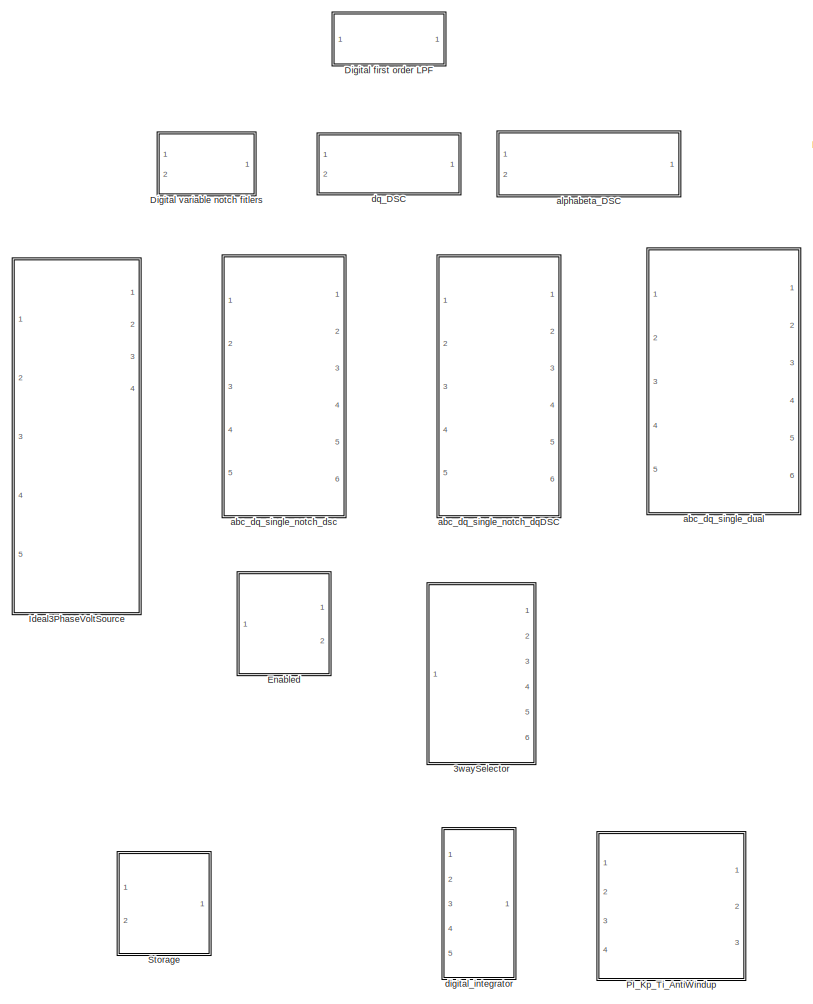
[diagram: root canvas - part 1/2, left side, full height]
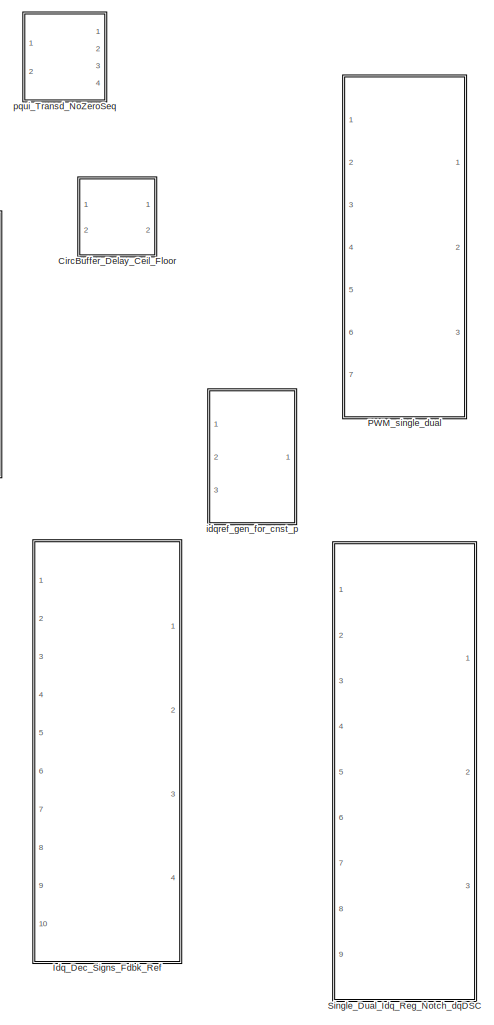
[diagram: root canvas - part 2/2, right side, full height]
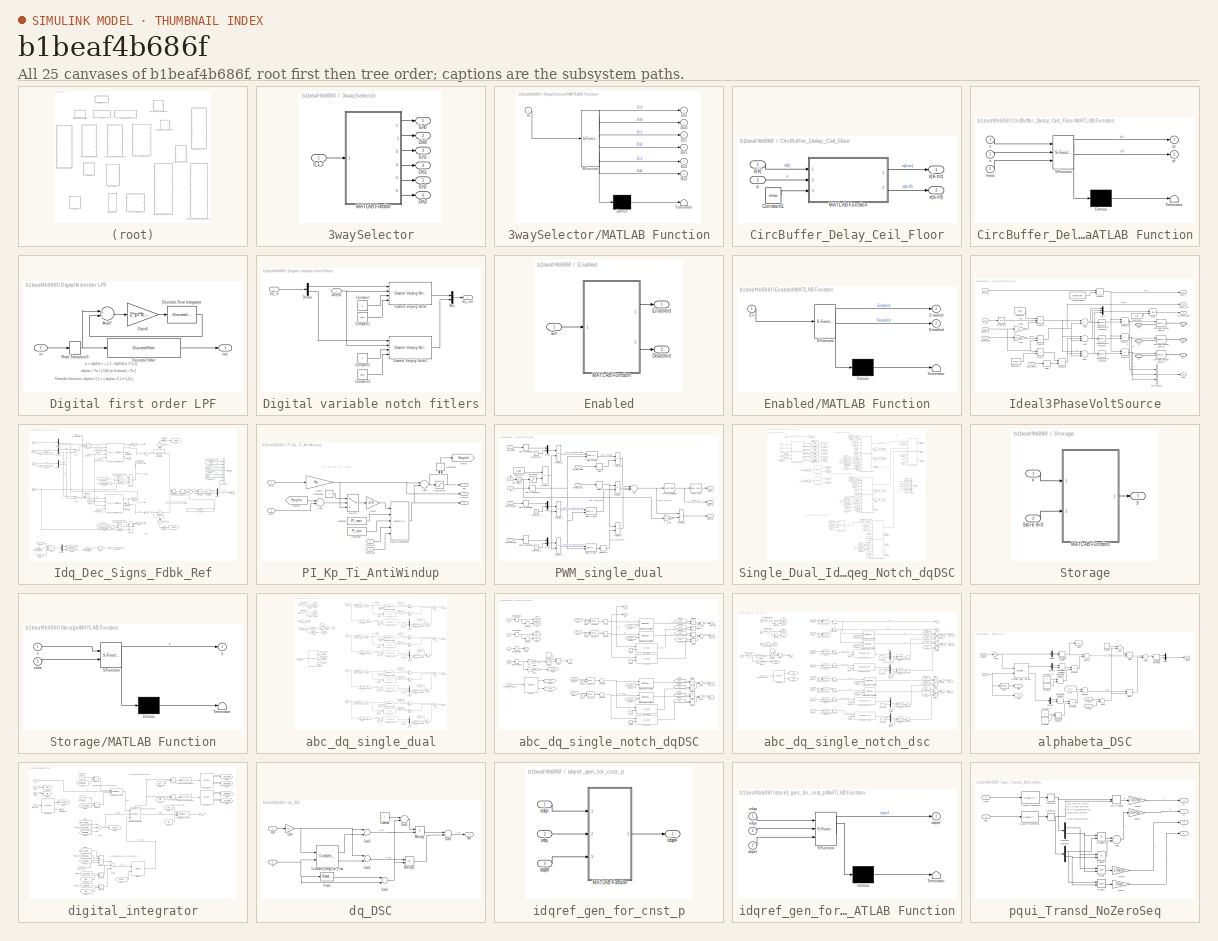
[diagram: thumbnail index - all 25 canvases of the model, root first then tree order]
MODEL slx_b1beaf4b686f
KIND library
CONFIG AbsTol = auto
CONFIG EnableMultiTasking = off
CONFIG FixedStep = auto
CONFIG MaxStep = auto
CONFIG MinStep = auto
CONFIG RelTol = 1e-3
CONFIG SampleTimeConstraint = Unconstrained
CONFIG Solver = VariableStepAuto
CONFIG SolverName = VariableStepAuto
CONFIG StartTime = 0.0
CONFIG StopTime = 10.0
BLOCK [SubSystem] 3waySelector
  Ports = [1, 6]
  RequestExecContextInheritance = off
  SystemSampleTime = Ts
BLOCK [Inport] 3waySelector/0_1_2
  IconDisplay = Port number
BLOCK [Outport] 3waySelector/Dis0
  IconDisplay = Port number
  Port = 2
BLOCK [Outport] 3waySelector/Dis1
  IconDisplay = Port number
  Port = 4
BLOCK [Outport] 3waySelector/Dis2
  IconDisplay = Port number
  Port = 6
BLOCK [Outport] 3waySelector/En0
  IconDisplay = Port number
BLOCK [Outport] 3waySelector/En1
  IconDisplay = Port number
  Port = 3
BLOCK [Outport] 3waySelector/En2
  IconDisplay = Port number
  Port = 5
BLOCK [SubSystem] 3waySelector/MATLAB Function
  ErrorFcn = Stateflow.Translate.translate
  PermitHierarchicalResolution = ExplicitOnly
  Ports = [1, 6]
  RTWSystemCode = Inline
  RequestExecContextInheritance = off
  SFBlockType = MATLAB Function
  SystemSampleTime = Ts
BLOCK [Demux] 3waySelector/MATLAB Function/ Demux 
  Outputs = 1
  Ports = [1, 1]
BLOCK [S-Function] 3waySelector/MATLAB Function/ SFunction 
  EnableBusSupport = off
  FunctionName = sf_sfun
  PortCounts = [1 7]
  Ports = [1, 7]
  SFcnIsStateOwnerBlock = off
  SFunctionDeploymentMode = off
  Tag = Stateflow S-Function DSCdq_Library 1
BLOCK [Terminator] 3waySelector/MATLAB Function/ Terminator 
BLOCK [Outport] 3waySelector/MATLAB Function/Dis0
  IconDisplay = Port number
  Port = 2
BLOCK [Outport] 3waySelector/MATLAB Function/Dis1
  IconDisplay = Port number
  Port = 4
BLOCK [Outport] 3waySelector/MATLAB Function/Dis2
  IconDisplay = Port number
  Port = 6
BLOCK [Outport] 3waySelector/MATLAB Function/En0
  IconDisplay = Port number
BLOCK [Outport] 3waySelector/MATLAB Function/En1
  IconDisplay = Port number
  Port = 3
BLOCK [Outport] 3waySelector/MATLAB Function/En2
  IconDisplay = Port number
  Port = 5
BLOCK [Inport] 3waySelector/MATLAB Function/In
  IconDisplay = Port number
BLOCK [SubSystem] CircBuffer_Delay_Ceil_Floor
  Ports = [2, 2]
  RequestExecContextInheritance = off
  SystemSampleTime = Ts
  TreatAsAtomicUnit = on
BLOCK [Constant] CircBuffer_Delay_Ceil_Floor/Constant1
  Value = nmax
BLOCK [SubSystem] CircBuffer_Delay_Ceil_Floor/MATLAB Function
  ErrorFcn = Stateflow.Translate.translate
  PermitHierarchicalResolution = ExplicitOnly
  Ports = [3, 2]
  RequestExecContextInheritance = off
  SFBlockType = MATLAB Function
  SystemSampleTime = Ts
  TreatAsAtomicUnit = on
BLOCK [Demux] CircBuffer_Delay_Ceil_Floor/MATLAB Function/ Demux 
  Outputs = 1
  Ports = [1, 1]
BLOCK [S-Function] CircBuffer_Delay_Ceil_Floor/MATLAB Function/ SFunction 
  EnableBusSupport = on
  FunctionName = sf_sfun
  PortCounts = [3 3]
  Ports = [3, 3]
  SFcnIsStateOwnerBlock = off
  SFunctionDeploymentMode = off
  Tag = Stateflow S-Function DSCdq_Library 2
BLOCK [Terminator] CircBuffer_Delay_Ceil_Floor/MATLAB Function/ Terminator 
BLOCK [Inport] CircBuffer_Delay_Ceil_Floor/MATLAB Function/n
  IconDisplay = Port number
  Port = 2
BLOCK [Inport] CircBuffer_Delay_Ceil_Floor/MATLAB Function/nmax
  IconDisplay = Port number
  Port = 3
BLOCK [Inport] CircBuffer_Delay_Ceil_Floor/MATLAB Function/x
  IconDisplay = Port number
BLOCK [Outport] CircBuffer_Delay_Ceil_Floor/MATLAB Function/yc
  IconDisplay = Port number
BLOCK [Outport] CircBuffer_Delay_Ceil_Floor/MATLAB Function/yf
  IconDisplay = Port number
  Port = 2
BLOCK [Inport] CircBuffer_Delay_Ceil_Floor/n
  IconDisplay = Port number
  Port = 2
BLOCK [Inport] CircBuffer_Delay_Ceil_Floor/x(k)
  IconDisplay = Port number
BLOCK [Outport] CircBuffer_Delay_Ceil_Floor/x(k-nc)
  IconDisplay = Port number
BLOCK [Outport] CircBuffer_Delay_Ceil_Floor/x(k-nf)
  IconDisplay = Port number
  Port = 2
BLOCK [SubSystem] Digital first order LPF
  Ports = [1, 1]
  RequestExecContextInheritance = off
BLOCK [Sum] Digital first order LPF/Add7
  Commented = on
  InputSameDT = off
  Inputs = +-
  OutDataTypeStr = Inherit: Inherit via internal rule
  Ports = [2, 1]
  SaturateOnIntegerOverflow = off
BLOCK [DiscreteFilter] Digital first order LPF/Discrete Filter
  Denominator = [1 Ts/(1/(2*pi*fcutout)+Ts)-1]
  InputPortMap = u0
  Numerator = [Ts/(1/(2*pi*fcutout)+Ts)]
  Ports = [1, 1]
  SampleTime = Ts
BLOCK [DiscreteIntegrator] Digital first order LPF/Discrete-Time Integrator
  Commented = on
  ICPrevOutput = DiscIntNeverNeededParam
  ICPrevScaledInput = DiscIntNeverNeededParam
  InitialConditionSetting = Auto
  IntegratorMethod = Integration: Trapezoidal
  Ports = [1, 1]
  SampleTime = Ts
BLOCK [Gain] Digital first order LPF/Gain6
  Commented = on
  Gain = 2*pi*fcutout
  OutDataTypeStr = Inherit: Inherit via internal rule
  ParamDataTypeStr = Inherit: Inherit via internal rule
  SaturateOnIntegerOverflow = off
BLOCK [RateTransition] Digital first order LPF/Rate Transition3
  OutPortSampleTime = Ts
BLOCK [Inport] Digital first order LPF/in
  IconDisplay = Port number
BLOCK [Outport] Digital first order LPF/out
  IconDisplay = Port number
BLOCK [SubSystem] Digital variable notch fitlers
  Ports = [2, 1]
  RequestExecContextInheritance = off
BLOCK [Constant] Digital variable notch fitlers/Constant
  Value = 0
BLOCK [Constant] Digital variable notch fitlers/Constant1
  Value = zeta
BLOCK [Constant] Digital variable notch fitlers/Constant2
  Value = 0
BLOCK [Constant] Digital variable notch fitlers/Constant3
  Value = zeta
BLOCK [Demux] Digital variable notch fitlers/Demux
  DisplayOption = bar
  Outputs = 2
  Ports = [1, 2]
BLOCK [Reference] Digital variable notch fitlers/Discrete Varying Notch  REF=cstblocks/Linear Parameter Varying/Discrete Varying Notch
  Ports = [4, 1]
  SourceBlock = cstblocks/Linear Parameter Varying/Discrete Varying Notch
  SourceProductBaseCode = CT
  SourceProductName = Control System Toolbox
  SourceType = Discrete Varying Notch
BLOCK [Reference] Digital variable notch fitlers/Discrete Varying Notch1  REF=cstblocks/Linear Parameter Varying/Discrete Varying Notch
  Ports = [4, 1]
  SourceBlock = cstblocks/Linear Parameter Varying/Discrete Varying Notch
  SourceProductBaseCode = CT
  SourceProductName = Control System Toolbox
  SourceType = Discrete Varying Notch
BLOCK [Mux] Digital variable notch fitlers/Mux
  DisplayOption = bar
  Inputs = 2
  Ports = [2, 1]
BLOCK [Inport] Digital variable notch fitlers/dq_in
  IconDisplay = Port number
BLOCK [Outport] Digital variable notch fitlers/dq_out
  IconDisplay = Port number
BLOCK [Inport] Digital variable notch fitlers/wnotch
  IconDisplay = Port number
  Port = 2
BLOCK [SubSystem] Enabled
  Ports = [1, 2]
  RequestExecContextInheritance = off
  SystemSampleTime = Ts
BLOCK [Outport] Enabled/Disabled
  IconDisplay = Port number
  Port = 2
BLOCK [Inport] Enabled/En
  IconDisplay = Port number
BLOCK [Outport] Enabled/Enabled
  IconDisplay = Port number
BLOCK [SubSystem] Enabled/MATLAB Function
  ErrorFcn = Stateflow.Translate.translate
  PermitHierarchicalResolution = ExplicitOnly
  Ports = [1, 2]
  RTWSystemCode = Inline
  RequestExecContextInheritance = off
  SFBlockType = MATLAB Function
  SystemSampleTime = Ts
BLOCK [Demux] Enabled/MATLAB Function/ Demux 
  Outputs = 1
  Ports = [1, 1]
BLOCK [S-Function] Enabled/MATLAB Function/ SFunction 
  EnableBusSupport = off
  FunctionName = sf_sfun
  PortCounts = [1 3]
  Ports = [1, 3]
  SFcnIsStateOwnerBlock = off
  SFunctionDeploymentMode = off
  Tag = Stateflow S-Function DSCdq_Library 9
BLOCK [Terminator] Enabled/MATLAB Function/ Terminator 
BLOCK [Outport] Enabled/MATLAB Function/Disabled
  IconDisplay = Port number
  Port = 2
BLOCK [Inport] Enabled/MATLAB Function/En
  IconDisplay = Port number
BLOCK [Outport] Enabled/MATLAB Function/Enabled
  IconDisplay = Port number
BLOCK [SubSystem] Ideal3PhaseVoltSource
  Ports = [5, 4, 0, 0, 0, 0, 6]
  RequestExecContextInheritance = off
BLOCK [Sum] Ideal3PhaseVoltSource/Add3
  InputSameDT = off
  Inputs = +-+
  OutDataTypeStr = Inherit: Inherit via internal rule
  Ports = [3, 1]
  SaturateOnIntegerOverflow = off
BLOCK [Sum] Ideal3PhaseVoltSource/Add4
  InputSameDT = off
  Inputs = +++
  OutDataTypeStr = Inherit: Inherit via internal rule
  Ports = [3, 1]
  SaturateOnIntegerOverflow = off
BLOCK [Sum] Ideal3PhaseVoltSource/Add5
  InputSameDT = off
  OutDataTypeStr = Inherit: Inherit via internal rule
  Ports = [2, 1]
  SaturateOnIntegerOverflow = off
BLOCK [Outport] Ideal3PhaseVoltSource/Amp_V
  IconDisplay = Port number
BLOCK [Constant] Ideal3PhaseVoltSource/Amplitude_Base
  Value = BaseAmp
BLOCK [BusCreator] Ideal3PhaseVoltSource/Bus Creator
  DisplayOption = bar
  InheritFromInputs = on
  Inputs = 3
  Ports = [3, 1]
BLOCK [Constant] Ideal3PhaseVoltSource/Constant
  Value = 2*pi
BLOCK [Constant] Ideal3PhaseVoltSource/Constant4
  Value = 2*pi/3
BLOCK [Constant] Ideal3PhaseVoltSource/Constant6
  Value = 2*pi
BLOCK [Reference] Ideal3PhaseVoltSource/Controlled Voltage Source  REF=powerlib/Electrical
Sources/Controlled Voltage Source
  Ports = [1, 0, 0, 0, 0, 1, 1]
  SourceBlock = powerlib/Electrical\nSources/Controlled Voltage Source
  SourceProductBaseCode = PS
  SourceProductName = Simscape Power Systems
  SourceType = Controlled Voltage Source
BLOCK [Reference] Ideal3PhaseVoltSource/Controlled Voltage Source1  REF=powerlib/Electrical
Sources/Controlled Voltage Source
  Ports = [1, 0, 0, 0, 0, 1, 1]
  SourceBlock = powerlib/Electrical\nSources/Controlled Voltage Source
  SourceProductBaseCode = PS
  SourceProductName = Simscape Power Systems
  SourceType = Controlled Voltage Source
BLOCK [Reference] Ideal3PhaseVoltSource/Controlled Voltage Source2  REF=powerlib/Electrical
Sources/Controlled Voltage Source
  Ports = [1, 0, 0, 0, 0, 1, 1]
  SourceBlock = powerlib/Electrical\nSources/Controlled Voltage Source
  SourceProductBaseCode = PS
  SourceProductName = Simscape Power Systems
  SourceType = Controlled Voltage Source
BLOCK [Gain] Ideal3PhaseVoltSource/Gain
  Gain = pi/180
  OutDataTypeStr = Inherit: Inherit via internal rule
  ParamDataTypeStr = Inherit: Inherit via internal rule
  SaturateOnIntegerOverflow = off
BLOCK [Gain] Ideal3PhaseVoltSource/Gain1
  Gain = fn
  OutDataTypeStr = Inherit: Inherit via internal rule
  ParamDataTypeStr = Inherit: Inherit via internal rule
  SaturateOnIntegerOverflow = off
BLOCK [Inport] Ideal3PhaseVoltSource/Harm_nr
  IconDisplay = Port number
  Port = 5
BLOCK [Integrator] Ideal3PhaseVoltSource/Integrator
  Ports = [1, 1]
BLOCK [Mux] Ideal3PhaseVoltSource/Mux
  DisplayOption = bar
  Inputs = 3
  Ports = [3, 1]
BLOCK [Product] Ideal3PhaseVoltSource/Product1
  InputSameDT = off
  OutDataTypeStr = Inherit: Inherit via internal rule
  Ports = [2, 1]
  RndMeth = Floor
  SaturateOnIntegerOverflow = off
BLOCK [Product] Ideal3PhaseVoltSource/Product2
  InputSameDT = off
  Inputs = 3
  OutDataTypeStr = Inherit: Inherit via internal rule
  Ports = [3, 1]
  RndMeth = Floor
  SaturateOnIntegerOverflow = off
BLOCK [Product] Ideal3PhaseVoltSource/Product3
  InputSameDT = off
  OutDataTypeStr = Inherit: Inherit via internal rule
  Ports = [2, 1]
  RndMeth = Floor
  SaturateOnIntegerOverflow = off
BLOCK [Product] Ideal3PhaseVoltSource/Product4
  InputSameDT = off
  OutDataTypeStr = Inherit: Inherit via internal rule
  Ports = [2, 1]
  RndMeth = Floor
  SaturateOnIntegerOverflow = off
BLOCK [Product] Ideal3PhaseVoltSource/Product5
  InputSameDT = off
  OutDataTypeStr = Inherit: Inherit via internal rule
  Ports = [2, 1]
  RndMeth = Floor
  SaturateOnIntegerOverflow = off
BLOCK [Product] Ideal3PhaseVoltSource/Product6
  InputSameDT = off
  OutDataTypeStr = Inherit: Inherit via internal rule
  Ports = [2, 1]
  RndMeth = Floor
  SaturateOnIntegerOverflow = off
BLOCK [Product] Ideal3PhaseVoltSource/Product7
  InputSameDT = off
  OutDataTypeStr = Inherit: Inherit via internal rule
  Ports = [2, 1]
  RndMeth = Floor
  SaturateOnIntegerOverflow = off
BLOCK [Product] Ideal3PhaseVoltSource/Product8
  InputSameDT = off
  OutDataTypeStr = Inherit: Inherit via internal rule
  Ports = [2, 1]
  RndMeth = Floor
  SaturateOnIntegerOverflow = off
BLOCK [Relay] Ideal3PhaseVoltSource/Relay
  InputProcessing = Elements as channels (sample based)
  OffOutputValue = -1
  OffSwitchValue = -0.1
  OnSwitchValue = 0
BLOCK [Trigonometry] Ideal3PhaseVoltSource/Trigonometric Function3
  Ports = [1, 1]
BLOCK [Trigonometry] Ideal3PhaseVoltSource/Trigonometric Function4
  Ports = [1, 1]
BLOCK [Trigonometry] Ideal3PhaseVoltSource/Trigonometric Function5
  Ports = [1, 1]
BLOCK [PMIOPort] Ideal3PhaseVoltSource/Va+
  Side = Right
BLOCK [PMIOPort] Ideal3PhaseVoltSource/Va-
  Port = 4
  Side = Right
BLOCK [Outport] Ideal3PhaseVoltSource/Vabc
  IconDisplay = Port number
  Port = 4
BLOCK [PMIOPort] Ideal3PhaseVoltSource/Vb+
  Port = 2
  Side = Right
BLOCK [PMIOPort] Ideal3PhaseVoltSource/Vb-
  Port = 5
  Side = Right
BLOCK [PMIOPort] Ideal3PhaseVoltSource/Vc+
  Port = 3
  Side = Right
BLOCK [PMIOPort] Ideal3PhaseVoltSource/Vc-
  Port = 6
  Side = Right
BLOCK [Inport] Ideal3PhaseVoltSource/amp_pu
  IconDisplay = Port number
BLOCK [Inport] Ideal3PhaseVoltSource/f_pu
  IconDisplay = Port number
  Port = 2
BLOCK [Math] Ideal3PhaseVoltSource/mod
  Operator = mod
  Ports = [2, 1]
BLOCK [Inport] Ideal3PhaseVoltSource/phase_deg
  IconDisplay = Port number
  Port = 3
BLOCK [Outport] Ideal3PhaseVoltSource/phase_rad
  IconDisplay = Port number
  Port = 2
BLOCK [Inport] Ideal3PhaseVoltSource/pos1_neg-1
  IconDisplay = Port number
  Port = 4
BLOCK [Outport] Ideal3PhaseVoltSource/wt_phase_abc
  IconDisplay = Port number
  Port = 3
BLOCK [SubSystem] Idq_Dec_Signs_Fdbk_Ref
  Ports = [10, 4]
  RequestExecContextInheritance = off
BLOCK [Inport] Idq_Dec_Signs_Fdbk_Ref/1=-wLiq,+wLid_-1=+wLiq,-wLid
  IconDisplay = Port number
  Port = 5
BLOCK [Inport] Idq_Dec_Signs_Fdbk_Ref/1=decFrFbk_-0=decFrRef
  IconDisplay = Port number
  Port = 6
BLOCK [Sum] Idq_Dec_Signs_Fdbk_Ref/Add6
  InputSameDT = off
  Inputs = +++
  OutDataTypeStr = Inherit: Inherit via internal rule
  Ports = [3, 1]
  SaturateOnIntegerOverflow = off
BLOCK [Sum] Idq_Dec_Signs_Fdbk_Ref/Add7
  InputSameDT = off
  Inputs = +-
  OutDataTypeStr = Inherit: Inherit via internal rule
  Ports = [2, 1]
  SaturateOnIntegerOverflow = off
BLOCK [Sum] Idq_Dec_Signs_Fdbk_Ref/Add8
  InputSameDT = off
  Inputs = +++
  OutDataTypeStr = Inherit: Inherit via internal rule
  Ports = [3, 1]
  SaturateOnIntegerOverflow = off
BLOCK [Sum] Idq_Dec_Signs_Fdbk_Ref/Add9
  InputSameDT = off
  Inputs = +-
  OutDataTypeStr = Inherit: Inherit via internal rule
  Ports = [2, 1]
  SaturateOnIntegerOverflow = off
BLOCK [BusCreator] Idq_Dec_Signs_Fdbk_Ref/Bus Creator
  DisplayOption = bar
  InheritFromInputs = on
  Inputs = 7
  Ports = [7, 1]
BLOCK [ComplexToMagnitudeAngle] Idq_Dec_Signs_Fdbk_Ref/Complex to Magnitude-Angle
  Ports = [1, 2]
BLOCK [ComplexToRealImag] Idq_Dec_Signs_Fdbk_Ref/Complex to Real-Imag
  Ports = [1, 2]
BLOCK [Constant] Idq_Dec_Signs_Fdbk_Ref/Constant3
  SampleTime = Ts
  Value = (1.0*Ts*fn*2*pi+TrafoPhaseComp)
BLOCK [Constant] Idq_Dec_Signs_Fdbk_Ref/Constant6
  SampleTime = Ts
  Value = -L
BLOCK [Constant] Idq_Dec_Signs_Fdbk_Ref/Constant7
  SampleTime = Ts
  Value = L
BLOCK [Demux] Idq_Dec_Signs_Fdbk_Ref/Demux1
  DisplayOption = bar
  Outputs = 2
  Ports = [1, 2]
BLOCK [Demux] Idq_Dec_Signs_Fdbk_Ref/Demux2
  DisplayOption = bar
  Outputs = 2
  Ports = [1, 2]
BLOCK [Demux] Idq_Dec_Signs_Fdbk_Ref/Demux3
  DisplayOption = bar
  Outputs = 2
  Ports = [1, 2]
BLOCK [Demux] Idq_Dec_Signs_Fdbk_Ref/Demux4
  DisplayOption = bar
  Outputs = 2
  Ports = [1, 2]
BLOCK [From] Idq_Dec_Signs_Fdbk_Ref/From
  GotoTag = dHold
BLOCK [From] Idq_Dec_Signs_Fdbk_Ref/From1
  GotoTag = qHold
BLOCK [From] Idq_Dec_Signs_Fdbk_Ref/From10
  GotoTag = iq_decoup
BLOCK [From] Idq_Dec_Signs_Fdbk_Ref/From11
  GotoTag = id_decoup
BLOCK [From] Idq_Dec_Signs_Fdbk_Ref/From12
  GotoTag = idq_ref
BLOCK [From] Idq_Dec_Signs_Fdbk_Ref/From13
  GotoTag = idq
BLOCK [From] Idq_Dec_Signs_Fdbk_Ref/From2
  GotoTag = idq_ref
BLOCK [From] Idq_Dec_Signs_Fdbk_Ref/From3
  GotoTag = idq
BLOCK [From] Idq_Dec_Signs_Fdbk_Ref/From4
  GotoTag = PId
BLOCK [From] Idq_Dec_Signs_Fdbk_Ref/From5
  GotoTag = D_decoup
BLOCK [From] Idq_Dec_Signs_Fdbk_Ref/From6
  GotoTag = PIq
BLOCK [From] Idq_Dec_Signs_Fdbk_Ref/From7
  GotoTag = Q_decoup
BLOCK [From] Idq_Dec_Signs_Fdbk_Ref/From8
  GotoTag = DecoupSign
BLOCK [From] Idq_Dec_Signs_Fdbk_Ref/From9
  GotoTag = DecoupSign
BLOCK [Goto] Idq_Dec_Signs_Fdbk_Ref/Goto1
  GotoTag = id_decoup
BLOCK [Goto] Idq_Dec_Signs_Fdbk_Ref/Goto10
  GotoTag = idq
BLOCK [Goto] Idq_Dec_Signs_Fdbk_Ref/Goto11
  GotoTag = idq_ref
BLOCK [Goto] Idq_Dec_Signs_Fdbk_Ref/Goto2
  GotoTag = iq_decoup
BLOCK [Goto] Idq_Dec_Signs_Fdbk_Ref/Goto3
  GotoTag = PIq
BLOCK [Goto] Idq_Dec_Signs_Fdbk_Ref/Goto4
  GotoTag = dHold
BLOCK [Goto] Idq_Dec_Signs_Fdbk_Ref/Goto5
  GotoTag = qHold
BLOCK [Goto] Idq_Dec_Signs_Fdbk_Ref/Goto6
  GotoTag = D_decoup
BLOCK [Goto] Idq_Dec_Signs_Fdbk_Ref/Goto7
  GotoTag = PId
BLOCK [Goto] Idq_Dec_Signs_Fdbk_Ref/Goto8
  GotoTag = Q_decoup
BLOCK [Goto] Idq_Dec_Signs_Fdbk_Ref/Goto9
  GotoTag = DecoupSign
BLOCK [Outport] Idq_Dec_Signs_Fdbk_Ref/I_D
  IconDisplay = Port number
  Port = 2
BLOCK [Outport] Idq_Dec_Signs_Fdbk_Ref/I_Q
  IconDisplay = Port number
  Port = 3
BLOCK [MagnitudeAngleToComplex] Idq_Dec_Signs_Fdbk_Ref/Magnitude-Angle to Complex
  Ports = [2, 1]
BLOCK [Mux] Idq_Dec_Signs_Fdbk_Ref/Mux2
  DisplayOption = bar
  Inputs = 2
  Ports = [2, 1]
BLOCK [RelationalOperator] Idq_Dec_Signs_Fdbk_Ref/NotEqual
  InputSameDT = off
  Operator = ~=
  OutDataTypeStr = boolean
  Ports = [2, 1]
  RndMeth = Simplest
BLOCK [RelationalOperator] Idq_Dec_Signs_Fdbk_Ref/NotEqual1
  InputSameDT = off
  Operator = ~=
  OutDataTypeStr = boolean
  Ports = [2, 1]
  RndMeth = Simplest
BLOCK [Reference] Idq_Dec_Signs_Fdbk_Ref/PI_Kp_Ti_AntiWindup  REF=$bdroot/PI_Kp_Ti_AntiWindup
  Ports = [4, 3]
  SourceBlock = $bdroot/PI_Kp_Ti_AntiWindup
  SourceType = PI regulator with anti-windup
BLOCK [Reference] Idq_Dec_Signs_Fdbk_Ref/PI_Kp_Ti_AntiWindup1  REF=$bdroot/PI_Kp_Ti_AntiWindup
  Ports = [4, 3]
  SourceBlock = $bdroot/PI_Kp_Ti_AntiWindup
  SourceType = PI regulator with anti-windup
BLOCK [Product] Idq_Dec_Signs_Fdbk_Ref/Product
  InputSameDT = off
  OutDataTypeStr = Inherit: Inherit via internal rule
  Ports = [2, 1]
  RndMeth = Floor
  SaturateOnIntegerOverflow = off
BLOCK [Product] Idq_Dec_Signs_Fdbk_Ref/Product1
  InputSameDT = off
  OutDataTypeStr = Inherit: Inherit via internal rule
  Ports = [2, 1]
  SaturateOnIntegerOverflow = off
BLOCK [Product] Idq_Dec_Signs_Fdbk_Ref/Product2
  InputSameDT = off
  OutDataTypeStr = Inherit: Inherit via internal rule
  Ports = [2, 1]
  SaturateOnIntegerOverflow = off
BLOCK [Product] Idq_Dec_Signs_Fdbk_Ref/Product3
  InputSameDT = off
  OutDataTypeStr = Inherit: Inherit via internal rule
  Ports = [2, 1]
  RndMeth = Floor
  SaturateOnIntegerOverflow = off
BLOCK [Product] Idq_Dec_Signs_Fdbk_Ref/Product6
  InputSameDT = off
  Inputs = 3
  OutDataTypeStr = Inherit: Inherit via internal rule
  Ports = [3, 1]
  SaturateOnIntegerOverflow = off
BLOCK [Product] Idq_Dec_Signs_Fdbk_Ref/Product7
  InputSameDT = off
  Inputs = 3
  OutDataTypeStr = Inherit: Inherit via internal rule
  Ports = [3, 1]
  SaturateOnIntegerOverflow = off
BLOCK [RealImagToComplex] Idq_Dec_Signs_Fdbk_Ref/Real-Imag to Complex
  Ports = [2, 1]
BLOCK [Relay] Idq_Dec_Signs_Fdbk_Ref/Relay
  InputProcessing = Elements as channels (sample based)
  OffOutputValue = -1
  OffSwitchValue = -0.1
  OnSwitchValue = 0
BLOCK [Saturate] Idq_Dec_Signs_Fdbk_Ref/Saturation1
  InputPortMap = u0
  LowerLimit = PI_min
  Ports = [1, 1]
  UpperLimit = PI_max
BLOCK [Saturate] Idq_Dec_Signs_Fdbk_Ref/Saturation2
  InputPortMap = u0
  LowerLimit = PI_min
  Ports = [1, 1]
  UpperLimit = PI_max
BLOCK [Sum] Idq_Dec_Signs_Fdbk_Ref/Sum2
  IconShape = round
  InputSameDT = off
  Inputs = |++
  OutDataTypeStr = Inherit: Inherit via internal rule
  Ports = [2, 1]
  SaturateOnIntegerOverflow = off
BLOCK [Switch] Idq_Dec_Signs_Fdbk_Ref/Switch
  Criteria = u2 > Threshold
  InputSameDT = off
  SaturateOnIntegerOverflow = off
  Threshold = 0.5
BLOCK [Terminator] Idq_Dec_Signs_Fdbk_Ref/Terminator1
BLOCK [Terminator] Idq_Dec_Signs_Fdbk_Ref/Terminator2
BLOCK [UnitDelay] Idq_Dec_Signs_Fdbk_Ref/Unit Delay1
  InputProcessing = Elements as channels (sample based)
  SampleTime = Ts
BLOCK [UnitDelay] Idq_Dec_Signs_Fdbk_Ref/Unit Delay2
  InputProcessing = Elements as channels (sample based)
  SampleTime = Ts
BLOCK [Inport] Idq_Dec_Signs_Fdbk_Ref/force_int
  IconDisplay = Port number
  Port = 8
BLOCK [Inport] Idq_Dec_Signs_Fdbk_Ref/force_val_D
  IconDisplay = Port number
  Port = 9
BLOCK [Inport] Idq_Dec_Signs_Fdbk_Ref/force_val_Q
  IconDisplay = Port number
  Port = 10
BLOCK [Inport] Idq_Dec_Signs_Fdbk_Ref/idq
  IconDisplay = Port number
  Port = 3
BLOCK [Inport] Idq_Dec_Signs_Fdbk_Ref/idq_ref
  IconDisplay = Port number
BLOCK [Outport] Idq_Dec_Signs_Fdbk_Ref/m
  IconDisplay = Port number
  Port = 4
BLOCK [Inport] Idq_Dec_Signs_Fdbk_Ref/pre_mult_errors
  IconDisplay = Port number
  Port = 7
BLOCK [Inport] Idq_Dec_Signs_Fdbk_Ref/vdq
  IconDisplay = Port number
  Port = 2
BLOCK [Outport] Idq_Dec_Signs_Fdbk_Ref/vdq_ref
  IconDisplay = Port number
BLOCK [Inport] Idq_Dec_Signs_Fdbk_Ref/w_pu
  IconDisplay = Port number
  Port = 4
BLOCK [SubSystem] PI_Kp_Ti_AntiWindup
  Ports = [4, 3]
  RequestExecContextInheritance = off
  SystemSampleTime = Ts
  TreatAsAtomicUnit = on
BLOCK [Sum] PI_Kp_Ti_AntiWindup/Add1
  InputSameDT = off
  OutDataTypeStr = Inherit: Inherit via internal rule
  Ports = [2, 1]
  SaturateOnIntegerOverflow = off
BLOCK [Sum] PI_Kp_Ti_AntiWindup/Add9
  InputSameDT = off
  OutDataTypeStr = Inherit: Inherit via internal rule
  Ports = [2, 1]
  SaturateOnIntegerOverflow = off
BLOCK [Constant] PI_Kp_Ti_AntiWindup/Constant
  Value = PI_max
BLOCK [Constant] PI_Kp_Ti_AntiWindup/Constant1
  Value = PI_min
BLOCK [Constant] PI_Kp_Ti_AntiWindup/Constant8
  Value = 0
BLOCK [From] PI_Kp_Ti_AntiWindup/From18
  GotoTag = StopInt
BLOCK [Gain] PI_Kp_Ti_AntiWindup/Gain7
  Gain = Kp
  OutDataTypeStr = Inherit: Inherit via internal rule
  ParamDataTypeStr = Inherit: Inherit via internal rule
  SaturateOnIntegerOverflow = off
BLOCK [Gain] PI_Kp_Ti_AntiWindup/Gain9
  Gain = 1/Ti
  OutDataTypeStr = Inherit: Inherit via internal rule
  ParamDataTypeStr = Inherit: Inherit via internal rule
  SaturateOnIntegerOverflow = off
BLOCK [Goto] PI_Kp_Ti_AntiWindup/Goto3
  GotoTag = StopInt
BLOCK [Outport] PI_Kp_Ti_AntiWindup/I
  IconDisplay = Port number
  Port = 3
BLOCK [Inport] PI_Kp_Ti_AntiWindup/Ihold
  IconDisplay = Port number
  Port = 2
BLOCK [RelationalOperator] PI_Kp_Ti_AntiWindup/NotEqual
  InputSameDT = off
  Operator = ~=
  OutDataTypeStr = boolean
  Ports = [2, 1]
  RndMeth = Simplest
BLOCK [Outport] PI_Kp_Ti_AntiWindup/Punlim
  IconDisplay = Port number
  Port = 2
BLOCK [Saturate] PI_Kp_Ti_AntiWindup/Saturation1
  InputPortMap = u0
  LowerLimit = PI_min
  Ports = [1, 1]
  UpperLimit = PI_max
BLOCK [Switch] PI_Kp_Ti_AntiWindup/Switch
  Criteria = u2 > Threshold
  InputSameDT = off
  SaturateOnIntegerOverflow = off
BLOCK [Reference] PI_Kp_Ti_AntiWindup/digital_integrator1  REF=$bdroot/digital_integrator
  Ports = [5, 1]
  SourceBlock = $bdroot/digital_integrator
  SourceType = Digital integrator
BLOCK [Inport] PI_Kp_Ti_AntiWindup/error
  IconDisplay = Port number
BLOCK [Inport] PI_Kp_Ti_AntiWindup/force_int
  IconDisplay = Port number
  Port = 3
BLOCK [Inport] PI_Kp_Ti_AntiWindup/force_val
  IconDisplay = Port number
  Port = 4
BLOCK [Outport] PI_Kp_Ti_AntiWindup/out
  IconDisplay = Port number
BLOCK [SubSystem] PWM_single_dual
  Ports = [7, 3]
  RequestExecContextInheritance = off
BLOCK [Sum] PWM_single_dual/Add
  InputSameDT = off
  Inputs = +++
  OutDataTypeStr = Inherit: Inherit via internal rule
  Ports = [3, 1]
  SaturateOnIntegerOverflow = off
BLOCK [Constant] PWM_single_dual/Constant1
  Value = 0
BLOCK [Constant] PWM_single_dual/Constant10
  Value = Uabp
BLOCK [Constant] PWM_single_dual/Constant11
  Value = 0
BLOCK [Constant] PWM_single_dual/Constant2
  Value = 0
BLOCK [Inport] PWM_single_dual/Enable_dual
  IconDisplay = Port number
  Port = 5
BLOCK [Inport] PWM_single_dual/Enable_single
  IconDisplay = Port number
  Port = 2
BLOCK [Gain] PWM_single_dual/Gain
  Gain = 3^-0.5
  OutDataTypeStr = Inherit: Inherit via internal rule
  ParamDataTypeStr = Inherit: Inherit via internal rule
  SaturateOnIntegerOverflow = off
BLOCK [Mux] PWM_single_dual/Mux1
  DisplayOption = bar
  Inputs = [2 1]
  Ports = [2, 1]
BLOCK [Mux] PWM_single_dual/Mux2
  DisplayOption = bar
  Inputs = [2 1]
  Ports = [2, 1]
BLOCK [Mux] PWM_single_dual/Mux3
  DisplayOption = bar
  Inputs = [2 1]
  Ports = [2, 1]
BLOCK [Reference] PWM_single_dual/Overmodulation  REF=powerlib_meascontrol/Pulse & Signal
Generators/Overmodulation
  Ports = [1, 1]
  SourceBlock = powerlib_meascontrol/Pulse & Signal\nGenerators/Overmodulation
  SourceProductBaseCode = PS
  SourceProductName = Simscape Power Systems
  SourceType = Overmodulation
BLOCK [Reference] PWM_single_dual/PWM Gen  REF=powerlib_meascontrol/Pulse & Signal
Generators/PWM Generator
(2-Level)
  Ports = [1, 1]
  SourceBlock = powerlib_meascontrol/Pulse & Signal\nGenerators/PWM Generator\n(2-Level)
  SourceProductBaseCode = PS
  SourceProductName = Simscape Power Systems
  SourceType = PWM Generator (2-Level)
BLOCK [Product] PWM_single_dual/Product1
  InputSameDT = off
  Inputs = **
  OutDataTypeStr = Inherit: Inherit via internal rule
  Ports = [2, 1]
  RndMeth = Floor
  SaturateOnIntegerOverflow = off
BLOCK [Product] PWM_single_dual/Product2
  InputSameDT = off
  Inputs = **
  OutDataTypeStr = Inherit: Inherit via internal rule
  Ports = [2, 1]
  RndMeth = Floor
  SaturateOnIntegerOverflow = off
BLOCK [Product] PWM_single_dual/Product3
  InputSameDT = off
  Inputs = **
  OutDataTypeStr = Inherit: Inherit via internal rule
  Ports = [2, 1]
  RndMeth = Floor
  SaturateOnIntegerOverflow = off
BLOCK [Product] PWM_single_dual/Product4
  InputSameDT = off
  Inputs = **
  OutDataTypeStr = Inherit: Inherit via internal rule
  Ports = [2, 1]
  RndMeth = Floor
  SaturateOnIntegerOverflow = off
BLOCK [Product] PWM_single_dual/Product5
  InputSameDT = off
  Inputs = **
  OutDataTypeStr = Inherit: Inherit via internal rule
  Ports = [2, 1]
  RndMeth = Floor
  SaturateOnIntegerOverflow = off
BLOCK [Product] PWM_single_dual/Product6
  InputSameDT = off
  Inputs = **
  OutDataTypeStr = Inherit: Inherit via internal rule
  Ports = [2, 1]
  RndMeth = Floor
  SaturateOnIntegerOverflow = off
BLOCK [Product] PWM_single_dual/Product8
  InputSameDT = off
  Inputs = */
  OutDataTypeStr = Inherit: Inherit via internal rule
  Ports = [2, 1]
  RndMeth = Floor
  SaturateOnIntegerOverflow = off
BLOCK [Product] PWM_single_dual/Product9
  InputSameDT = off
  Inputs = **
  OutDataTypeStr = Inherit: Inherit via internal rule
  Ports = [2, 1]
  RndMeth = Floor
  SaturateOnIntegerOverflow = off
BLOCK [RateTransition] PWM_single_dual/Rate Transition1
  OutPortSampleTime = Ts
BLOCK [RateTransition] PWM_single_dual/Rate Transition2
  OutPortSampleTime = Ts
BLOCK [RateTransition] PWM_single_dual/Rate Transition3
  OutPortSampleTime = Ts
BLOCK [RateTransition] PWM_single_dual/Rate Transition5
  OutPortSampleTime = Ts
BLOCK [Relay] PWM_single_dual/Relay
  InputProcessing = Elements as channels (sample based)
  OffSwitchValue = 0.4
  OnSwitchValue = 0.6
BLOCK [Relay] PWM_single_dual/Relay1
  InputProcessing = Elements as channels (sample based)
  OffSwitchValue = 0.4
  OnSwitchValue = 0.6
BLOCK [Saturate] PWM_single_dual/Saturation
  InputPortMap = u0
  LowerLimit = 0.001*Uabp
  Ports = [1, 1]
  UpperLimit = 10*Uabp
BLOCK [Selector] PWM_single_dual/Selector1
  IndexOptions = Index vector (dialog)
  Indices = [1 3 2]
  InputPortWidth = 3
  OutputSizes = 1
  Ports = [1, 1]
BLOCK [Outport] PWM_single_dual/Uabcref
  IconDisplay = Port number
  Port = 2
BLOCK [Inport] PWM_single_dual/Udc
  IconDisplay = Port number
  Port = 6
BLOCK [UnitDelay] PWM_single_dual/Unit Delay2
  InitialCondition = Uabp
  InputProcessing = Elements as channels (sample based)
  SampleTime = Ts
BLOCK [Reference] PWM_single_dual/dq0 to abc  REF=powerlib_meascontrol/Transformations/dq0 to abc
  Ports = [2, 1]
  SourceBlock = powerlib_meascontrol/Transformations/dq0 to abc
  SourceProductBaseCode = PS
  SourceProductName = Simscape Power Systems
  SourceType = dq0 to abc Transformation
BLOCK [Reference] PWM_single_dual/dq0 to abc1  REF=powerlib_meascontrol/Transformations/dq0 to abc
  Ports = [2, 1]
  SourceBlock = powerlib_meascontrol/Transformations/dq0 to abc
  SourceProductBaseCode = PS
  SourceProductName = Simscape Power Systems
  SourceType = dq0 to abc Transformation
BLOCK [Reference] PWM_single_dual/dq0 to abc2  REF=powerlib_meascontrol/Transformations/dq0 to abc
  Ports = [2, 1]
  SourceBlock = powerlib_meascontrol/Transformations/dq0 to abc
  SourceProductBaseCode = PS
  SourceProductName = Simscape Power Systems
  SourceType = dq0 to abc Transformation
BLOCK [Outport] PWM_single_dual/pulses
  IconDisplay = Port number
BLOCK [Outport] PWM_single_dual/uabcref
  IconDisplay = Port number
  Port = 3
BLOCK [Inport] PWM_single_dual/vdq_dual_neg
  IconDisplay = Port number
  Port = 4
BLOCK [Inport] PWM_single_dual/vdq_dual_pos
  IconDisplay = Port number
  Port = 3
BLOCK [Inport] PWM_single_dual/vdq_single
  IconDisplay = Port number
BLOCK [Inport] PWM_single_dual/wt
  IconDisplay = Port number
  Port = 7
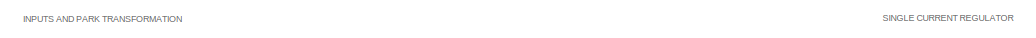
[diagram: Single_Dual_Idq_Reg_Notch_dqDSC - part 1/5, top left region]
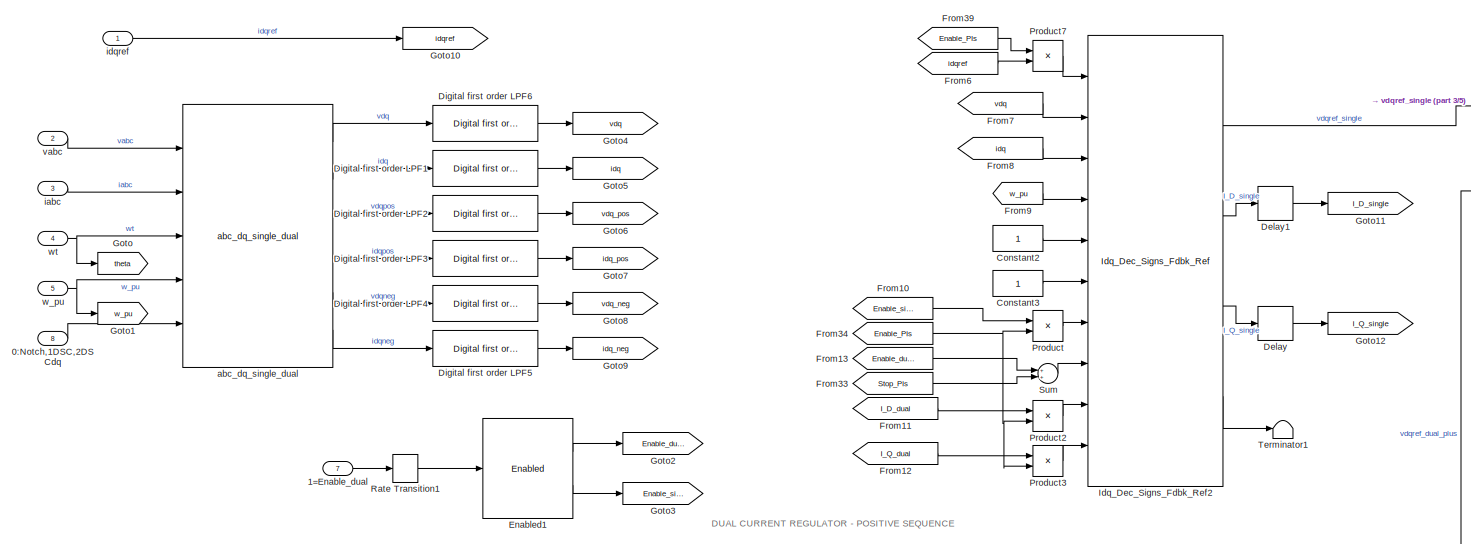
[diagram: Single_Dual_Idq_Reg_Notch_dqDSC - part 2/5, top center region]
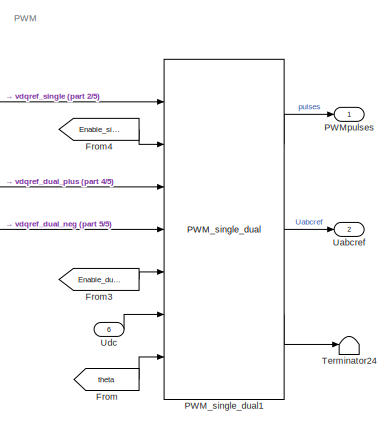
[diagram: Single_Dual_Idq_Reg_Notch_dqDSC - part 3/5, top right region]
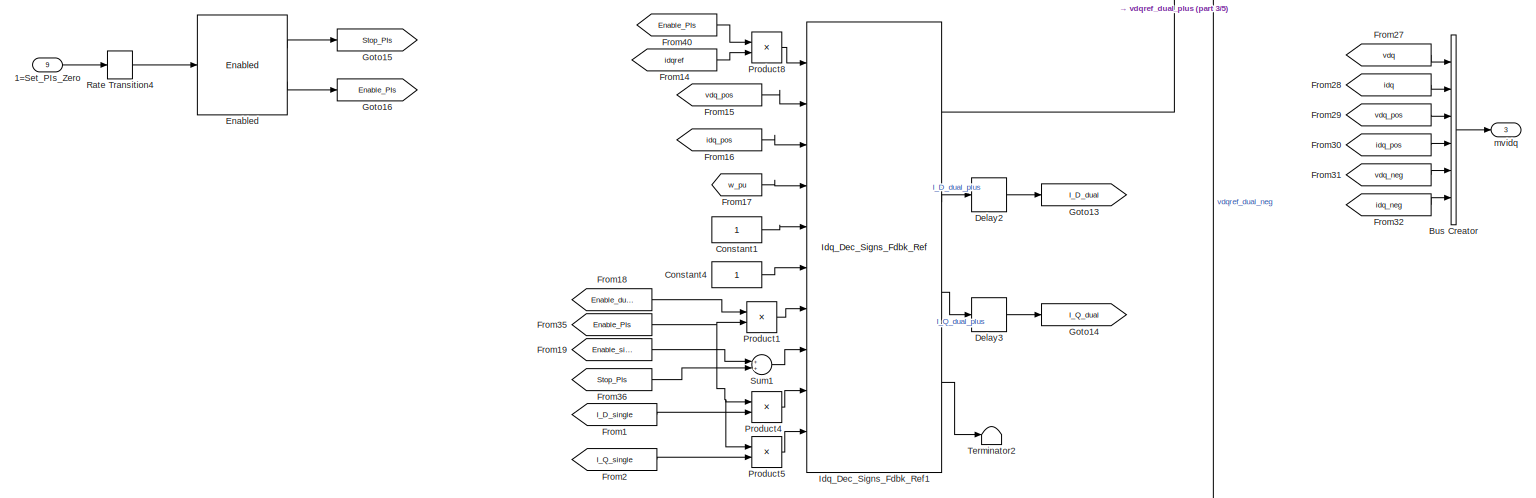
[diagram: Single_Dual_Idq_Reg_Notch_dqDSC - part 4/5, full width, middle band]
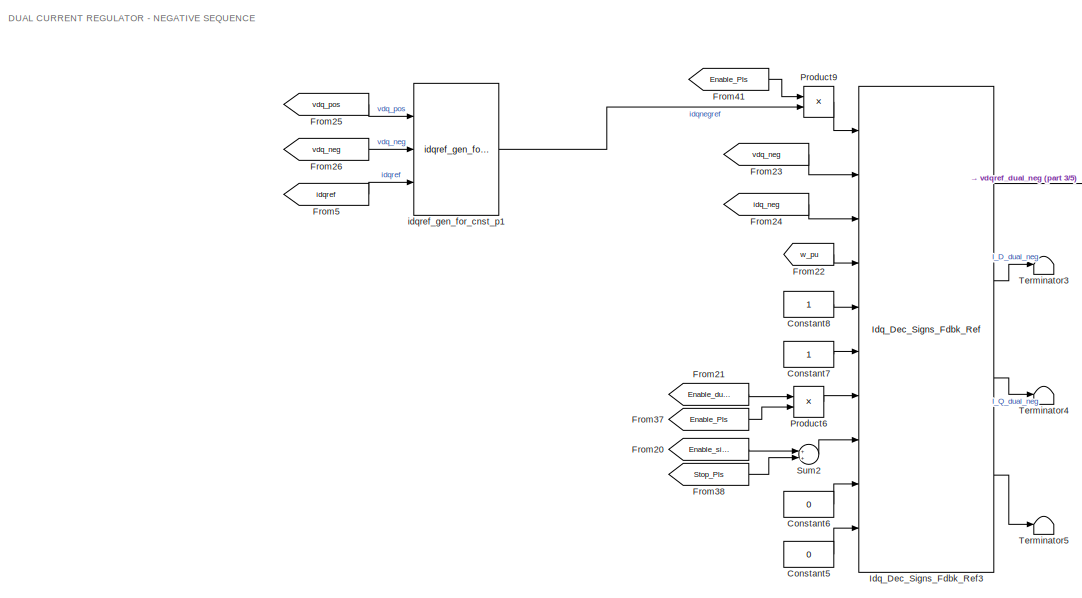
[diagram: Single_Dual_Idq_Reg_Notch_dqDSC - part 5/5, bottom center region]
BLOCK [SubSystem] Single_Dual_Idq_Reg_Notch_dqDSC
  Ports = [9, 3]
  RequestExecContextInheritance = off
BLOCK [Inport] Single_Dual_Idq_Reg_Notch_dqDSC/0:Notch,1DSC,2DSCdq
  IconDisplay = Port number
  Port = 8
BLOCK [Inport] Single_Dual_Idq_Reg_Notch_dqDSC/1=Enable_dual
  IconDisplay = Port number
  Port = 7
BLOCK [Inport] Single_Dual_Idq_Reg_Notch_dqDSC/1=Set_PIs_Zero
  IconDisplay = Port number
  Port = 9
BLOCK [BusCreator] Single_Dual_Idq_Reg_Notch_dqDSC/Bus Creator
  DisplayOption = bar
  InheritFromInputs = on
  Inputs = 6
  Ports = [6, 1]
BLOCK [Constant] Single_Dual_Idq_Reg_Notch_dqDSC/Constant1
BLOCK [Constant] Single_Dual_Idq_Reg_Notch_dqDSC/Constant2
BLOCK [Constant] Single_Dual_Idq_Reg_Notch_dqDSC/Constant3
BLOCK [Constant] Single_Dual_Idq_Reg_Notch_dqDSC/Constant4
BLOCK [Constant] Single_Dual_Idq_Reg_Notch_dqDSC/Constant5
  Value = 0
BLOCK [Constant] Single_Dual_Idq_Reg_Notch_dqDSC/Constant6
  Value = 0
BLOCK [Constant] Single_Dual_Idq_Reg_Notch_dqDSC/Constant7
BLOCK [Constant] Single_Dual_Idq_Reg_Notch_dqDSC/Constant8
BLOCK [Delay] Single_Dual_Idq_Reg_Notch_dqDSC/Delay
  DelayLength = 1
  InitialCondition = 0
  InputPortMap = u0
  Ports = [1, 1]
  SampleTime = Ts
BLOCK [Delay] Single_Dual_Idq_Reg_Notch_dqDSC/Delay1
  DelayLength = 1
  InitialCondition = 0
  InputPortMap = u0
  Ports = [1, 1]
  SampleTime = Ts
BLOCK [Delay] Single_Dual_Idq_Reg_Notch_dqDSC/Delay2
  DelayLength = 1
  InitialCondition = 0
  InputPortMap = u0
  Ports = [1, 1]
  SampleTime = Ts
BLOCK [Delay] Single_Dual_Idq_Reg_Notch_dqDSC/Delay3
  DelayLength = 1
  InitialCondition = 0
  InputPortMap = u0
  Ports = [1, 1]
  SampleTime = Ts
BLOCK [Reference] Single_Dual_Idq_Reg_Notch_dqDSC/Digital first order LPF1  REF=$bdroot/Digital first order LPF
  Ports = [1, 1]
  SourceBlock = $bdroot/Digital first order LPF
  SourceType = Digital first-order low-pass filter
BLOCK [Reference] Single_Dual_Idq_Reg_Notch_dqDSC/Digital first order LPF2  REF=$bdroot/Digital first order LPF
  Ports = [1, 1]
  SourceBlock = $bdroot/Digital first order LPF
  SourceType = Digital first-order low-pass filter
BLOCK [Reference] Single_Dual_Idq_Reg_Notch_dqDSC/Digital first order LPF3  REF=$bdroot/Digital first order LPF
  Ports = [1, 1]
  SourceBlock = $bdroot/Digital first order LPF
  SourceType = Digital first-order low-pass filter
BLOCK [Reference] Single_Dual_Idq_Reg_Notch_dqDSC/Digital first order LPF4  REF=$bdroot/Digital first order LPF
  Ports = [1, 1]
  SourceBlock = $bdroot/Digital first order LPF
  SourceType = Digital first-order low-pass filter
BLOCK [Reference] Single_Dual_Idq_Reg_Notch_dqDSC/Digital first order LPF5  REF=$bdroot/Digital first order LPF
  Ports = [1, 1]
  SourceBlock = $bdroot/Digital first order LPF
  SourceType = Digital first-order low-pass filter
BLOCK [Reference] Single_Dual_Idq_Reg_Notch_dqDSC/Digital first order LPF6  REF=$bdroot/Digital first order LPF
  Ports = [1, 1]
  SourceBlock = $bdroot/Digital first order LPF
  SourceType = Digital first-order low-pass filter
BLOCK [Reference] Single_Dual_Idq_Reg_Notch_dqDSC/Enabled  REF=$bdroot/Enabled
  Ports = [1, 2]
  SourceBlock = $bdroot/Enabled
  SourceType = Enabled block
BLOCK [Reference] Single_Dual_Idq_Reg_Notch_dqDSC/Enabled1  REF=$bdroot/Enabled
  Ports = [1, 2]
  SourceBlock = $bdroot/Enabled
  SourceType = Enabled block
BLOCK [From] Single_Dual_Idq_Reg_Notch_dqDSC/From
  GotoTag = theta
BLOCK [From] Single_Dual_Idq_Reg_Notch_dqDSC/From1
  GotoTag = I_D_single
BLOCK [From] Single_Dual_Idq_Reg_Notch_dqDSC/From10
  GotoTag = Enable_single
BLOCK [From] Single_Dual_Idq_Reg_Notch_dqDSC/From11
  GotoTag = I_D_dual
BLOCK [From] Single_Dual_Idq_Reg_Notch_dqDSC/From12
  GotoTag = I_Q_dual
BLOCK [From] Single_Dual_Idq_Reg_Notch_dqDSC/From13
  GotoTag = Enable_dual
BLOCK [From] Single_Dual_Idq_Reg_Notch_dqDSC/From14
  GotoTag = idqref
BLOCK [From] Single_Dual_Idq_Reg_Notch_dqDSC/From15
  GotoTag = vdq_pos
BLOCK [From] Single_Dual_Idq_Reg_Notch_dqDSC/From16
  GotoTag = idq_pos
BLOCK [From] Single_Dual_Idq_Reg_Notch_dqDSC/From17
  GotoTag = w_pu
BLOCK [From] Single_Dual_Idq_Reg_Notch_dqDSC/From18
  GotoTag = Enable_dual
BLOCK [From] Single_Dual_Idq_Reg_Notch_dqDSC/From19
  GotoTag = Enable_single
BLOCK [From] Single_Dual_Idq_Reg_Notch_dqDSC/From2
  GotoTag = I_Q_single
BLOCK [From] Single_Dual_Idq_Reg_Notch_dqDSC/From20
  GotoTag = Enable_single
BLOCK [From] Single_Dual_Idq_Reg_Notch_dqDSC/From21
  GotoTag = Enable_dual
BLOCK [From] Single_Dual_Idq_Reg_Notch_dqDSC/From22
  GotoTag = w_pu
BLOCK [From] Single_Dual_Idq_Reg_Notch_dqDSC/From23
  GotoTag = vdq_neg
BLOCK [From] Single_Dual_Idq_Reg_Notch_dqDSC/From24
  GotoTag = idq_neg
BLOCK [From] Single_Dual_Idq_Reg_Notch_dqDSC/From25
  GotoTag = vdq_pos
BLOCK [From] Single_Dual_Idq_Reg_Notch_dqDSC/From26
  GotoTag = vdq_neg
BLOCK [From] Single_Dual_Idq_Reg_Notch_dqDSC/From27
  GotoTag = vdq
BLOCK [From] Single_Dual_Idq_Reg_Notch_dqDSC/From28
  GotoTag = idq
BLOCK [From] Single_Dual_Idq_Reg_Notch_dqDSC/From29
  GotoTag = vdq_pos
BLOCK [From] Single_Dual_Idq_Reg_Notch_dqDSC/From3
  GotoTag = Enable_dual
BLOCK [From] Single_Dual_Idq_Reg_Notch_dqDSC/From30
  GotoTag = idq_pos
BLOCK [From] Single_Dual_Idq_Reg_Notch_dqDSC/From31
  GotoTag = vdq_neg
BLOCK [From] Single_Dual_Idq_Reg_Notch_dqDSC/From32
  GotoTag = idq_neg
BLOCK [From] Single_Dual_Idq_Reg_Notch_dqDSC/From33
  GotoTag = Stop_PIs
BLOCK [From] Single_Dual_Idq_Reg_Notch_dqDSC/From34
  GotoTag = Enable_PIs
BLOCK [From] Single_Dual_Idq_Reg_Notch_dqDSC/From35
  GotoTag = Enable_PIs
BLOCK [From] Single_Dual_Idq_Reg_Notch_dqDSC/From36
  GotoTag = Stop_PIs
BLOCK [From] Single_Dual_Idq_Reg_Notch_dqDSC/From37
  GotoTag = Enable_PIs
BLOCK [From] Single_Dual_Idq_Reg_Notch_dqDSC/From38
  GotoTag = Stop_PIs
BLOCK [From] Single_Dual_Idq_Reg_Notch_dqDSC/From39
  GotoTag = Enable_PIs
BLOCK [From] Single_Dual_Idq_Reg_Notch_dqDSC/From4
  GotoTag = Enable_single
BLOCK [From] Single_Dual_Idq_Reg_Notch_dqDSC/From40
  GotoTag = Enable_PIs
BLOCK [From] Single_Dual_Idq_Reg_Notch_dqDSC/From41
  GotoTag = Enable_PIs
BLOCK [From] Single_Dual_Idq_Reg_Notch_dqDSC/From5
  GotoTag = idqref
BLOCK [From] Single_Dual_Idq_Reg_Notch_dqDSC/From6
  GotoTag = idqref
BLOCK [From] Single_Dual_Idq_Reg_Notch_dqDSC/From7
  GotoTag = vdq
BLOCK [From] Single_Dual_Idq_Reg_Notch_dqDSC/From8
  GotoTag = idq
BLOCK [From] Single_Dual_Idq_Reg_Notch_dqDSC/From9
  GotoTag = w_pu
BLOCK [Goto] Single_Dual_Idq_Reg_Notch_dqDSC/Goto
  GotoTag = theta
BLOCK [Goto] Single_Dual_Idq_Reg_Notch_dqDSC/Goto1
  GotoTag = w_pu
BLOCK [Goto] Single_Dual_Idq_Reg_Notch_dqDSC/Goto10
  GotoTag = idqref
BLOCK [Goto] Single_Dual_Idq_Reg_Notch_dqDSC/Goto11
  GotoTag = I_D_single
BLOCK [Goto] Single_Dual_Idq_Reg_Notch_dqDSC/Goto12
  GotoTag = I_Q_single
BLOCK [Goto] Single_Dual_Idq_Reg_Notch_dqDSC/Goto13
  GotoTag = I_D_dual
BLOCK [Goto] Single_Dual_Idq_Reg_Notch_dqDSC/Goto14
  GotoTag = I_Q_dual
BLOCK [Goto] Single_Dual_Idq_Reg_Notch_dqDSC/Goto15
  GotoTag = Stop_PIs
BLOCK [Goto] Single_Dual_Idq_Reg_Notch_dqDSC/Goto16
  GotoTag = Enable_PIs
BLOCK [Goto] Single_Dual_Idq_Reg_Notch_dqDSC/Goto2
  GotoTag = Enable_dual
BLOCK [Goto] Single_Dual_Idq_Reg_Notch_dqDSC/Goto3
  GotoTag = Enable_single
BLOCK [Goto] Single_Dual_Idq_Reg_Notch_dqDSC/Goto4
  GotoTag = vdq
BLOCK [Goto] Single_Dual_Idq_Reg_Notch_dqDSC/Goto5
  GotoTag = idq
BLOCK [Goto] Single_Dual_Idq_Reg_Notch_dqDSC/Goto6
  GotoTag = vdq_pos
BLOCK [Goto] Single_Dual_Idq_Reg_Notch_dqDSC/Goto7
  GotoTag = idq_pos
BLOCK [Goto] Single_Dual_Idq_Reg_Notch_dqDSC/Goto8
  GotoTag = vdq_neg
BLOCK [Goto] Single_Dual_Idq_Reg_Notch_dqDSC/Goto9
  GotoTag = idq_neg
BLOCK [Reference] Single_Dual_Idq_Reg_Notch_dqDSC/Idq_Dec_Signs_Fdbk_Ref1  REF=$bdroot/Idq_Dec_Signs_Fdbk_Ref
  Ports = [10, 4]
  SourceBlock = $bdroot/Idq_Dec_Signs_Fdbk_Ref
  SourceType = Idq Controller - PI regulator with anti-windup
BLOCK [Reference] Single_Dual_Idq_Reg_Notch_dqDSC/Idq_Dec_Signs_Fdbk_Ref2  REF=$bdroot/Idq_Dec_Signs_Fdbk_Ref
  Ports = [10, 4]
  SourceBlock = $bdroot/Idq_Dec_Signs_Fdbk_Ref
  SourceType = Idq Controller - PI regulator with anti-windup
BLOCK [Reference] Single_Dual_Idq_Reg_Notch_dqDSC/Idq_Dec_Signs_Fdbk_Ref3  REF=$bdroot/Idq_Dec_Signs_Fdbk_Ref
  Ports = [10, 4]
  SourceBlock = $bdroot/Idq_Dec_Signs_Fdbk_Ref
  SourceType = Idq Controller - PI regulator with anti-windup
BLOCK [Reference] Single_Dual_Idq_Reg_Notch_dqDSC/PWM_single_dual1  REF=$bdroot/PWM_single_dual
  Ports = [7, 3]
  SourceBlock = $bdroot/PWM_single_dual
  SourceType = Scaling of vdq ref and PWM gate generation
BLOCK [Outport] Single_Dual_Idq_Reg_Notch_dqDSC/PWMpulses
  IconDisplay = Port number
BLOCK [Product] Single_Dual_Idq_Reg_Notch_dqDSC/Product
  InputSameDT = off
  OutDataTypeStr = Inherit: Inherit via internal rule
  Ports = [2, 1]
  RndMeth = Floor
  SaturateOnIntegerOverflow = off
BLOCK [Product] Single_Dual_Idq_Reg_Notch_dqDSC/Product1
  InputSameDT = off
  OutDataTypeStr = Inherit: Inherit via internal rule
  Ports = [2, 1]
  RndMeth = Floor
  SaturateOnIntegerOverflow = off
BLOCK [Product] Single_Dual_Idq_Reg_Notch_dqDSC/Product2
  InputSameDT = off
  OutDataTypeStr = Inherit: Inherit via internal rule
  Ports = [2, 1]
  RndMeth = Floor
  SaturateOnIntegerOverflow = off
BLOCK [Product] Single_Dual_Idq_Reg_Notch_dqDSC/Product3
  InputSameDT = off
  OutDataTypeStr = Inherit: Inherit via internal rule
  Ports = [2, 1]
  RndMeth = Floor
  SaturateOnIntegerOverflow = off
BLOCK [Product] Single_Dual_Idq_Reg_Notch_dqDSC/Product4
  InputSameDT = off
  OutDataTypeStr = Inherit: Inherit via internal rule
  Ports = [2, 1]
  RndMeth = Floor
  SaturateOnIntegerOverflow = off
BLOCK [Product] Single_Dual_Idq_Reg_Notch_dqDSC/Product5
  InputSameDT = off
  OutDataTypeStr = Inherit: Inherit via internal rule
  Ports = [2, 1]
  RndMeth = Floor
  SaturateOnIntegerOverflow = off
BLOCK [Product] Single_Dual_Idq_Reg_Notch_dqDSC/Product6
  InputSameDT = off
  OutDataTypeStr = Inherit: Inherit via internal rule
  Ports = [2, 1]
  RndMeth = Floor
  SaturateOnIntegerOverflow = off
BLOCK [Product] Single_Dual_Idq_Reg_Notch_dqDSC/Product7
  InputSameDT = off
  OutDataTypeStr = Inherit: Inherit via internal rule
  Ports = [2, 1]
  RndMeth = Floor
  SaturateOnIntegerOverflow = off
BLOCK [Product] Single_Dual_Idq_Reg_Notch_dqDSC/Product8
  InputSameDT = off
  OutDataTypeStr = Inherit: Inherit via internal rule
  Ports = [2, 1]
  RndMeth = Floor
  SaturateOnIntegerOverflow = off
BLOCK [Product] Single_Dual_Idq_Reg_Notch_dqDSC/Product9
  InputSameDT = off
  OutDataTypeStr = Inherit: Inherit via internal rule
  Ports = [2, 1]
  RndMeth = Floor
  SaturateOnIntegerOverflow = off
BLOCK [RateTransition] Single_Dual_Idq_Reg_Notch_dqDSC/Rate Transition1
  OutPortSampleTime = Ts
BLOCK [RateTransition] Single_Dual_Idq_Reg_Notch_dqDSC/Rate Transition4
  InitialCondition = 1
  OutPortSampleTime = Ts
BLOCK [Sum] Single_Dual_Idq_Reg_Notch_dqDSC/Sum
  InputSameDT = off
  OutDataTypeStr = Inherit: Inherit via internal rule
  Ports = [2, 1]
  SaturateOnIntegerOverflow = off
BLOCK [Sum] Single_Dual_Idq_Reg_Notch_dqDSC/Sum1
  InputSameDT = off
  OutDataTypeStr = Inherit: Inherit via internal rule
  Ports = [2, 1]
  SaturateOnIntegerOverflow = off
BLOCK [Sum] Single_Dual_Idq_Reg_Notch_dqDSC/Sum2
  InputSameDT = off
  OutDataTypeStr = Inherit: Inherit via internal rule
  Ports = [2, 1]
  SaturateOnIntegerOverflow = off
BLOCK [Terminator] Single_Dual_Idq_Reg_Notch_dqDSC/Terminator1
BLOCK [Terminator] Single_Dual_Idq_Reg_Notch_dqDSC/Terminator2
BLOCK [Terminator] Single_Dual_Idq_Reg_Notch_dqDSC/Terminator24
BLOCK [Terminator] Single_Dual_Idq_Reg_Notch_dqDSC/Terminator3
BLOCK [Terminator] Single_Dual_Idq_Reg_Notch_dqDSC/Terminator4
BLOCK [Terminator] Single_Dual_Idq_Reg_Notch_dqDSC/Terminator5
BLOCK [Outport] Single_Dual_Idq_Reg_Notch_dqDSC/Uabcref
  IconDisplay = Port number
  Port = 2
BLOCK [Inport] Single_Dual_Idq_Reg_Notch_dqDSC/Udc
  IconDisplay = Port number
  Port = 6
BLOCK [Reference] Single_Dual_Idq_Reg_Notch_dqDSC/abc_dq_single_dual  REF=$bdroot/abc_dq_single_dual
  Ports = [5, 6]
  SourceBlock = $bdroot/abc_dq_single_dual
  SourceType = abc->dq with Matlab
BLOCK [Inport] Single_Dual_Idq_Reg_Notch_dqDSC/iabc
  IconDisplay = Port number
  Port = 3
BLOCK [Inport] Single_Dual_Idq_Reg_Notch_dqDSC/idqref
  IconDisplay = Port number
BLOCK [Reference] Single_Dual_Idq_Reg_Notch_dqDSC/idqref_gen_for_cnst_p1  REF=$bdroot/idqref_gen_for_cnst_p
  Ports = [3, 1]
  SourceBlock = $bdroot/idqref_gen_for_cnst_p
  SourceType = idq reference gen for neg. seq. controller
BLOCK [Outport] Single_Dual_Idq_Reg_Notch_dqDSC/mvidq
  IconDisplay = Port number
  Port = 3
BLOCK [Inport] Single_Dual_Idq_Reg_Notch_dqDSC/vabc
  IconDisplay = Port number
  Port = 2
BLOCK [Inport] Single_Dual_Idq_Reg_Notch_dqDSC/w_pu
  IconDisplay = Port number
  Port = 5
BLOCK [Inport] Single_Dual_Idq_Reg_Notch_dqDSC/wt
  IconDisplay = Port number
  Port = 4
BLOCK [SubSystem] Storage
  Ports = [2, 1]
  RequestExecContextInheritance = off
  SystemSampleTime = Ts
BLOCK [SubSystem] Storage/MATLAB Function
  ErrorFcn = Stateflow.Translate.translate
  PermitHierarchicalResolution = ExplicitOnly
  Ports = [2, 1]
  RTWSystemCode = Inline
  RequestExecContextInheritance = off
  SFBlockType = MATLAB Function
  SystemSampleTime = Ts
BLOCK [Demux] Storage/MATLAB Function/ Demux 
  Outputs = 1
  Ports = [1, 1]
BLOCK [S-Function] Storage/MATLAB Function/ SFunction 
  EnableBusSupport = off
  FunctionName = sf_sfun
  PortCounts = [2 2]
  Ports = [2, 2]
  SFcnIsStateOwnerBlock = off
  SFunctionDeploymentMode = off
  Tag = Stateflow S-Function DSCdq_Library 10
BLOCK [Terminator] Storage/MATLAB Function/ Terminator 
BLOCK [Inport] Storage/MATLAB Function/store
  IconDisplay = Port number
  Port = 2
BLOCK [Inport] Storage/MATLAB Function/x
  IconDisplay = Port number
BLOCK [Outport] Storage/MATLAB Function/y
  IconDisplay = Port number
BLOCK [Inport] Storage/Store if>0
  IconDisplay = Port number
  Port = 2
BLOCK [Inport] Storage/x
  IconDisplay = Port number
BLOCK [Outport] Storage/y
  IconDisplay = Port number
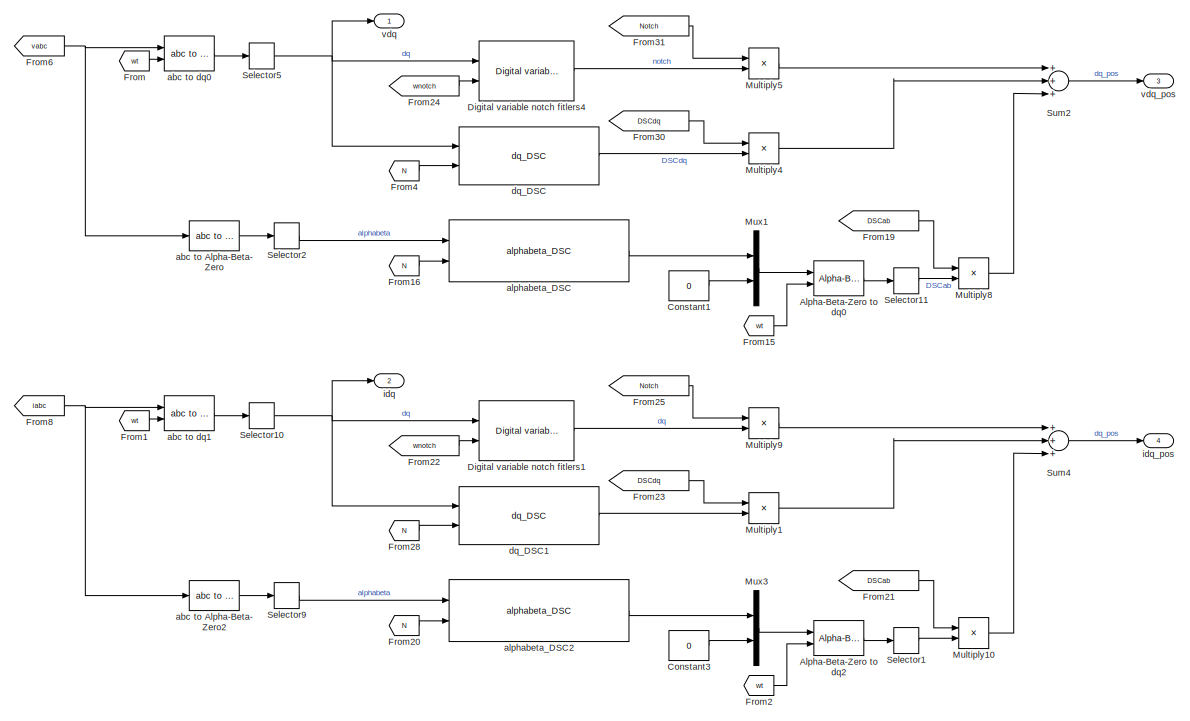
[diagram: abc_dq_single_dual - part 1/3, top center region]
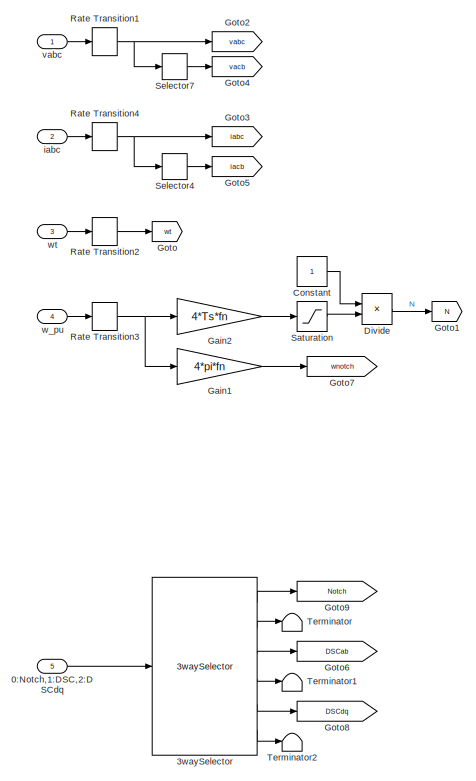
[diagram: abc_dq_single_dual - part 2/3, top left region]
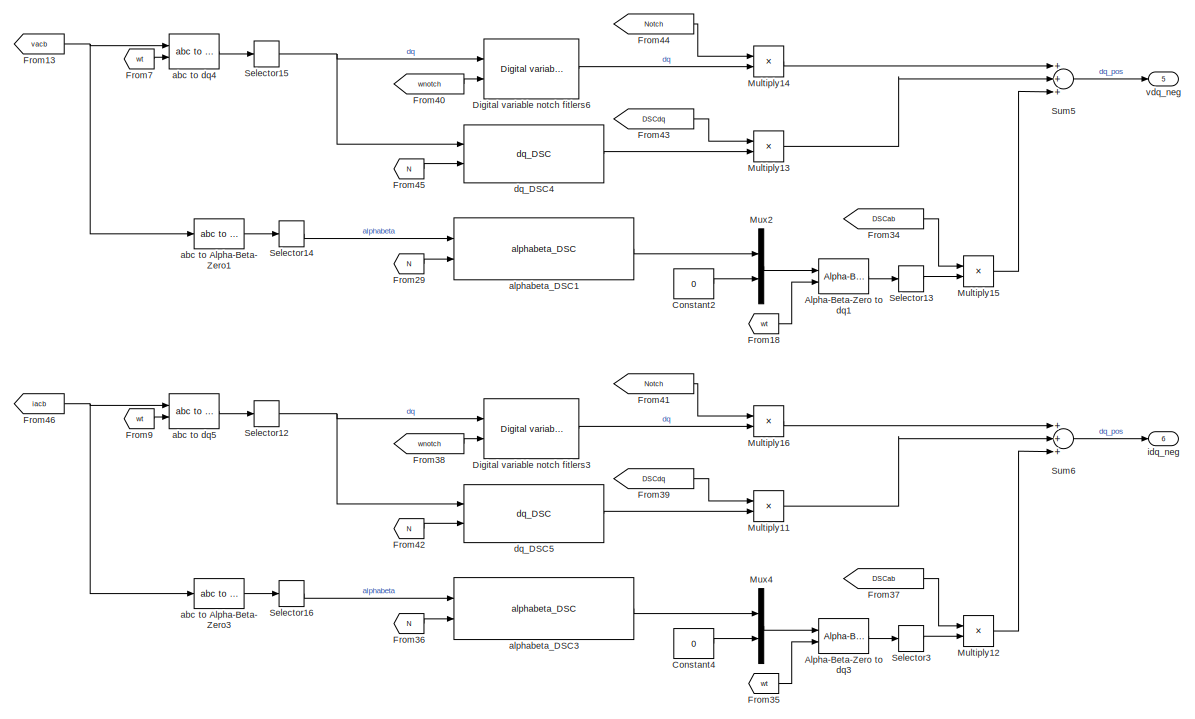
[diagram: abc_dq_single_dual - part 3/3, bottom center region]
BLOCK [SubSystem] abc_dq_single_dual
  Ports = [5, 6]
  RequestExecContextInheritance = off
BLOCK [Inport] abc_dq_single_dual/0:Notch,1:DSC,2:DSCdq
  IconDisplay = Port number
  Port = 5
BLOCK [Reference] abc_dq_single_dual/3waySelector  REF=$bdroot/3waySelector
  Ports = [1, 6]
  SourceBlock = $bdroot/3waySelector
  SourceType = 3 way selector
BLOCK [Reference] abc_dq_single_dual/Alpha-Beta-Zero to dq0  REF=powerlib_meascontrol/Transformations/Alpha-Beta-Zero
to dq0
  Ports = [2, 1]
  SourceBlock = powerlib_meascontrol/Transformations/Alpha-Beta-Zero\nto dq0
  SourceProductBaseCode = PS
  SourceProductName = Simscape Power Systems
  SourceType = Alpha-Beta-Zero to dq0 Transformation
BLOCK [Reference] abc_dq_single_dual/Alpha-Beta-Zero to dq1  REF=powerlib_meascontrol/Transformations/Alpha-Beta-Zero
to dq0
  Ports = [2, 1]
  SourceBlock = powerlib_meascontrol/Transformations/Alpha-Beta-Zero\nto dq0
  SourceProductBaseCode = PS
  SourceProductName = Simscape Power Systems
  SourceType = Alpha-Beta-Zero to dq0 Transformation
BLOCK [Reference] abc_dq_single_dual/Alpha-Beta-Zero to dq2  REF=powerlib_meascontrol/Transformations/Alpha-Beta-Zero
to dq0
  Ports = [2, 1]
  SourceBlock = powerlib_meascontrol/Transformations/Alpha-Beta-Zero\nto dq0
  SourceProductBaseCode = PS
  SourceProductName = Simscape Power Systems
  SourceType = Alpha-Beta-Zero to dq0 Transformation
BLOCK [Reference] abc_dq_single_dual/Alpha-Beta-Zero to dq3  REF=powerlib_meascontrol/Transformations/Alpha-Beta-Zero
to dq0
  Ports = [2, 1]
  SourceBlock = powerlib_meascontrol/Transformations/Alpha-Beta-Zero\nto dq0
  SourceProductBaseCode = PS
  SourceProductName = Simscape Power Systems
  SourceType = Alpha-Beta-Zero to dq0 Transformation
BLOCK [Constant] abc_dq_single_dual/Constant
BLOCK [Constant] abc_dq_single_dual/Constant1
  Value = 0
BLOCK [Constant] abc_dq_single_dual/Constant2
  Value = 0
BLOCK [Constant] abc_dq_single_dual/Constant3
  Value = 0
BLOCK [Constant] abc_dq_single_dual/Constant4
  Value = 0
BLOCK [Reference] abc_dq_single_dual/Digital variable notch fitlers1  REF=$bdroot/Digital variable notch fitlers
  Ports = [2, 1]
  SourceBlock = $bdroot/Digital variable notch fitlers
BLOCK [Reference] abc_dq_single_dual/Digital variable notch fitlers3  REF=$bdroot/Digital variable notch fitlers
  Ports = [2, 1]
  SourceBlock = $bdroot/Digital variable notch fitlers
BLOCK [Reference] abc_dq_single_dual/Digital variable notch fitlers4  REF=$bdroot/Digital variable notch fitlers
  Ports = [2, 1]
  SourceBlock = $bdroot/Digital variable notch fitlers
BLOCK [Reference] abc_dq_single_dual/Digital variable notch fitlers6  REF=$bdroot/Digital variable notch fitlers
  Ports = [2, 1]
  SourceBlock = $bdroot/Digital variable notch fitlers
BLOCK [Product] abc_dq_single_dual/Divide
  InputSameDT = off
  Inputs = */
  OutDataTypeStr = Inherit: Inherit via internal rule
  Ports = [2, 1]
  RndMeth = Floor
  SaturateOnIntegerOverflow = off
BLOCK [From] abc_dq_single_dual/From
  GotoTag = wt
BLOCK [From] abc_dq_single_dual/From1
  GotoTag = wt
BLOCK [From] abc_dq_single_dual/From13
  GotoTag = vacb
BLOCK [From] abc_dq_single_dual/From15
  GotoTag = wt
BLOCK [From] abc_dq_single_dual/From16
  GotoTag = N
BLOCK [From] abc_dq_single_dual/From18
  GotoTag = wt
BLOCK [From] abc_dq_single_dual/From19
  GotoTag = DSCab
BLOCK [From] abc_dq_single_dual/From2
  GotoTag = wt
BLOCK [From] abc_dq_single_dual/From20
  GotoTag = N
BLOCK [From] abc_dq_single_dual/From21
  GotoTag = DSCab
BLOCK [From] abc_dq_single_dual/From22
  GotoTag = wnotch
BLOCK [From] abc_dq_single_dual/From23
  GotoTag = DSCdq
BLOCK [From] abc_dq_single_dual/From24
  GotoTag = wnotch
BLOCK [From] abc_dq_single_dual/From25
  GotoTag = Notch
BLOCK [From] abc_dq_single_dual/From28
  GotoTag = N
BLOCK [From] abc_dq_single_dual/From29
  GotoTag = N
BLOCK [From] abc_dq_single_dual/From30
  GotoTag = DSCdq
BLOCK [From] abc_dq_single_dual/From31
  GotoTag = Notch
BLOCK [From] abc_dq_single_dual/From34
  GotoTag = DSCab
BLOCK [From] abc_dq_single_dual/From35
  GotoTag = wt
BLOCK [From] abc_dq_single_dual/From36
  GotoTag = N
BLOCK [From] abc_dq_single_dual/From37
  GotoTag = DSCab
BLOCK [From] abc_dq_single_dual/From38
  GotoTag = wnotch
BLOCK [From] abc_dq_single_dual/From39
  GotoTag = DSCdq
BLOCK [From] abc_dq_single_dual/From4
  GotoTag = N
BLOCK [From] abc_dq_single_dual/From40
  GotoTag = wnotch
BLOCK [From] abc_dq_single_dual/From41
  GotoTag = Notch
BLOCK [From] abc_dq_single_dual/From42
  GotoTag = N
BLOCK [From] abc_dq_single_dual/From43
  GotoTag = DSCdq
BLOCK [From] abc_dq_single_dual/From44
  GotoTag = Notch
BLOCK [From] abc_dq_single_dual/From45
  GotoTag = N
BLOCK [From] abc_dq_single_dual/From46
  GotoTag = iacb
BLOCK [From] abc_dq_single_dual/From6
  GotoTag = vabc
BLOCK [From] abc_dq_single_dual/From7
  GotoTag = wt
BLOCK [From] abc_dq_single_dual/From8
  GotoTag = iabc
BLOCK [From] abc_dq_single_dual/From9
  GotoTag = wt
BLOCK [Gain] abc_dq_single_dual/Gain1
  Gain = 4*pi*fn
  OutDataTypeStr = Inherit: Inherit via internal rule
  ParamDataTypeStr = Inherit: Inherit via internal rule
  SaturateOnIntegerOverflow = off
BLOCK [Gain] abc_dq_single_dual/Gain2
  Gain = 4*Ts*fn
  OutDataTypeStr = Inherit: Inherit via internal rule
  ParamDataTypeStr = Inherit: Inherit via internal rule
  SaturateOnIntegerOverflow = off
BLOCK [Goto] abc_dq_single_dual/Goto
  GotoTag = wt
BLOCK [Goto] abc_dq_single_dual/Goto1
  GotoTag = N
BLOCK [Goto] abc_dq_single_dual/Goto2
  GotoTag = vabc
BLOCK [Goto] abc_dq_single_dual/Goto3
  GotoTag = iabc
BLOCK [Goto] abc_dq_single_dual/Goto4
  GotoTag = vacb
BLOCK [Goto] abc_dq_single_dual/Goto5
  GotoTag = iacb
BLOCK [Goto] abc_dq_single_dual/Goto6
  GotoTag = DSCab
BLOCK [Goto] abc_dq_single_dual/Goto7
  GotoTag = wnotch
BLOCK [Goto] abc_dq_single_dual/Goto8
  GotoTag = DSCdq
BLOCK [Goto] abc_dq_single_dual/Goto9
  GotoTag = Notch
BLOCK [Product] abc_dq_single_dual/Multiply1
  InputSameDT = off
  OutDataTypeStr = Inherit: Inherit via internal rule
  Ports = [2, 1]
  RndMeth = Floor
  SaturateOnIntegerOverflow = off
BLOCK [Product] abc_dq_single_dual/Multiply10
  InputSameDT = off
  OutDataTypeStr = Inherit: Inherit via internal rule
  Ports = [2, 1]
  RndMeth = Floor
  SaturateOnIntegerOverflow = off
BLOCK [Product] abc_dq_single_dual/Multiply11
  InputSameDT = off
  OutDataTypeStr = Inherit: Inherit via internal rule
  Ports = [2, 1]
  RndMeth = Floor
  SaturateOnIntegerOverflow = off
BLOCK [Product] abc_dq_single_dual/Multiply12
  InputSameDT = off
  OutDataTypeStr = Inherit: Inherit via internal rule
  Ports = [2, 1]
  RndMeth = Floor
  SaturateOnIntegerOverflow = off
BLOCK [Product] abc_dq_single_dual/Multiply13
  InputSameDT = off
  OutDataTypeStr = Inherit: Inherit via internal rule
  Ports = [2, 1]
  RndMeth = Floor
  SaturateOnIntegerOverflow = off
BLOCK [Product] abc_dq_single_dual/Multiply14
  InputSameDT = off
  OutDataTypeStr = Inherit: Inherit via internal rule
  Ports = [2, 1]
  RndMeth = Floor
  SaturateOnIntegerOverflow = off
BLOCK [Product] abc_dq_single_dual/Multiply15
  InputSameDT = off
  OutDataTypeStr = Inherit: Inherit via internal rule
  Ports = [2, 1]
  RndMeth = Floor
  SaturateOnIntegerOverflow = off
BLOCK [Product] abc_dq_single_dual/Multiply16
  InputSameDT = off
  OutDataTypeStr = Inherit: Inherit via internal rule
  Ports = [2, 1]
  RndMeth = Floor
  SaturateOnIntegerOverflow = off
BLOCK [Product] abc_dq_single_dual/Multiply4
  InputSameDT = off
  OutDataTypeStr = Inherit: Inherit via internal rule
  Ports = [2, 1]
  RndMeth = Floor
  SaturateOnIntegerOverflow = off
BLOCK [Product] abc_dq_single_dual/Multiply5
  InputSameDT = off
  OutDataTypeStr = Inherit: Inherit via internal rule
  Ports = [2, 1]
  RndMeth = Floor
  SaturateOnIntegerOverflow = off
BLOCK [Product] abc_dq_single_dual/Multiply8
  InputSameDT = off
  OutDataTypeStr = Inherit: Inherit via internal rule
  Ports = [2, 1]
  RndMeth = Floor
  SaturateOnIntegerOverflow = off
BLOCK [Product] abc_dq_single_dual/Multiply9
  InputSameDT = off
  OutDataTypeStr = Inherit: Inherit via internal rule
  Ports = [2, 1]
  RndMeth = Floor
  SaturateOnIntegerOverflow = off
BLOCK [Mux] abc_dq_single_dual/Mux1
  DisplayOption = bar
  Inputs = [2 1]
  Ports = [2, 1]
BLOCK [Mux] abc_dq_single_dual/Mux2
  DisplayOption = bar
  Inputs = [2 1]
  Ports = [2, 1]
BLOCK [Mux] abc_dq_single_dual/Mux3
  DisplayOption = bar
  Inputs = [2 1]
  Ports = [2, 1]
BLOCK [Mux] abc_dq_single_dual/Mux4
  DisplayOption = bar
  Inputs = [2 1]
  Ports = [2, 1]
BLOCK [RateTransition] abc_dq_single_dual/Rate Transition1
  OutPortSampleTime = Ts
BLOCK [RateTransition] abc_dq_single_dual/Rate Transition2
  OutPortSampleTime = Ts
BLOCK [RateTransition] abc_dq_single_dual/Rate Transition3
  InitialCondition = 1
  OutPortSampleTime = Ts
BLOCK [RateTransition] abc_dq_single_dual/Rate Transition4
  OutPortSampleTime = Ts
BLOCK [Saturate] abc_dq_single_dual/Saturation
  InputPortMap = u0
  LowerLimit = 0.000001
  Ports = [1, 1]
  UpperLimit = inf
BLOCK [Selector] abc_dq_single_dual/Selector1
  IndexOptions = Index vector (dialog)
  Indices = [1 2]
  InputPortWidth = 3
  OutputSizes = 1
  Ports = [1, 1]
BLOCK [Selector] abc_dq_single_dual/Selector10
  IndexOptions = Index vector (dialog)
  Indices = [1 2]
  InputPortWidth = 3
  OutputSizes = 1
  Ports = [1, 1]
BLOCK [Selector] abc_dq_single_dual/Selector11
  IndexOptions = Index vector (dialog)
  Indices = [1 2]
  InputPortWidth = 3
  OutputSizes = 1
  Ports = [1, 1]
BLOCK [Selector] abc_dq_single_dual/Selector12
  IndexOptions = Index vector (dialog)
  Indices = [1 2]
  InputPortWidth = 3
  OutputSizes = 1
  Ports = [1, 1]
BLOCK [Selector] abc_dq_single_dual/Selector13
  IndexOptions = Index vector (dialog)
  Indices = [1 2]
  InputPortWidth = 3
  OutputSizes = 1
  Ports = [1, 1]
BLOCK [Selector] abc_dq_single_dual/Selector14
  IndexOptions = Index vector (dialog)
  Indices = [1 2]
  InputPortWidth = 3
  OutputSizes = 1
  Ports = [1, 1]
BLOCK [Selector] abc_dq_single_dual/Selector15
  IndexOptions = Index vector (dialog)
  Indices = [1 2]
  InputPortWidth = 3
  OutputSizes = 1
  Ports = [1, 1]
BLOCK [Selector] abc_dq_single_dual/Selector16
  IndexOptions = Index vector (dialog)
  Indices = [1 2]
  InputPortWidth = 3
  OutputSizes = 1
  Ports = [1, 1]
BLOCK [Selector] abc_dq_single_dual/Selector2
  IndexOptions = Index vector (dialog)
  Indices = [1 2]
  InputPortWidth = 3
  OutputSizes = 1
  Ports = [1, 1]
BLOCK [Selector] abc_dq_single_dual/Selector3
  IndexOptions = Index vector (dialog)
  Indices = [1 2]
  InputPortWidth = 3
  OutputSizes = 1
  Ports = [1, 1]
BLOCK [Selector] abc_dq_single_dual/Selector4
  IndexOptions = Index vector (dialog)
  Indices = [1 3 2]
  InputPortWidth = 3
  OutputSizes = 1
  Ports = [1, 1]
BLOCK [Selector] abc_dq_single_dual/Selector5
  IndexOptions = Index vector (dialog)
  Indices = [1 2]
  InputPortWidth = 3
  OutputSizes = 1
  Ports = [1, 1]
BLOCK [Selector] abc_dq_single_dual/Selector7
  IndexOptions = Index vector (dialog)
  Indices = [1 3 2]
  InputPortWidth = 3
  OutputSizes = 1
  Ports = [1, 1]
BLOCK [Selector] abc_dq_single_dual/Selector9
  IndexOptions = Index vector (dialog)
  Indices = [1 2]
  InputPortWidth = 3
  OutputSizes = 1
  Ports = [1, 1]
BLOCK [Sum] abc_dq_single_dual/Sum2
  InputSameDT = off
  Inputs = +++
  OutDataTypeStr = Inherit: Inherit via internal rule
  Ports = [3, 1]
  SaturateOnIntegerOverflow = off
BLOCK [Sum] abc_dq_single_dual/Sum4
  InputSameDT = off
  Inputs = +++
  OutDataTypeStr = Inherit: Inherit via internal rule
  Ports = [3, 1]
  SaturateOnIntegerOverflow = off
BLOCK [Sum] abc_dq_single_dual/Sum5
  InputSameDT = off
  Inputs = +++
  OutDataTypeStr = Inherit: Inherit via internal rule
  Ports = [3, 1]
  SaturateOnIntegerOverflow = off
BLOCK [Sum] abc_dq_single_dual/Sum6
  InputSameDT = off
  Inputs = +++
  OutDataTypeStr = Inherit: Inherit via internal rule
  Ports = [3, 1]
  SaturateOnIntegerOverflow = off
BLOCK [Terminator] abc_dq_single_dual/Terminator
BLOCK [Terminator] abc_dq_single_dual/Terminator1
BLOCK [Terminator] abc_dq_single_dual/Terminator2
BLOCK [Reference] abc_dq_single_dual/abc to Alpha-Beta-Zero  REF=powerlib_meascontrol/Transformations/abc to
Alpha-Beta-Zero
  Ports = [1, 1]
  SourceBlock = powerlib_meascontrol/Transformations/abc to\nAlpha-Beta-Zero
  SourceProductBaseCode = PS
  SourceProductName = Simscape Power Systems
  SourceType = abc to Alpha-Beta-Zero Transformation
BLOCK [Reference] abc_dq_single_dual/abc to Alpha-Beta-Zero1  REF=powerlib_meascontrol/Transformations/abc to
Alpha-Beta-Zero
  Ports = [1, 1]
  SourceBlock = powerlib_meascontrol/Transformations/abc to\nAlpha-Beta-Zero
  SourceProductBaseCode = PS
  SourceProductName = Simscape Power Systems
  SourceType = abc to Alpha-Beta-Zero Transformation
BLOCK [Reference] abc_dq_single_dual/abc to Alpha-Beta-Zero2  REF=powerlib_meascontrol/Transformations/abc to
Alpha-Beta-Zero
  Ports = [1, 1]
  SourceBlock = powerlib_meascontrol/Transformations/abc to\nAlpha-Beta-Zero
  SourceProductBaseCode = PS
  SourceProductName = Simscape Power Systems
  SourceType = abc to Alpha-Beta-Zero Transformation
BLOCK [Reference] abc_dq_single_dual/abc to Alpha-Beta-Zero3  REF=powerlib_meascontrol/Transformations/abc to
Alpha-Beta-Zero
  Ports = [1, 1]
  SourceBlock = powerlib_meascontrol/Transformations/abc to\nAlpha-Beta-Zero
  SourceProductBaseCode = PS
  SourceProductName = Simscape Power Systems
  SourceType = abc to Alpha-Beta-Zero Transformation
BLOCK [Reference] abc_dq_single_dual/abc to dq0  REF=powerlib_meascontrol/Transformations/abc to dq0
  Ports = [2, 1]
  SourceBlock = powerlib_meascontrol/Transformations/abc to dq0
  SourceProductBaseCode = PS
  SourceProductName = Simscape Power Systems
  SourceType = abc to dq0 Transformation
BLOCK [Reference] abc_dq_single_dual/abc to dq1  REF=powerlib_meascontrol/Transformations/abc to dq0
  Ports = [2, 1]
  SourceBlock = powerlib_meascontrol/Transformations/abc to dq0
  SourceProductBaseCode = PS
  SourceProductName = Simscape Power Systems
  SourceType = abc to dq0 Transformation
BLOCK [Reference] abc_dq_single_dual/abc to dq4  REF=powerlib_meascontrol/Transformations/abc to dq0
  Ports = [2, 1]
  SourceBlock = powerlib_meascontrol/Transformations/abc to dq0
  SourceProductBaseCode = PS
  SourceProductName = Simscape Power Systems
  SourceType = abc to dq0 Transformation
BLOCK [Reference] abc_dq_single_dual/abc to dq5  REF=powerlib_meascontrol/Transformations/abc to dq0
  Ports = [2, 1]
  SourceBlock = powerlib_meascontrol/Transformations/abc to dq0
  SourceProductBaseCode = PS
  SourceProductName = Simscape Power Systems
  SourceType = abc to dq0 Transformation
BLOCK [Reference] abc_dq_single_dual/alphabeta_DSC  REF=$bdroot/alphabeta_DSC
  Ports = [2, 1]
  SourceBlock = $bdroot/alphabeta_DSC
BLOCK [Reference] abc_dq_single_dual/alphabeta_DSC1  REF=$bdroot/alphabeta_DSC
  Ports = [2, 1]
  SourceBlock = $bdroot/alphabeta_DSC
BLOCK [Reference] abc_dq_single_dual/alphabeta_DSC2  REF=$bdroot/alphabeta_DSC
  Ports = [2, 1]
  SourceBlock = $bdroot/alphabeta_DSC
BLOCK [Reference] abc_dq_single_dual/alphabeta_DSC3  REF=$bdroot/alphabeta_DSC
  Ports = [2, 1]
  SourceBlock = $bdroot/alphabeta_DSC
BLOCK [Reference] abc_dq_single_dual/dq_DSC  REF=$bdroot/dq_DSC
  Ports = [2, 1]
  SourceBlock = $bdroot/dq_DSC
BLOCK [Reference] abc_dq_single_dual/dq_DSC1  REF=$bdroot/dq_DSC
  Ports = [2, 1]
  SourceBlock = $bdroot/dq_DSC
BLOCK [Reference] abc_dq_single_dual/dq_DSC4  REF=$bdroot/dq_DSC
  Ports = [2, 1]
  SourceBlock = $bdroot/dq_DSC
BLOCK [Reference] abc_dq_single_dual/dq_DSC5  REF=$bdroot/dq_DSC
  Ports = [2, 1]
  SourceBlock = $bdroot/dq_DSC
BLOCK [Inport] abc_dq_single_dual/iabc
  IconDisplay = Port number
  Port = 2
BLOCK [Outport] abc_dq_single_dual/idq
  IconDisplay = Port number
  Port = 2
BLOCK [Outport] abc_dq_single_dual/idq_neg
  IconDisplay = Port number
  Port = 6
BLOCK [Outport] abc_dq_single_dual/idq_pos
  IconDisplay = Port number
  Port = 4
BLOCK [Inport] abc_dq_single_dual/vabc
  IconDisplay = Port number
BLOCK [Outport] abc_dq_single_dual/vdq
  IconDisplay = Port number
BLOCK [Outport] abc_dq_single_dual/vdq_neg
  IconDisplay = Port number
  Port = 5
BLOCK [Outport] abc_dq_single_dual/vdq_pos
  IconDisplay = Port number
  Port = 3
BLOCK [Inport] abc_dq_single_dual/w_pu
  IconDisplay = Port number
  Port = 4
BLOCK [Inport] abc_dq_single_dual/wt
  IconDisplay = Port number
  Port = 3
BLOCK [SubSystem] abc_dq_single_notch_dqDSC
  Ports = [5, 6]
  RequestExecContextInheritance = off
BLOCK [Inport] abc_dq_single_notch_dqDSC/<=0:Notch,>0:dqDSC
  IconDisplay = Port number
  Port = 5
BLOCK [Constant] abc_dq_single_notch_dqDSC/Constant
BLOCK [Reference] abc_dq_single_notch_dqDSC/Digital variable notch fitlers1  REF=$bdroot/Digital variable notch fitlers
  Ports = [2, 1]
  SourceBlock = $bdroot/Digital variable notch fitlers
BLOCK [Reference] abc_dq_single_notch_dqDSC/Digital variable notch fitlers2  REF=$bdroot/Digital variable notch fitlers
  Ports = [2, 1]
  SourceBlock = $bdroot/Digital variable notch fitlers
BLOCK [Reference] abc_dq_single_notch_dqDSC/Digital variable notch fitlers4  REF=$bdroot/Digital variable notch fitlers
  Ports = [2, 1]
  SourceBlock = $bdroot/Digital variable notch fitlers
BLOCK [Reference] abc_dq_single_notch_dqDSC/Digital variable notch fitlers5  REF=$bdroot/Digital variable notch fitlers
  Ports = [2, 1]
  SourceBlock = $bdroot/Digital variable notch fitlers
BLOCK [Product] abc_dq_single_notch_dqDSC/Divide
  InputSameDT = off
  Inputs = */
  OutDataTypeStr = Inherit: Inherit via internal rule
  Ports = [2, 1]
  RndMeth = Floor
  SaturateOnIntegerOverflow = off
BLOCK [Reference] abc_dq_single_notch_dqDSC/Enabled  REF=$bdroot/Enabled
  Ports = [1, 2]
  SourceBlock = $bdroot/Enabled
  SourceType = Enabled block
BLOCK [From] abc_dq_single_notch_dqDSC/From
  GotoTag = wt
BLOCK [From] abc_dq_single_notch_dqDSC/From1
  GotoTag = wt
BLOCK [From] abc_dq_single_notch_dqDSC/From10
  GotoTag = wt
BLOCK [From] abc_dq_single_notch_dqDSC/From11
  GotoTag = wt
BLOCK [From] abc_dq_single_notch_dqDSC/From12
  GotoTag = DSC
BLOCK [From] abc_dq_single_notch_dqDSC/From13
  GotoTag = vacb
BLOCK [From] abc_dq_single_notch_dqDSC/From14
  GotoTag = iacb
BLOCK [From] abc_dq_single_notch_dqDSC/From17
  GotoTag = Notch
BLOCK [From] abc_dq_single_notch_dqDSC/From2
  GotoTag = N
BLOCK [From] abc_dq_single_notch_dqDSC/From24
  GotoTag = wnotch
BLOCK [From] abc_dq_single_notch_dqDSC/From25
  GotoTag = wnotch
BLOCK [From] abc_dq_single_notch_dqDSC/From26
  GotoTag = wnotch
BLOCK [From] abc_dq_single_notch_dqDSC/From27
  GotoTag = wnotch
BLOCK [From] abc_dq_single_notch_dqDSC/From28
  GotoTag = DSC
BLOCK [From] abc_dq_single_notch_dqDSC/From29
  GotoTag = Notch
BLOCK [From] abc_dq_single_notch_dqDSC/From3
  GotoTag = N
BLOCK [From] abc_dq_single_notch_dqDSC/From30
  GotoTag = DSC
BLOCK [From] abc_dq_single_notch_dqDSC/From31
  GotoTag = Notch
BLOCK [From] abc_dq_single_notch_dqDSC/From32
  GotoTag = DSC
BLOCK [From] abc_dq_single_notch_dqDSC/From33
  GotoTag = Notch
BLOCK [From] abc_dq_single_notch_dqDSC/From4
  GotoTag = N
BLOCK [From] abc_dq_single_notch_dqDSC/From5
  GotoTag = N
BLOCK [From] abc_dq_single_notch_dqDSC/From6
  GotoTag = vabc
BLOCK [From] abc_dq_single_notch_dqDSC/From8
  GotoTag = iabc
BLOCK [Gain] abc_dq_single_notch_dqDSC/Gain1
  Gain = 4*pi*fn
  OutDataTypeStr = Inherit: Inherit via internal rule
  ParamDataTypeStr = Inherit: Inherit via internal rule
  SaturateOnIntegerOverflow = off
BLOCK [Gain] abc_dq_single_notch_dqDSC/Gain2
  Gain = 4*Ts*fn
  OutDataTypeStr = Inherit: Inherit via internal rule
  ParamDataTypeStr = Inherit: Inherit via internal rule
  SaturateOnIntegerOverflow = off
BLOCK [Goto] abc_dq_single_notch_dqDSC/Goto
  GotoTag = wt
BLOCK [Goto] abc_dq_single_notch_dqDSC/Goto1
  GotoTag = N
BLOCK [Goto] abc_dq_single_notch_dqDSC/Goto2
  GotoTag = vabc
BLOCK [Goto] abc_dq_single_notch_dqDSC/Goto3
  GotoTag = iabc
BLOCK [Goto] abc_dq_single_notch_dqDSC/Goto4
  GotoTag = vacb
BLOCK [Goto] abc_dq_single_notch_dqDSC/Goto5
  GotoTag = iacb
BLOCK [Goto] abc_dq_single_notch_dqDSC/Goto7
  GotoTag = wnotch
BLOCK [Goto] abc_dq_single_notch_dqDSC/Goto8
  GotoTag = DSC
BLOCK [Goto] abc_dq_single_notch_dqDSC/Goto9
  GotoTag = Notch
BLOCK [Product] abc_dq_single_notch_dqDSC/Multiply
  InputSameDT = off
  OutDataTypeStr = Inherit: Inherit via internal rule
  Ports = [2, 1]
  RndMeth = Floor
  SaturateOnIntegerOverflow = off
BLOCK [Product] abc_dq_single_notch_dqDSC/Multiply1
  InputSameDT = off
  OutDataTypeStr = Inherit: Inherit via internal rule
  Ports = [2, 1]
  RndMeth = Floor
  SaturateOnIntegerOverflow = off
BLOCK [Product] abc_dq_single_notch_dqDSC/Multiply2
  InputSameDT = off
  OutDataTypeStr = Inherit: Inherit via internal rule
  Ports = [2, 1]
  RndMeth = Floor
  SaturateOnIntegerOverflow = off
BLOCK [Product] abc_dq_single_notch_dqDSC/Multiply3
  InputSameDT = off
  OutDataTypeStr = Inherit: Inherit via internal rule
  Ports = [2, 1]
  RndMeth = Floor
  SaturateOnIntegerOverflow = off
BLOCK [Product] abc_dq_single_notch_dqDSC/Multiply4
  InputSameDT = off
  OutDataTypeStr = Inherit: Inherit via internal rule
  Ports = [2, 1]
  RndMeth = Floor
  SaturateOnIntegerOverflow = off
BLOCK [Product] abc_dq_single_notch_dqDSC/Multiply5
  InputSameDT = off
  OutDataTypeStr = Inherit: Inherit via internal rule
  Ports = [2, 1]
  RndMeth = Floor
  SaturateOnIntegerOverflow = off
BLOCK [Product] abc_dq_single_notch_dqDSC/Multiply6
  InputSameDT = off
  OutDataTypeStr = Inherit: Inherit via internal rule
  Ports = [2, 1]
  RndMeth = Floor
  SaturateOnIntegerOverflow = off
BLOCK [Product] abc_dq_single_notch_dqDSC/Multiply7
  InputSameDT = off
  OutDataTypeStr = Inherit: Inherit via internal rule
  Ports = [2, 1]
  RndMeth = Floor
  SaturateOnIntegerOverflow = off
BLOCK [RateTransition] abc_dq_single_notch_dqDSC/Rate Transition1
  OutPortSampleTime = Ts
BLOCK [RateTransition] abc_dq_single_notch_dqDSC/Rate Transition2
  OutPortSampleTime = Ts
BLOCK [RateTransition] abc_dq_single_notch_dqDSC/Rate Transition3
  InitialCondition = 1
  OutPortSampleTime = Ts
BLOCK [RateTransition] abc_dq_single_notch_dqDSC/Rate Transition4
  OutPortSampleTime = Ts
BLOCK [Saturate] abc_dq_single_notch_dqDSC/Saturation
  InputPortMap = u0
  LowerLimit = 0.000001
  Ports = [1, 1]
  UpperLimit = inf
BLOCK [Selector] abc_dq_single_notch_dqDSC/Selector1
  IndexOptions = Index vector (dialog)
  Indices = [1 2]
  InputPortWidth = 3
  OutputSizes = 1
  Ports = [1, 1]
BLOCK [Selector] abc_dq_single_notch_dqDSC/Selector4
  IndexOptions = Index vector (dialog)
  Indices = [1 3 2]
  InputPortWidth = 3
  OutputSizes = 1
  Ports = [1, 1]
BLOCK [Selector] abc_dq_single_notch_dqDSC/Selector5
  IndexOptions = Index vector (dialog)
  Indices = [1 2]
  InputPortWidth = 3
  OutputSizes = 1
  Ports = [1, 1]
BLOCK [Selector] abc_dq_single_notch_dqDSC/Selector6
  IndexOptions = Index vector (dialog)
  Indices = [1 2]
  InputPortWidth = 3
  OutputSizes = 1
  Ports = [1, 1]
BLOCK [Selector] abc_dq_single_notch_dqDSC/Selector7
  IndexOptions = Index vector (dialog)
  Indices = [1 3 2]
  InputPortWidth = 3
  OutputSizes = 1
  Ports = [1, 1]
BLOCK [Selector] abc_dq_single_notch_dqDSC/Selector8
  IndexOptions = Index vector (dialog)
  Indices = [1 2]
  InputPortWidth = 3
  OutputSizes = 1
  Ports = [1, 1]
BLOCK [Sum] abc_dq_single_notch_dqDSC/Sum
  InputSameDT = off
  OutDataTypeStr = Inherit: Inherit via internal rule
  Ports = [2, 1]
  SaturateOnIntegerOverflow = off
BLOCK [Sum] abc_dq_single_notch_dqDSC/Sum1
  InputSameDT = off
  OutDataTypeStr = Inherit: Inherit via internal rule
  Ports = [2, 1]
  SaturateOnIntegerOverflow = off
BLOCK [Sum] abc_dq_single_notch_dqDSC/Sum2
  InputSameDT = off
  OutDataTypeStr = Inherit: Inherit via internal rule
  Ports = [2, 1]
  SaturateOnIntegerOverflow = off
BLOCK [Sum] abc_dq_single_notch_dqDSC/Sum3
  InputSameDT = off
  OutDataTypeStr = Inherit: Inherit via internal rule
  Ports = [2, 1]
  SaturateOnIntegerOverflow = off
BLOCK [Reference] abc_dq_single_notch_dqDSC/abc to dq0  REF=powerlib_meascontrol/Transformations/abc to dq0
  Ports = [2, 1]
  SourceBlock = powerlib_meascontrol/Transformations/abc to dq0
  SourceProductBaseCode = PS
  SourceProductName = Simscape Power Systems
  SourceType = abc to dq0 Transformation
BLOCK [Reference] abc_dq_single_notch_dqDSC/abc to dq1  REF=powerlib_meascontrol/Transformations/abc to dq0
  Ports = [2, 1]
  SourceBlock = powerlib_meascontrol/Transformations/abc to dq0
  SourceProductBaseCode = PS
  SourceProductName = Simscape Power Systems
  SourceType = abc to dq0 Transformation
BLOCK [Reference] abc_dq_single_notch_dqDSC/abc to dq2  REF=powerlib_meascontrol/Transformations/abc to dq0
  Ports = [2, 1]
  SourceBlock = powerlib_meascontrol/Transformations/abc to dq0
  SourceProductBaseCode = PS
  SourceProductName = Simscape Power Systems
  SourceType = abc to dq0 Transformation
BLOCK [Reference] abc_dq_single_notch_dqDSC/abc to dq3  REF=powerlib_meascontrol/Transformations/abc to dq0
  Ports = [2, 1]
  SourceBlock = powerlib_meascontrol/Transformations/abc to dq0
  SourceProductBaseCode = PS
  SourceProductName = Simscape Power Systems
  SourceType = abc to dq0 Transformation
BLOCK [Reference] abc_dq_single_notch_dqDSC/dq_DSC  REF=$bdroot/dq_DSC
  Ports = [2, 1]
  SourceBlock = $bdroot/dq_DSC
BLOCK [Reference] abc_dq_single_notch_dqDSC/dq_DSC1  REF=$bdroot/dq_DSC
  Ports = [2, 1]
  SourceBlock = $bdroot/dq_DSC
BLOCK [Reference] abc_dq_single_notch_dqDSC/dq_DSC2  REF=$bdroot/dq_DSC
  Ports = [2, 1]
  SourceBlock = $bdroot/dq_DSC
BLOCK [Reference] abc_dq_single_notch_dqDSC/dq_DSC3  REF=$bdroot/dq_DSC
  Ports = [2, 1]
  SourceBlock = $bdroot/dq_DSC
BLOCK [Inport] abc_dq_single_notch_dqDSC/iabc
  IconDisplay = Port number
  Port = 2
BLOCK [Outport] abc_dq_single_notch_dqDSC/idq
  IconDisplay = Port number
  Port = 2
BLOCK [Outport] abc_dq_single_notch_dqDSC/idq_neg
  IconDisplay = Port number
  Port = 6
BLOCK [Outport] abc_dq_single_notch_dqDSC/idq_pos
  IconDisplay = Port number
  Port = 4
BLOCK [Inport] abc_dq_single_notch_dqDSC/vabc
  IconDisplay = Port number
BLOCK [Outport] abc_dq_single_notch_dqDSC/vdq
  IconDisplay = Port number
BLOCK [Outport] abc_dq_single_notch_dqDSC/vdq_neg
  IconDisplay = Port number
  Port = 5
BLOCK [Outport] abc_dq_single_notch_dqDSC/vdq_pos
  IconDisplay = Port number
  Port = 3
BLOCK [Inport] abc_dq_single_notch_dqDSC/w_pu
  IconDisplay = Port number
  Port = 4
BLOCK [Inport] abc_dq_single_notch_dqDSC/wt
  IconDisplay = Port number
  Port = 3
BLOCK [SubSystem] abc_dq_single_notch_dsc
  Ports = [5, 6]
  RequestExecContextInheritance = off
BLOCK [Inport] abc_dq_single_notch_dsc/<=0:Notch,>0:DSC
  IconDisplay = Port number
  Port = 5
BLOCK [Reference] abc_dq_single_notch_dsc/Alpha-Beta-Zero to dq0  REF=powerlib_meascontrol/Transformations/Alpha-Beta-Zero
to dq0
  Ports = [2, 1]
  SourceBlock = powerlib_meascontrol/Transformations/Alpha-Beta-Zero\nto dq0
  SourceProductBaseCode = PS
  SourceProductName = Simscape Power Systems
  SourceType = Alpha-Beta-Zero to dq0 Transformation
BLOCK [Reference] abc_dq_single_notch_dsc/Alpha-Beta-Zero to dq1  REF=powerlib_meascontrol/Transformations/Alpha-Beta-Zero
to dq0
  Ports = [2, 1]
  SourceBlock = powerlib_meascontrol/Transformations/Alpha-Beta-Zero\nto dq0
  SourceProductBaseCode = PS
  SourceProductName = Simscape Power Systems
  SourceType = Alpha-Beta-Zero to dq0 Transformation
BLOCK [Reference] abc_dq_single_notch_dsc/Alpha-Beta-Zero to dq2  REF=powerlib_meascontrol/Transformations/Alpha-Beta-Zero
to dq0
  Ports = [2, 1]
  SourceBlock = powerlib_meascontrol/Transformations/Alpha-Beta-Zero\nto dq0
  SourceProductBaseCode = PS
  SourceProductName = Simscape Power Systems
  SourceType = Alpha-Beta-Zero to dq0 Transformation
BLOCK [Reference] abc_dq_single_notch_dsc/Alpha-Beta-Zero to dq3  REF=powerlib_meascontrol/Transformations/Alpha-Beta-Zero
to dq0
  Ports = [2, 1]
  SourceBlock = powerlib_meascontrol/Transformations/Alpha-Beta-Zero\nto dq0
  SourceProductBaseCode = PS
  SourceProductName = Simscape Power Systems
  SourceType = Alpha-Beta-Zero to dq0 Transformation
BLOCK [Constant] abc_dq_single_notch_dsc/Constant
BLOCK [Constant] abc_dq_single_notch_dsc/Constant1
  Value = 0
BLOCK [Constant] abc_dq_single_notch_dsc/Constant2
  Value = 0
BLOCK [Constant] abc_dq_single_notch_dsc/Constant3
  Value = 0
BLOCK [Constant] abc_dq_single_notch_dsc/Constant4
  Value = 0
BLOCK [Reference] abc_dq_single_notch_dsc/Digital variable notch fitlers1  REF=$bdroot/Digital variable notch fitlers
  Ports = [2, 1]
  SourceBlock = $bdroot/Digital variable notch fitlers
BLOCK [Reference] abc_dq_single_notch_dsc/Digital variable notch fitlers2  REF=$bdroot/Digital variable notch fitlers
  Ports = [2, 1]
  SourceBlock = $bdroot/Digital variable notch fitlers
BLOCK [Reference] abc_dq_single_notch_dsc/Digital variable notch fitlers3  REF=$bdroot/Digital variable notch fitlers
  Ports = [2, 1]
  SourceBlock = $bdroot/Digital variable notch fitlers
BLOCK [Reference] abc_dq_single_notch_dsc/Digital variable notch fitlers4  REF=$bdroot/Digital variable notch fitlers
  Ports = [2, 1]
  SourceBlock = $bdroot/Digital variable notch fitlers
BLOCK [Product] abc_dq_single_notch_dsc/Divide
  InputSameDT = off
  Inputs = */
  OutDataTypeStr = Inherit: Inherit via internal rule
  Ports = [2, 1]
  RndMeth = Floor
  SaturateOnIntegerOverflow = off
BLOCK [Reference] abc_dq_single_notch_dsc/Enabled  REF=$bdroot/Enabled
  Ports = [1, 2]
  SourceBlock = $bdroot/Enabled
  SourceType = Enabled block
BLOCK [From] abc_dq_single_notch_dsc/From
  GotoTag = wt
BLOCK [From] abc_dq_single_notch_dsc/From1
  GotoTag = wt
BLOCK [From] abc_dq_single_notch_dsc/From10
  GotoTag = wt
BLOCK [From] abc_dq_single_notch_dsc/From11
  GotoTag = wt
BLOCK [From] abc_dq_single_notch_dsc/From12
  GotoTag = DSC
BLOCK [From] abc_dq_single_notch_dsc/From13
  GotoTag = vacb
BLOCK [From] abc_dq_single_notch_dsc/From14
  GotoTag = iacb
BLOCK [From] abc_dq_single_notch_dsc/From15
  GotoTag = wt
BLOCK [From] abc_dq_single_notch_dsc/From16
  GotoTag = N
BLOCK [From] abc_dq_single_notch_dsc/From17
  GotoTag = Notch
BLOCK [From] abc_dq_single_notch_dsc/From18
  GotoTag = wt
BLOCK [From] abc_dq_single_notch_dsc/From19
  GotoTag = N
BLOCK [From] abc_dq_single_notch_dsc/From2
  GotoTag = wt
BLOCK [From] abc_dq_single_notch_dsc/From22
  GotoTag = iacb
BLOCK [From] abc_dq_single_notch_dsc/From23
  GotoTag = vacb
BLOCK [From] abc_dq_single_notch_dsc/From24
  GotoTag = wnotch
BLOCK [From] abc_dq_single_notch_dsc/From25
  GotoTag = wnotch
BLOCK [From] abc_dq_single_notch_dsc/From26
  GotoTag = wnotch
BLOCK [From] abc_dq_single_notch_dsc/From27
  GotoTag = wnotch
BLOCK [From] abc_dq_single_notch_dsc/From28
  GotoTag = DSC
BLOCK [From] abc_dq_single_notch_dsc/From29
  GotoTag = Notch
BLOCK [From] abc_dq_single_notch_dsc/From3
  GotoTag = N
BLOCK [From] abc_dq_single_notch_dsc/From30
  GotoTag = DSC
BLOCK [From] abc_dq_single_notch_dsc/From31
  GotoTag = Notch
BLOCK [From] abc_dq_single_notch_dsc/From32
  GotoTag = DSC
BLOCK [From] abc_dq_single_notch_dsc/From33
  GotoTag = Notch
BLOCK [From] abc_dq_single_notch_dsc/From4
  GotoTag = N
BLOCK [From] abc_dq_single_notch_dsc/From5
  GotoTag = wt
BLOCK [From] abc_dq_single_notch_dsc/From6
  GotoTag = vabc
BLOCK [From] abc_dq_single_notch_dsc/From7
  GotoTag = iabc
BLOCK [From] abc_dq_single_notch_dsc/From8
  GotoTag = iabc
BLOCK [From] abc_dq_single_notch_dsc/From9
  GotoTag = vabc
BLOCK [Gain] abc_dq_single_notch_dsc/Gain1
  Gain = 4*pi*fn
  OutDataTypeStr = Inherit: Inherit via internal rule
  ParamDataTypeStr = Inherit: Inherit via internal rule
  SaturateOnIntegerOverflow = off
BLOCK [Gain] abc_dq_single_notch_dsc/Gain2
  Gain = 4*Ts*fn
  OutDataTypeStr = Inherit: Inherit via internal rule
  ParamDataTypeStr = Inherit: Inherit via internal rule
  SaturateOnIntegerOverflow = off
BLOCK [Goto] abc_dq_single_notch_dsc/Goto
  GotoTag = wt
BLOCK [Goto] abc_dq_single_notch_dsc/Goto1
  GotoTag = N
BLOCK [Goto] abc_dq_single_notch_dsc/Goto2
  GotoTag = vabc
BLOCK [Goto] abc_dq_single_notch_dsc/Goto3
  GotoTag = iabc
BLOCK [Goto] abc_dq_single_notch_dsc/Goto4
  GotoTag = vacb
BLOCK [Goto] abc_dq_single_notch_dsc/Goto5
  GotoTag = iacb
BLOCK [Goto] abc_dq_single_notch_dsc/Goto7
  GotoTag = wnotch
BLOCK [Goto] abc_dq_single_notch_dsc/Goto8
  GotoTag = DSC
BLOCK [Goto] abc_dq_single_notch_dsc/Goto9
  GotoTag = Notch
BLOCK [Product] abc_dq_single_notch_dsc/Multiply
  InputSameDT = off
  OutDataTypeStr = Inherit: Inherit via internal rule
  Ports = [2, 1]
  RndMeth = Floor
  SaturateOnIntegerOverflow = off
BLOCK [Product] abc_dq_single_notch_dsc/Multiply1
  InputSameDT = off
  OutDataTypeStr = Inherit: Inherit via internal rule
  Ports = [2, 1]
  RndMeth = Floor
  SaturateOnIntegerOverflow = off
BLOCK [Product] abc_dq_single_notch_dsc/Multiply2
  InputSameDT = off
  OutDataTypeStr = Inherit: Inherit via internal rule
  Ports = [2, 1]
  RndMeth = Floor
  SaturateOnIntegerOverflow = off
BLOCK [Product] abc_dq_single_notch_dsc/Multiply3
  InputSameDT = off
  OutDataTypeStr = Inherit: Inherit via internal rule
  Ports = [2, 1]
  RndMeth = Floor
  SaturateOnIntegerOverflow = off
BLOCK [Product] abc_dq_single_notch_dsc/Multiply4
  InputSameDT = off
  OutDataTypeStr = Inherit: Inherit via internal rule
  Ports = [2, 1]
  RndMeth = Floor
  SaturateOnIntegerOverflow = off
BLOCK [Product] abc_dq_single_notch_dsc/Multiply5
  InputSameDT = off
  OutDataTypeStr = Inherit: Inherit via internal rule
  Ports = [2, 1]
  RndMeth = Floor
  SaturateOnIntegerOverflow = off
BLOCK [Product] abc_dq_single_notch_dsc/Multiply6
  InputSameDT = off
  OutDataTypeStr = Inherit: Inherit via internal rule
  Ports = [2, 1]
  RndMeth = Floor
  SaturateOnIntegerOverflow = off
BLOCK [Product] abc_dq_single_notch_dsc/Multiply7
  InputSameDT = off
  OutDataTypeStr = Inherit: Inherit via internal rule
  Ports = [2, 1]
  RndMeth = Floor
  SaturateOnIntegerOverflow = off
BLOCK [Mux] abc_dq_single_notch_dsc/Mux1
  DisplayOption = bar
  Inputs = [2 1]
  Ports = [2, 1]
BLOCK [Mux] abc_dq_single_notch_dsc/Mux2
  DisplayOption = bar
  Inputs = [2 1]
  Ports = [2, 1]
BLOCK [Mux] abc_dq_single_notch_dsc/Mux3
  DisplayOption = bar
  Inputs = [2 1]
  Ports = [2, 1]
BLOCK [Mux] abc_dq_single_notch_dsc/Mux4
  DisplayOption = bar
  Inputs = [2 1]
  Ports = [2, 1]
BLOCK [RateTransition] abc_dq_single_notch_dsc/Rate Transition1
  OutPortSampleTime = Ts
BLOCK [RateTransition] abc_dq_single_notch_dsc/Rate Transition2
  OutPortSampleTime = Ts
BLOCK [RateTransition] abc_dq_single_notch_dsc/Rate Transition3
  InitialCondition = 1
  OutPortSampleTime = Ts
BLOCK [RateTransition] abc_dq_single_notch_dsc/Rate Transition4
  OutPortSampleTime = Ts
BLOCK [Saturate] abc_dq_single_notch_dsc/Saturation
  InputPortMap = u0
  LowerLimit = 0.000001
  Ports = [1, 1]
  UpperLimit = inf
BLOCK [Selector] abc_dq_single_notch_dsc/Selector1
  IndexOptions = Index vector (dialog)
  Indices = [1 2]
  InputPortWidth = 3
  OutputSizes = 1
  Ports = [1, 1]
BLOCK [Selector] abc_dq_single_notch_dsc/Selector10
  IndexOptions = Index vector (dialog)
  Indices = [1 2]
  InputPortWidth = 3
  OutputSizes = 1
  Ports = [1, 1]
BLOCK [Selector] abc_dq_single_notch_dsc/Selector11
  IndexOptions = Index vector (dialog)
  Indices = [1 2]
  InputPortWidth = 3
  OutputSizes = 1
  Ports = [1, 1]
BLOCK [Selector] abc_dq_single_notch_dsc/Selector12
  IndexOptions = Index vector (dialog)
  Indices = [1 2]
  InputPortWidth = 3
  OutputSizes = 1
  Ports = [1, 1]
BLOCK [Selector] abc_dq_single_notch_dsc/Selector13
  IndexOptions = Index vector (dialog)
  Indices = [1 2]
  InputPortWidth = 3
  OutputSizes = 1
  Ports = [1, 1]
BLOCK [Selector] abc_dq_single_notch_dsc/Selector14
  IndexOptions = Index vector (dialog)
  Indices = [1 2]
  InputPortWidth = 3
  OutputSizes = 1
  Ports = [1, 1]
BLOCK [Selector] abc_dq_single_notch_dsc/Selector2
  IndexOptions = Index vector (dialog)
  Indices = [1 2]
  InputPortWidth = 3
  OutputSizes = 1
  Ports = [1, 1]
BLOCK [Selector] abc_dq_single_notch_dsc/Selector3
  IndexOptions = Index vector (dialog)
  Indices = [1 2]
  InputPortWidth = 3
  OutputSizes = 1
  Ports = [1, 1]
BLOCK [Selector] abc_dq_single_notch_dsc/Selector4
  IndexOptions = Index vector (dialog)
  Indices = [1 3 2]
  InputPortWidth = 3
  OutputSizes = 1
  Ports = [1, 1]
BLOCK [Selector] abc_dq_single_notch_dsc/Selector5
  IndexOptions = Index vector (dialog)
  Indices = [1 2]
  InputPortWidth = 3
  OutputSizes = 1
  Ports = [1, 1]
BLOCK [Selector] abc_dq_single_notch_dsc/Selector6
  IndexOptions = Index vector (dialog)
  Indices = [1 2]
  InputPortWidth = 3
  OutputSizes = 1
  Ports = [1, 1]
BLOCK [Selector] abc_dq_single_notch_dsc/Selector7
  IndexOptions = Index vector (dialog)
  Indices = [1 3 2]
  InputPortWidth = 3
  OutputSizes = 1
  Ports = [1, 1]
BLOCK [Selector] abc_dq_single_notch_dsc/Selector8
  IndexOptions = Index vector (dialog)
  Indices = [1 2]
  InputPortWidth = 3
  OutputSizes = 1
  Ports = [1, 1]
BLOCK [Selector] abc_dq_single_notch_dsc/Selector9
  IndexOptions = Index vector (dialog)
  Indices = [1 2]
  InputPortWidth = 3
  OutputSizes = 1
  Ports = [1, 1]
BLOCK [Sum] abc_dq_single_notch_dsc/Sum
  InputSameDT = off
  OutDataTypeStr = Inherit: Inherit via internal rule
  Ports = [2, 1]
  SaturateOnIntegerOverflow = off
BLOCK [Sum] abc_dq_single_notch_dsc/Sum1
  InputSameDT = off
  OutDataTypeStr = Inherit: Inherit via internal rule
  Ports = [2, 1]
  SaturateOnIntegerOverflow = off
BLOCK [Sum] abc_dq_single_notch_dsc/Sum2
  InputSameDT = off
  OutDataTypeStr = Inherit: Inherit via internal rule
  Ports = [2, 1]
  SaturateOnIntegerOverflow = off
BLOCK [Sum] abc_dq_single_notch_dsc/Sum3
  InputSameDT = off
  OutDataTypeStr = Inherit: Inherit via internal rule
  Ports = [2, 1]
  SaturateOnIntegerOverflow = off
BLOCK [Reference] abc_dq_single_notch_dsc/abc to Alpha-Beta-Zero  REF=powerlib_meascontrol/Transformations/abc to
Alpha-Beta-Zero
  Ports = [1, 1]
  SourceBlock = powerlib_meascontrol/Transformations/abc to\nAlpha-Beta-Zero
  SourceProductBaseCode = PS
  SourceProductName = Simscape Power Systems
  SourceType = abc to Alpha-Beta-Zero Transformation
BLOCK [Reference] abc_dq_single_notch_dsc/abc to Alpha-Beta-Zero1  REF=powerlib_meascontrol/Transformations/abc to
Alpha-Beta-Zero
  Ports = [1, 1]
  SourceBlock = powerlib_meascontrol/Transformations/abc to\nAlpha-Beta-Zero
  SourceProductBaseCode = PS
  SourceProductName = Simscape Power Systems
  SourceType = abc to Alpha-Beta-Zero Transformation
BLOCK [Reference] abc_dq_single_notch_dsc/abc to Alpha-Beta-Zero2  REF=powerlib_meascontrol/Transformations/abc to
Alpha-Beta-Zero
  Ports = [1, 1]
  SourceBlock = powerlib_meascontrol/Transformations/abc to\nAlpha-Beta-Zero
  SourceProductBaseCode = PS
  SourceProductName = Simscape Power Systems
  SourceType = abc to Alpha-Beta-Zero Transformation
BLOCK [Reference] abc_dq_single_notch_dsc/abc to Alpha-Beta-Zero3  REF=powerlib_meascontrol/Transformations/abc to
Alpha-Beta-Zero
  Ports = [1, 1]
  SourceBlock = powerlib_meascontrol/Transformations/abc to\nAlpha-Beta-Zero
  SourceProductBaseCode = PS
  SourceProductName = Simscape Power Systems
  SourceType = abc to Alpha-Beta-Zero Transformation
BLOCK [Reference] abc_dq_single_notch_dsc/abc to dq0  REF=powerlib_meascontrol/Transformations/abc to dq0
  Ports = [2, 1]
  SourceBlock = powerlib_meascontrol/Transformations/abc to dq0
  SourceProductBaseCode = PS
  SourceProductName = Simscape Power Systems
  SourceType = abc to dq0 Transformation
BLOCK [Reference] abc_dq_single_notch_dsc/abc to dq1  REF=powerlib_meascontrol/Transformations/abc to dq0
  Ports = [2, 1]
  SourceBlock = powerlib_meascontrol/Transformations/abc to dq0
  SourceProductBaseCode = PS
  SourceProductName = Simscape Power Systems
  SourceType = abc to dq0 Transformation
BLOCK [Reference] abc_dq_single_notch_dsc/abc to dq2  REF=powerlib_meascontrol/Transformations/abc to dq0
  Ports = [2, 1]
  SourceBlock = powerlib_meascontrol/Transformations/abc to dq0
  SourceProductBaseCode = PS
  SourceProductName = Simscape Power Systems
  SourceType = abc to dq0 Transformation
BLOCK [Reference] abc_dq_single_notch_dsc/abc to dq3  REF=powerlib_meascontrol/Transformations/abc to dq0
  Ports = [2, 1]
  SourceBlock = powerlib_meascontrol/Transformations/abc to dq0
  SourceProductBaseCode = PS
  SourceProductName = Simscape Power Systems
  SourceType = abc to dq0 Transformation
BLOCK [Reference] abc_dq_single_notch_dsc/alphabeta_DSC  REF=$bdroot/alphabeta_DSC
  Ports = [2, 1]
  SourceBlock = $bdroot/alphabeta_DSC
BLOCK [Reference] abc_dq_single_notch_dsc/alphabeta_DSC1  REF=$bdroot/alphabeta_DSC
  Ports = [2, 1]
  SourceBlock = $bdroot/alphabeta_DSC
BLOCK [Reference] abc_dq_single_notch_dsc/alphabeta_DSC2  REF=$bdroot/alphabeta_DSC
  Ports = [2, 1]
  SourceBlock = $bdroot/alphabeta_DSC
BLOCK [Reference] abc_dq_single_notch_dsc/alphabeta_DSC3  REF=$bdroot/alphabeta_DSC
  Ports = [2, 1]
  SourceBlock = $bdroot/alphabeta_DSC
BLOCK [Inport] abc_dq_single_notch_dsc/iabc
  IconDisplay = Port number
  Port = 2
BLOCK [Outport] abc_dq_single_notch_dsc/idq
  IconDisplay = Port number
  Port = 2
BLOCK [Outport] abc_dq_single_notch_dsc/idq_neg
  IconDisplay = Port number
  Port = 6
BLOCK [Outport] abc_dq_single_notch_dsc/idq_pos
  IconDisplay = Port number
  Port = 4
BLOCK [Inport] abc_dq_single_notch_dsc/vabc
  IconDisplay = Port number
BLOCK [Outport] abc_dq_single_notch_dsc/vdq
  IconDisplay = Port number
BLOCK [Outport] abc_dq_single_notch_dsc/vdq_neg
  IconDisplay = Port number
  Port = 5
BLOCK [Outport] abc_dq_single_notch_dsc/vdq_pos
  IconDisplay = Port number
  Port = 3
BLOCK [Inport] abc_dq_single_notch_dsc/w_pu
  IconDisplay = Port number
  Port = 4
BLOCK [Inport] abc_dq_single_notch_dsc/wt
  IconDisplay = Port number
  Port = 3
BLOCK [SubSystem] alphabeta_DSC
  Ports = [2, 1]
  RequestExecContextInheritance = off
BLOCK [Reference] alphabeta_DSC/CircBuffer_Delay_Ceil_Floor  REF=$bdroot/CircBuffer_Delay_Ceil_Floor
  Ports = [2, 2]
  SourceBlock = $bdroot/CircBuffer_Delay_Ceil_Floor
  SourceType = Circular buffer with two variable delays (ceiling and floor)
BLOCK [ComplexToRealImag] alphabeta_DSC/Complex to Real-Imag
  Ports = [1, 2]
BLOCK [Constant] alphabeta_DSC/Constant
BLOCK [Constant] alphabeta_DSC/Constant1
  Value = 0
BLOCK [Constant] alphabeta_DSC/Constant2
BLOCK [Constant] alphabeta_DSC/Constant3
  Value = 0
BLOCK [Constant] alphabeta_DSC/Constant4
BLOCK [Demux] alphabeta_DSC/Demux
  DisplayOption = bar
  Outputs = 2
  Ports = [1, 2]
BLOCK [Demux] alphabeta_DSC/Demux1
  DisplayOption = bar
  Outputs = 2
  Ports = [1, 2]
BLOCK [Demux] alphabeta_DSC/Demux2
  DisplayOption = bar
  Outputs = 2
  Ports = [1, 2]
BLOCK [Rounding] alphabeta_DSC/Floor1
  Operator = ceil
BLOCK [From] alphabeta_DSC/From
  GotoTag = x_k_2
BLOCK [From] alphabeta_DSC/From2
  GotoTag = nc
BLOCK [From] alphabeta_DSC/From3
  GotoTag = n
BLOCK [Gain] alphabeta_DSC/Gain2
  Gain = 0.5
  OutDataTypeStr = Inherit: Inherit via internal rule
  ParamDataTypeStr = Inherit: Inherit via internal rule
  SaturateOnIntegerOverflow = off
BLOCK [Goto] alphabeta_DSC/Goto
  GotoTag = n
BLOCK [Goto] alphabeta_DSC/Goto1
  GotoTag = nc
BLOCK [Goto] alphabeta_DSC/Goto3
  GotoTag = x_k_2
BLOCK [Product] alphabeta_DSC/Multiply
  InputSameDT = off
  OutDataTypeStr = Inherit: Inherit via internal rule
  Ports = [2, 1]
  RndMeth = Floor
  SaturateOnIntegerOverflow = off
BLOCK [Product] alphabeta_DSC/Multiply1
  InputSameDT = off
  OutDataTypeStr = Inherit: Inherit via internal rule
  Ports = [2, 1]
  RndMeth = Floor
  SaturateOnIntegerOverflow = off
BLOCK [Mux] alphabeta_DSC/Mux1
  DisplayOption = bar
  Inputs = [1 1]
  Ports = [2, 1]
BLOCK [Product] alphabeta_DSC/Product
  InputSameDT = off
  OutDataTypeStr = Inherit: Inherit via internal rule
  Ports = [2, 1]
  RndMeth = Floor
  SaturateOnIntegerOverflow = off
BLOCK [Product] alphabeta_DSC/Product1
  InputSameDT = off
  OutDataTypeStr = Inherit: Inherit via internal rule
  Ports = [2, 1]
  RndMeth = Floor
  SaturateOnIntegerOverflow = off
BLOCK [RealImagToComplex] alphabeta_DSC/Real-Imag to Complex
  Ports = [2, 1]
BLOCK [RealImagToComplex] alphabeta_DSC/Real-Imag to Complex1
  Ports = [2, 1]
BLOCK [RealImagToComplex] alphabeta_DSC/Real-Imag to Complex2
  Ports = [2, 1]
BLOCK [RealImagToComplex] alphabeta_DSC/Real-Imag to Complex3
  Ports = [2, 1]
BLOCK [RealImagToComplex] alphabeta_DSC/Real-Imag to Complex4
  Ports = [2, 1]
BLOCK [Sum] alphabeta_DSC/Subtract
  InputSameDT = off
  OutDataTypeStr = Inherit: Inherit via internal rule
  Ports = [2, 1]
  SaturateOnIntegerOverflow = off
BLOCK [Sum] alphabeta_DSC/Subtract1
  InputSameDT = off
  OutDataTypeStr = Inherit: Inherit via internal rule
  Ports = [2, 1]
  SaturateOnIntegerOverflow = off
BLOCK [Sum] alphabeta_DSC/Sum1
  InputSameDT = off
  Inputs = +-
  OutDataTypeStr = Inherit: Inherit via internal rule
  Ports = [2, 1]
  SaturateOnIntegerOverflow = off
BLOCK [Sum] alphabeta_DSC/Sum2
  InputSameDT = off
  Inputs = +-
  OutDataTypeStr = Inherit: Inherit via internal rule
  Ports = [2, 1]
  SaturateOnIntegerOverflow = off
BLOCK [Sum] alphabeta_DSC/Sum5
  InputSameDT = off
  OutDataTypeStr = Inherit: Inherit via internal rule
  Ports = [2, 1]
  SaturateOnIntegerOverflow = off
BLOCK [Inport] alphabeta_DSC/n
  IconDisplay = Port number
  Port = 2
BLOCK [Inport] alphabeta_DSC/x_alpbet
  IconDisplay = Port number
BLOCK [Outport] alphabeta_DSC/y_alpbet
  IconDisplay = Port number
BLOCK [SubSystem] digital_integrator
  Ports = [5, 1]
  RequestExecContextInheritance = off
  SystemSampleTime = Ts
BLOCK [RelationalOperator] digital_integrator/AboveEqualMin
  InputSameDT = off
  Operator = <
  OutDataTypeStr = boolean
  Ports = [2, 1]
  RndMeth = Simplest
BLOCK [RelationalOperator] digital_integrator/AboveMax
  InputSameDT = off
  Operator = >
  OutDataTypeStr = boolean
  Ports = [2, 1]
  RndMeth = Simplest
BLOCK [Constant] digital_integrator/Constant1
  Value = inf
BLOCK [Constant] digital_integrator/Constant2
  Value = -inf
BLOCK [DataTypeConversion] digital_integrator/Data Type Conversion1
  OutDataTypeStr = double
  RndMeth = Floor
  SaturateOnIntegerOverflow = off
BLOCK [DataTypeConversion] digital_integrator/Data Type Conversion3
  OutDataTypeStr = double
  RndMeth = Floor
  SaturateOnIntegerOverflow = off
BLOCK [DiscreteIntegrator] digital_integrator/Discrete-Time Integrator
  ExternalReset = level
  ICPrevOutput = DiscIntNeverNeededParam
  ICPrevScaledInput = DiscIntNeverNeededParam
  IgnoreLimit = on
  InitialConditionSetting = Auto
  InitialConditionSource = external
  Ports = [3, 1, 0, 0, 1]
  SampleTime = Ts
  ShowStatePort = on
BLOCK [Reference] digital_integrator/Enabled1  REF=$bdroot/Enabled
  Ports = [1, 2]
  SourceBlock = $bdroot/Enabled
  SourceType = Enabled block
BLOCK [Reference] digital_integrator/Enabled2  REF=$bdroot/Enabled
  Ports = [1, 2]
  SourceBlock = $bdroot/Enabled
  SourceType = Enabled block
BLOCK [Reference] digital_integrator/Enabled3  REF=$bdroot/Enabled
  Ports = [1, 2]
  SourceBlock = $bdroot/Enabled
  SourceType = Enabled block
BLOCK [From] digital_integrator/From
  GotoTag = Max
BLOCK [From] digital_integrator/From1
  GotoTag = Max
BLOCK [From] digital_integrator/From10
  GotoTag = Min
BLOCK [From] digital_integrator/From11
  GotoTag = AboveMin
BLOCK [From] digital_integrator/From12
  GotoTag = BelowMax
BLOCK [From] digital_integrator/From13
  GotoTag = Max
BLOCK [From] digital_integrator/From14
  GotoTag = Min
BLOCK [From] digital_integrator/From15
  GotoTag = BelowMin
BLOCK [From] digital_integrator/From16
  GotoTag = ResetI
BLOCK [From] digital_integrator/From2
  GotoTag = Min
BLOCK [From] digital_integrator/From3
  GotoTag = BelowMax
BLOCK [From] digital_integrator/From4
  GotoTag = AboveMax
BLOCK [From] digital_integrator/From5
  GotoTag = AboveMin
BLOCK [From] digital_integrator/From6
  GotoTag = BelowMin
BLOCK [From] digital_integrator/From7
  GotoTag = ForceExtVal
BLOCK [From] digital_integrator/From8
  GotoTag = ForceExtVal
BLOCK [From] digital_integrator/From9
  GotoTag = AboveMax
BLOCK [Goto] digital_integrator/Goto1
  GotoTag = AboveMax
BLOCK [Goto] digital_integrator/Goto2
  GotoTag = ForceExtVal
BLOCK [Goto] digital_integrator/Goto3
  GotoTag = BelowMax
BLOCK [Goto] digital_integrator/Goto4
  GotoTag = ResetI
BLOCK [Goto] digital_integrator/Goto6
  GotoTag = BelowMin
BLOCK [Goto] digital_integrator/Goto7
  GotoTag = AboveMin
BLOCK [Goto] digital_integrator/Goto8
  GotoTag = Max
BLOCK [Goto] digital_integrator/Goto9
  GotoTag = Min
BLOCK [Product] digital_integrator/Product
  InputSameDT = off
  Inputs = 4
  OutDataTypeStr = Inherit: Inherit via internal rule
  Ports = [4, 1]
  RndMeth = Floor
  SaturateOnIntegerOverflow = off
BLOCK [Product] digital_integrator/Product1
  InputSameDT = off
  OutDataTypeStr = Inherit: Inherit via internal rule
  Ports = [2, 1]
  RndMeth = Floor
  SaturateOnIntegerOverflow = off
BLOCK [Product] digital_integrator/Product2
  InputSameDT = off
  OutDataTypeStr = Inherit: Inherit via internal rule
  Ports = [2, 1]
  RndMeth = Floor
  SaturateOnIntegerOverflow = off
BLOCK [Product] digital_integrator/Product3
  InputSameDT = off
  OutDataTypeStr = Inherit: Inherit via internal rule
  Ports = [2, 1]
  RndMeth = Floor
  SaturateOnIntegerOverflow = off
BLOCK [Product] digital_integrator/Product4
  InputSameDT = off
  OutDataTypeStr = Inherit: Inherit via internal rule
  Ports = [2, 1]
  RndMeth = Floor
  SaturateOnIntegerOverflow = off
BLOCK [Reference] digital_integrator/Saturation Dynamic1  REF=simulink/Discontinuities/Saturation
Dynamic
  Ports = [3, 1]
  SourceBlock = simulink/Discontinuities/Saturation\nDynamic
  SourceProductBaseCode = SL
  SourceProductName = Simulink
  SourceType = Saturation Dynamic
BLOCK [Reference] digital_integrator/Saturation Dynamic2  REF=simulink/Discontinuities/Saturation
Dynamic
  Ports = [3, 1]
  SourceBlock = simulink/Discontinuities/Saturation\nDynamic
  SourceProductBaseCode = SL
  SourceProductName = Simulink
  SourceType = Saturation Dynamic
BLOCK [Reference] digital_integrator/Storage  REF=$bdroot/Storage
  Ports = [2, 1]
  SourceBlock = $bdroot/Storage
  SourceType = Storage block
BLOCK [Sum] digital_integrator/Sum
  InputSameDT = off
  Inputs = +++
  OutDataTypeStr = Inherit: Inherit via internal rule
  Ports = [3, 1]
  SaturateOnIntegerOverflow = off
BLOCK [Sum] digital_integrator/Sum1
  InputSameDT = off
  Inputs = +++
  OutDataTypeStr = Inherit: Inherit via internal rule
  Ports = [3, 1]
  SaturateOnIntegerOverflow = off
BLOCK [Terminator] digital_integrator/Terminator1
BLOCK [Inport] digital_integrator/force_if>0
  IconDisplay = Port number
  Port = 4
BLOCK [Inport] digital_integrator/force_value
  IconDisplay = Port number
  Port = 5
BLOCK [Inport] digital_integrator/max
  IconDisplay = Port number
  Port = 2
BLOCK [Inport] digital_integrator/min
  IconDisplay = Port number
  Port = 3
BLOCK [Inport] digital_integrator/x
  IconDisplay = Port number
BLOCK [Outport] digital_integrator/y
  IconDisplay = Port number
BLOCK [SubSystem] dq_DSC
  Ports = [2, 1]
  RequestExecContextInheritance = off
BLOCK [Reference] dq_DSC/CircBuffer_Delay_Ceil_Floor  REF=$bdroot/CircBuffer_Delay_Ceil_Floor
  Ports = [2, 2]
  SourceBlock = $bdroot/CircBuffer_Delay_Ceil_Floor
  SourceType = Circular buffer with two variable delays (ceiling and floor)
BLOCK [Constant] dq_DSC/Constant
BLOCK [Rounding] dq_DSC/Floor1
  Operator = ceil
BLOCK [Gain] dq_DSC/Gain
  Gain = 0.5
  OutDataTypeStr = Inherit: Inherit via internal rule
  ParamDataTypeStr = Inherit: Inherit via internal rule
  SaturateOnIntegerOverflow = off
BLOCK [Product] dq_DSC/Multiply
  InputSameDT = off
  OutDataTypeStr = Inherit: Inherit via internal rule
  Ports = [2, 1]
  RndMeth = Floor
  SaturateOnIntegerOverflow = off
BLOCK [Product] dq_DSC/Multiply1
  InputSameDT = off
  OutDataTypeStr = Inherit: Inherit via internal rule
  Ports = [2, 1]
  RndMeth = Floor
  SaturateOnIntegerOverflow = off
BLOCK [Sum] dq_DSC/Sum1
  InputSameDT = off
  Inputs = +-
  OutDataTypeStr = Inherit: Inherit via internal rule
  Ports = [2, 1]
  SaturateOnIntegerOverflow = off
BLOCK [Sum] dq_DSC/Sum2
  InputSameDT = off
  Inputs = +-
  OutDataTypeStr = Inherit: Inherit via internal rule
  Ports = [2, 1]
  SaturateOnIntegerOverflow = off
BLOCK [Sum] dq_DSC/Sum3
  InputSameDT = off
  OutDataTypeStr = Inherit: Inherit via internal rule
  Ports = [2, 1]
  SaturateOnIntegerOverflow = off
BLOCK [Sum] dq_DSC/Sum4
  InputSameDT = off
  OutDataTypeStr = Inherit: Inherit via internal rule
  Ports = [2, 1]
  SaturateOnIntegerOverflow = off
BLOCK [Sum] dq_DSC/Sum5
  InputSameDT = off
  OutDataTypeStr = Inherit: Inherit via internal rule
  Ports = [2, 1]
  SaturateOnIntegerOverflow = off
BLOCK [Inport] dq_DSC/n
  IconDisplay = Port number
  Port = 2
BLOCK [Inport] dq_DSC/x(k)
  IconDisplay = Port number
BLOCK [Outport] dq_DSC/y(k)
  IconDisplay = Port number
BLOCK [SubSystem] idqref_gen_for_cnst_p
  Ports = [3, 1]
  RequestExecContextInheritance = off
BLOCK [SubSystem] idqref_gen_for_cnst_p/MATLAB Function
  ErrorFcn = Stateflow.Translate.translate
  PermitHierarchicalResolution = ExplicitOnly
  Ports = [3, 1]
  RequestExecContextInheritance = off
  SFBlockType = MATLAB Function
  SystemSampleTime = Ts
  TreatAsAtomicUnit = on
BLOCK [Demux] idqref_gen_for_cnst_p/MATLAB Function/ Demux 
  Outputs = 1
  Ports = [1, 1]
BLOCK [S-Function] idqref_gen_for_cnst_p/MATLAB Function/ SFunction 
  EnableBusSupport = off
  FunctionName = sf_sfun
  PortCounts = [3 2]
  Ports = [3, 2]
  SFcnIsStateOwnerBlock = off
  SFunctionDeploymentMode = off
  Tag = Stateflow S-Function DSCdq_Library 4
BLOCK [Terminator] idqref_gen_for_cnst_p/MATLAB Function/ Terminator 
BLOCK [Outport] idqref_gen_for_cnst_p/MATLAB Function/idqref
  IconDisplay = Port number
BLOCK [Inport] idqref_gen_for_cnst_p/MATLAB Function/idqref 
  IconDisplay = Port number
  Port = 3
BLOCK [Inport] idqref_gen_for_cnst_p/MATLAB Function/vdqn
  IconDisplay = Port number
  Port = 2
BLOCK [Inport] idqref_gen_for_cnst_p/MATLAB Function/vdqp
  IconDisplay = Port number
BLOCK [Inport] idqref_gen_for_cnst_p/idqref
  IconDisplay = Port number
  Port = 3
BLOCK [Outport] idqref_gen_for_cnst_p/idqref-
  IconDisplay = Port number
BLOCK [Inport] idqref_gen_for_cnst_p/vdq+
  IconDisplay = Port number
BLOCK [Inport] idqref_gen_for_cnst_p/vdq-
  IconDisplay = Port number
  Port = 2
BLOCK [SubSystem] pqui_Transd_NoZeroSeq
  Ports = [2, 4]
  RequestExecContextInheritance = off
BLOCK [Sum] pqui_Transd_NoZeroSeq/Add3
  InputSameDT = off
  Inputs = +-
  OutDataTypeStr = Inherit: Inherit via internal rule
  Ports = [2, 1]
  SaturateOnIntegerOverflow = off
BLOCK [Reference] pqui_Transd_NoZeroSeq/Clarke Transform  REF=peTransforms/Clarke Transform
  Ports = [1, 1]
  SourceBlock = peTransforms/Clarke Transform
  SourceType = Clarke Transform
BLOCK [Reference] pqui_Transd_NoZeroSeq/Clarke Transform1  REF=peTransforms/Clarke Transform
  Ports = [1, 1]
  SourceBlock = peTransforms/Clarke Transform
  SourceType = Clarke Transform
BLOCK [Demux] pqui_Transd_NoZeroSeq/Demux1
  DisplayOption = bar
  Outputs = 2
  Ports = [1, 2]
BLOCK [Demux] pqui_Transd_NoZeroSeq/Demux4
  DisplayOption = bar
  Outputs = 2
  Ports = [1, 2]
BLOCK [DotProduct] pqui_Transd_NoZeroSeq/Dot Product
  OutDataTypeStr = Inherit: Inherit via internal rule
BLOCK [Gain] pqui_Transd_NoZeroSeq/Gain1
  Gain = 3/2/Sn
  OutDataTypeStr = Inherit: Inherit via internal rule
  ParamDataTypeStr = Inherit: Inherit via internal rule
  SaturateOnIntegerOverflow = off
BLOCK [Gain] pqui_Transd_NoZeroSeq/Gain2
  Gain = 3/2/Sn
  OutDataTypeStr = Inherit: Inherit via internal rule
  ParamDataTypeStr = Inherit: Inherit via internal rule
  SaturateOnIntegerOverflow = off
BLOCK [Gain] pqui_Transd_NoZeroSeq/Gain3
  Gain = 1/Uanp
  OutDataTypeStr = Inherit: Inherit via internal rule
  ParamDataTypeStr = Inherit: Inherit via internal rule
  SaturateOnIntegerOverflow = off
BLOCK [Gain] pqui_Transd_NoZeroSeq/Gain4
  Gain = 1/Iap
  OutDataTypeStr = Inherit: Inherit via internal rule
  ParamDataTypeStr = Inherit: Inherit via internal rule
  SaturateOnIntegerOverflow = off
BLOCK [Math] pqui_Transd_NoZeroSeq/Hypot
  Operator = hypot
  Ports = [2, 1]
  RndMeth = Zero
BLOCK [Math] pqui_Transd_NoZeroSeq/Hypot1
  Operator = hypot
  Ports = [2, 1]
  RndMeth = Zero
BLOCK [Inport] pqui_Transd_NoZeroSeq/Iabc
  IconDisplay = Port number
  Port = 2
BLOCK [Product] pqui_Transd_NoZeroSeq/Product3
  InputSameDT = off
  OutDataTypeStr = Inherit: Inherit via internal rule
  Ports = [2, 1]
  RndMeth = Floor
  SaturateOnIntegerOverflow = off
BLOCK [Product] pqui_Transd_NoZeroSeq/Product4
  InputSameDT = off
  OutDataTypeStr = Inherit: Inherit via internal rule
  Ports = [2, 1]
  RndMeth = Floor
  SaturateOnIntegerOverflow = off
BLOCK [Selector] pqui_Transd_NoZeroSeq/Selector1
  IndexOptions = Index vector (dialog)
  Indices = [1 2]
  InputPortWidth = 3
  OutputSizes = 1
  Ports = [1, 1]
BLOCK [Selector] pqui_Transd_NoZeroSeq/Selector5
  IndexOptions = Index vector (dialog)
  Indices = [1 2]
  InputPortWidth = 3
  OutputSizes = 1
  Ports = [1, 1]
BLOCK [Inport] pqui_Transd_NoZeroSeq/Vabc
  IconDisplay = Port number
BLOCK [Outport] pqui_Transd_NoZeroSeq/i
  IconDisplay = Port number
  Port = 4
BLOCK [Outport] pqui_Transd_NoZeroSeq/p
  IconDisplay = Port number
BLOCK [Outport] pqui_Transd_NoZeroSeq/q
  IconDisplay = Port number
  Port = 2
BLOCK [Outport] pqui_Transd_NoZeroSeq/v
  IconDisplay = Port number
  Port = 3
ANNOTATION Digital first order LPF: Transfer function: alpha / ( 1 + ( alpha -1 ) z^{-1} )
ANNOTATION Digital first order LPF: alpha = Ts / ( 1/(2 pi fcutout) + Ts )
ANNOTATION Digital first order LPF: y = alpha x + ( 1 - alpha) y z^{-1}
ANNOTATION Idq_Dec_Signs_Fdbk_Ref: LV Feedback: (1.0*Ts*Fnom*2*pi) HV Feedback: (1.0*Ts*Fnom*2*pi) - pi/6
ANNOTATION PI_Kp_Ti_AntiWindup: PI: Kp (s Ti + 1) / (s Ti)
ANNOTATION Single_Dual_Idq_Reg_Notch_dqDSC: DUAL CURRENT REGULATOR - NEGATIVE SEQUENCE
ANNOTATION Single_Dual_Idq_Reg_Notch_dqDSC: DUAL CURRENT REGULATOR - POSITIVE SEQUENCE
ANNOTATION Single_Dual_Idq_Reg_Notch_dqDSC: INPUTS AND PARK TRANSFORMATION
ANNOTATION Single_Dual_Idq_Reg_Notch_dqDSC: PWM
ANNOTATION Single_Dual_Idq_Reg_Notch_dqDSC: SINGLE CURRENT REGULATOR
ANNOTATION alphabeta_DSC: 0+j1
ANNOTATION digital_integrator: Allow for integrationg back inside Max/Min
ANNOTATION digital_integrator: Gambiarra to handle "one cycle mismatches"
ANNOTATION digital_integrator: Integrator may go slightly beyond Max/Min
ANNOTATION digital_integrator: Output respects Max Min
ANNOTATION digital_integrator: Uses state for breaking algebr. loops
ANNOTATION pqui_Transd_NoZeroSeq: Akagi 1984 for p and q calc. without zero seq, factor 3/2 compensates for amplitude invariant Clarke transformation
LINE 3waySelector/0_1_2:1 -> 3waySelector/MATLAB Function:1
LINE 3waySelector/MATLAB Function:1 -> 3waySelector/En0:1
LINE 3waySelector/MATLAB Function:2 -> 3waySelector/Dis0:1
LINE 3waySelector/MATLAB Function:3 -> 3waySelector/En1:1
LINE 3waySelector/MATLAB Function:4 -> 3waySelector/Dis1:1
LINE 3waySelector/MATLAB Function:5 -> 3waySelector/En2:1
LINE 3waySelector/MATLAB Function:6 -> 3waySelector/Dis2:1
LINE CircBuffer_Delay_Ceil_Floor/Constant1:1 -> CircBuffer_Delay_Ceil_Floor/MATLAB Function:3
LINE CircBuffer_Delay_Ceil_Floor/MATLAB Function:1 -> CircBuffer_Delay_Ceil_Floor/x(k-nc):1
LINE CircBuffer_Delay_Ceil_Floor/MATLAB Function:2 -> CircBuffer_Delay_Ceil_Floor/x(k-nf):1
LINE CircBuffer_Delay_Ceil_Floor/n:1 -> CircBuffer_Delay_Ceil_Floor/MATLAB Function:2
LINE CircBuffer_Delay_Ceil_Floor/x(k):1 -> CircBuffer_Delay_Ceil_Floor/MATLAB Function:1
LINE Digital first order LPF/Add7:1 -> Digital first order LPF/Gain6:1
LINE Digital first order LPF/Discrete Filter:1 -> Digital first order LPF/out:1
LINE Digital first order LPF/Discrete-Time Integrator:1 -> Digital first order LPF/Add7:2
LINE Digital first order LPF/Gain6:1 -> Digital first order LPF/Discrete-Time Integrator:1
NET Digital first order LPF/Rate Transition3:1 -> Digital first order LPF/Add7:1, Digital first order LPF/Discrete Filter:1
LINE Digital first order LPF/in:1 -> Digital first order LPF/Rate Transition3:1
LINE Digital variable notch fitlers/Constant1:1 -> Digital variable notch fitlers/Discrete Varying Notch:4
LINE Digital variable notch fitlers/Constant2:1 -> Digital variable notch fitlers/Discrete Varying Notch1:3
LINE Digital variable notch fitlers/Constant3:1 -> Digital variable notch fitlers/Discrete Varying Notch1:4
LINE Digital variable notch fitlers/Constant:1 -> Digital variable notch fitlers/Discrete Varying Notch:3
LINE Digital variable notch fitlers/Demux:1 -> Digital variable notch fitlers/Discrete Varying Notch:1
LINE Digital variable notch fitlers/Demux:2 -> Digital variable notch fitlers/Discrete Varying Notch1:1
LINE Digital variable notch fitlers/Discrete Varying Notch1:1 -> Digital variable notch fitlers/Mux:2
LINE Digital variable notch fitlers/Discrete Varying Notch:1 -> Digital variable notch fitlers/Mux:1
LINE Digital variable notch fitlers/Mux:1 -> Digital variable notch fitlers/dq_out:1
LINE Digital variable notch fitlers/dq_in:1 -> Digital variable notch fitlers/Demux:1
NET Digital variable notch fitlers/wnotch:1 -> Digital variable notch fitlers/Discrete Varying Notch1:2, Digital variable notch fitlers/Discrete Varying Notch:2
LINE Enabled/En:1 -> Enabled/MATLAB Function:1
LINE Enabled/MATLAB Function:1 -> Enabled/Enabled:1
LINE Enabled/MATLAB Function:2 -> Enabled/Disabled:1
NET Ideal3PhaseVoltSource/Add3:1 -> Ideal3PhaseVoltSource/Mux:2, Ideal3PhaseVoltSource/Trigonometric Function4:1
NET Ideal3PhaseVoltSource/Add4:1 -> Ideal3PhaseVoltSource/Mux:3, Ideal3PhaseVoltSource/Trigonometric Function5:1
NET Ideal3PhaseVoltSource/Add5:1 -> Ideal3PhaseVoltSource/Mux:1, Ideal3PhaseVoltSource/Trigonometric Function3:1
LINE Ideal3PhaseVoltSource/Amplitude_Base:1 -> Ideal3PhaseVoltSource/Product1:2
LINE Ideal3PhaseVoltSource/Bus Creator:1 -> Ideal3PhaseVoltSource/Vabc:1
LINE Ideal3PhaseVoltSource/Constant4:1 -> Ideal3PhaseVoltSource/Product7:2
LINE Ideal3PhaseVoltSource/Constant6:1 -> Ideal3PhaseVoltSource/mod:2
LINE Ideal3PhaseVoltSource/Constant:1 -> Ideal3PhaseVoltSource/Product2:1
LINE Ideal3PhaseVoltSource/Gain1:1 -> Ideal3PhaseVoltSource/Product2:3
LINE Ideal3PhaseVoltSource/Gain:1 -> Ideal3PhaseVoltSource/Product6:1
NET Ideal3PhaseVoltSource/Harm_nr:1 -> Ideal3PhaseVoltSource/Gain1:1, Ideal3PhaseVoltSource/Product6:2, Ideal3PhaseVoltSource/Product7:1
LINE Ideal3PhaseVoltSource/Integrator:1 -> Ideal3PhaseVoltSource/Product2:2
LINE Ideal3PhaseVoltSource/Mux:1 -> Ideal3PhaseVoltSource/mod:1
NET Ideal3PhaseVoltSource/Product1:1 -> Ideal3PhaseVoltSource/Amp_V:1, Ideal3PhaseVoltSource/Product3:1, Ideal3PhaseVoltSource/Product4:1, Ideal3PhaseVoltSource/Product5:1
NET Ideal3PhaseVoltSource/Product2:1 -> Ideal3PhaseVoltSource/Add3:1, Ideal3PhaseVoltSource/Add4:1, Ideal3PhaseVoltSource/Add5:1
NET Ideal3PhaseVoltSource/Product3:1 -> Ideal3PhaseVoltSource/Bus Creator:1, Ideal3PhaseVoltSource/Controlled Voltage Source:1
NET Ideal3PhaseVoltSource/Product4:1 -> Ideal3PhaseVoltSource/Bus Creator:2, Ideal3PhaseVoltSource/Controlled Voltage Source1:1
NET Ideal3PhaseVoltSource/Product5:1 -> Ideal3PhaseVoltSource/Bus Creator:3, Ideal3PhaseVoltSource/Controlled Voltage Source2:1
NET Ideal3PhaseVoltSource/Product6:1 -> Ideal3PhaseVoltSource/Add3:3, Ideal3PhaseVoltSource/Add4:3, Ideal3PhaseVoltSource/Add5:2, Ideal3PhaseVoltSource/phase_rad:1
LINE Ideal3PhaseVoltSource/Product7:1 -> Ideal3PhaseVoltSource/Product8:1
NET Ideal3PhaseVoltSource/Product8:1 -> Ideal3PhaseVoltSource/Add3:2, Ideal3PhaseVoltSource/Add4:2
LINE Ideal3PhaseVoltSource/Relay:1 -> Ideal3PhaseVoltSource/Product8:2
LINE Ideal3PhaseVoltSource/Trigonometric Function3:1 -> Ideal3PhaseVoltSource/Product3:2
LINE Ideal3PhaseVoltSource/Trigonometric Function4:1 -> Ideal3PhaseVoltSource/Product4:2
LINE Ideal3PhaseVoltSource/Trigonometric Function5:1 -> Ideal3PhaseVoltSource/Product5:2
LINE Ideal3PhaseVoltSource/amp_pu:1 -> Ideal3PhaseVoltSource/Product1:1
LINE Ideal3PhaseVoltSource/f_pu:1 -> Ideal3PhaseVoltSource/Integrator:1
LINE Ideal3PhaseVoltSource/mod:1 -> Ideal3PhaseVoltSource/wt_phase_abc:1
LINE Ideal3PhaseVoltSource/phase_deg:1 -> Ideal3PhaseVoltSource/Gain:1
LINE Ideal3PhaseVoltSource/pos1_neg-1:1 -> Ideal3PhaseVoltSource/Relay:1
LINE Idq_Dec_Signs_Fdbk_Ref/1=-wLiq,+wLid_-1=+wLiq,-wLid:1 -> Idq_Dec_Signs_Fdbk_Ref/Relay:1
LINE Idq_Dec_Signs_Fdbk_Ref/1=decFrFbk_-0=decFrRef:1 -> Idq_Dec_Signs_Fdbk_Ref/Switch:2
NET Idq_Dec_Signs_Fdbk_Ref/Add6:1 -> Idq_Dec_Signs_Fdbk_Ref/NotEqual:1, Idq_Dec_Signs_Fdbk_Ref/Saturation1:1
LINE Idq_Dec_Signs_Fdbk_Ref/Add7:1 -> Idq_Dec_Signs_Fdbk_Ref/Product:2
NET Idq_Dec_Signs_Fdbk_Ref/Add8:1 -> Idq_Dec_Signs_Fdbk_Ref/NotEqual1:1, Idq_Dec_Signs_Fdbk_Ref/Saturation2:1
LINE Idq_Dec_Signs_Fdbk_Ref/Add9:1 -> Idq_Dec_Signs_Fdbk_Ref/Product3:2
LINE Idq_Dec_Signs_Fdbk_Ref/Bus Creator:1 -> Idq_Dec_Signs_Fdbk_Ref/m:1
LINE Idq_Dec_Signs_Fdbk_Ref/Complex to Magnitude-Angle:1 -> Idq_Dec_Signs_Fdbk_Ref/Magnitude-Angle to Complex:1
LINE Idq_Dec_Signs_Fdbk_Ref/Complex to Magnitude-Angle:2 -> Idq_Dec_Signs_Fdbk_Ref/Sum2:1
LINE Idq_Dec_Signs_Fdbk_Ref/Complex to Real-Imag:1 -> Idq_Dec_Signs_Fdbk_Ref/Mux2:1
LINE Idq_Dec_Signs_Fdbk_Ref/Complex to Real-Imag:2 -> Idq_Dec_Signs_Fdbk_Ref/Mux2:2
LINE Idq_Dec_Signs_Fdbk_Ref/Constant3:1 -> Idq_Dec_Signs_Fdbk_Ref/Sum2:2
LINE Idq_Dec_Signs_Fdbk_Ref/Constant6:1 -> Idq_Dec_Signs_Fdbk_Ref/Product1:1
LINE Idq_Dec_Signs_Fdbk_Ref/Constant7:1 -> Idq_Dec_Signs_Fdbk_Ref/Product2:1
LINE Idq_Dec_Signs_Fdbk_Ref/Demux1:1 -> Idq_Dec_Signs_Fdbk_Ref/Add7:2
LINE Idq_Dec_Signs_Fdbk_Ref/Demux1:2 -> Idq_Dec_Signs_Fdbk_Ref/Add9:2
LINE Idq_Dec_Signs_Fdbk_Ref/Demux2:1 -> Idq_Dec_Signs_Fdbk_Ref/Goto1:1
LINE Idq_Dec_Signs_Fdbk_Ref/Demux2:2 -> Idq_Dec_Signs_Fdbk_Ref/Goto2:1
LINE Idq_Dec_Signs_Fdbk_Ref/Demux3:1 -> Idq_Dec_Signs_Fdbk_Ref/Add7:1
LINE Idq_Dec_Signs_Fdbk_Ref/Demux3:2 -> Idq_Dec_Signs_Fdbk_Ref/Add9:1
LINE Idq_Dec_Signs_Fdbk_Ref/Demux4:1 -> Idq_Dec_Signs_Fdbk_Ref/Add6:1
LINE Idq_Dec_Signs_Fdbk_Ref/Demux4:2 -> Idq_Dec_Signs_Fdbk_Ref/Add8:1
LINE Idq_Dec_Signs_Fdbk_Ref/From10:1 -> Idq_Dec_Signs_Fdbk_Ref/Product6:1
LINE Idq_Dec_Signs_Fdbk_Ref/From11:1 -> Idq_Dec_Signs_Fdbk_Ref/Product7:1
LINE Idq_Dec_Signs_Fdbk_Ref/From12:1 -> Idq_Dec_Signs_Fdbk_Ref/Bus Creator:1
LINE Idq_Dec_Signs_Fdbk_Ref/From13:1 -> Idq_Dec_Signs_Fdbk_Ref/Bus Creator:2
LINE Idq_Dec_Signs_Fdbk_Ref/From1:1 -> Idq_Dec_Signs_Fdbk_Ref/PI_Kp_Ti_AntiWindup1:2
LINE Idq_Dec_Signs_Fdbk_Ref/From2:1 -> Idq_Dec_Signs_Fdbk_Ref/Switch:3
LINE Idq_Dec_Signs_Fdbk_Ref/From3:1 -> Idq_Dec_Signs_Fdbk_Ref/Switch:1
LINE Idq_Dec_Signs_Fdbk_Ref/From4:1 -> Idq_Dec_Signs_Fdbk_Ref/Bus Creator:3
LINE Idq_Dec_Signs_Fdbk_Ref/From5:1 -> Idq_Dec_Signs_Fdbk_Ref/Bus Creator:4
LINE Idq_Dec_Signs_Fdbk_Ref/From6:1 -> Idq_Dec_Signs_Fdbk_Ref/Bus Creator:5
LINE Idq_Dec_Signs_Fdbk_Ref/From7:1 -> Idq_Dec_Signs_Fdbk_Ref/Bus Creator:6
LINE Idq_Dec_Signs_Fdbk_Ref/From8:1 -> Idq_Dec_Signs_Fdbk_Ref/Product1:2
LINE Idq_Dec_Signs_Fdbk_Ref/From9:1 -> Idq_Dec_Signs_Fdbk_Ref/Product2:2
LINE Idq_Dec_Signs_Fdbk_Ref/From:1 -> Idq_Dec_Signs_Fdbk_Ref/PI_Kp_Ti_AntiWindup:2
LINE Idq_Dec_Signs_Fdbk_Ref/Magnitude-Angle to Complex:1 -> Idq_Dec_Signs_Fdbk_Ref/Complex to Real-Imag:1
NET Idq_Dec_Signs_Fdbk_Ref/Mux2:1 -> Idq_Dec_Signs_Fdbk_Ref/Bus Creator:7, Idq_Dec_Signs_Fdbk_Ref/vdq_ref:1
LINE Idq_Dec_Signs_Fdbk_Ref/NotEqual1:1 -> Idq_Dec_Signs_Fdbk_Ref/Unit Delay1:1
LINE Idq_Dec_Signs_Fdbk_Ref/NotEqual:1 -> Idq_Dec_Signs_Fdbk_Ref/Unit Delay2:1
NET Idq_Dec_Signs_Fdbk_Ref/PI_Kp_Ti_AntiWindup1:1 -> Idq_Dec_Signs_Fdbk_Ref/Add8:2, Idq_Dec_Signs_Fdbk_Ref/Goto3:1
LINE Idq_Dec_Signs_Fdbk_Ref/PI_Kp_Ti_AntiWindup1:2 -> Idq_Dec_Signs_Fdbk_Ref/Terminator2:1
LINE Idq_Dec_Signs_Fdbk_Ref/PI_Kp_Ti_AntiWindup1:3 -> Idq_Dec_Signs_Fdbk_Ref/I_Q:1
NET Idq_Dec_Signs_Fdbk_Ref/PI_Kp_Ti_AntiWindup:1 -> Idq_Dec_Signs_Fdbk_Ref/Add6:2, Idq_Dec_Signs_Fdbk_Ref/Goto7:1
LINE Idq_Dec_Signs_Fdbk_Ref/PI_Kp_Ti_AntiWindup:2 -> Idq_Dec_Signs_Fdbk_Ref/Terminator1:1
LINE Idq_Dec_Signs_Fdbk_Ref/PI_Kp_Ti_AntiWindup:3 -> Idq_Dec_Signs_Fdbk_Ref/I_D:1
LINE Idq_Dec_Signs_Fdbk_Ref/Product1:1 -> Idq_Dec_Signs_Fdbk_Ref/Product6:2
LINE Idq_Dec_Signs_Fdbk_Ref/Product2:1 -> Idq_Dec_Signs_Fdbk_Ref/Product7:2
LINE Idq_Dec_Signs_Fdbk_Ref/Product3:1 -> Idq_Dec_Signs_Fdbk_Ref/PI_Kp_Ti_AntiWindup1:1
NET Idq_Dec_Signs_Fdbk_Ref/Product6:1 -> Idq_Dec_Signs_Fdbk_Ref/Add6:3, Idq_Dec_Signs_Fdbk_Ref/Goto6:1
NET Idq_Dec_Signs_Fdbk_Ref/Product7:1 -> Idq_Dec_Signs_Fdbk_Ref/Add8:3, Idq_Dec_Signs_Fdbk_Ref/Goto8:1
LINE Idq_Dec_Signs_Fdbk_Ref/Product:1 -> Idq_Dec_Signs_Fdbk_Ref/PI_Kp_Ti_AntiWindup:1
LINE Idq_Dec_Signs_Fdbk_Ref/Real-Imag to Complex:1 -> Idq_Dec_Signs_Fdbk_Ref/Complex to Magnitude-Angle:1
LINE Idq_Dec_Signs_Fdbk_Ref/Relay:1 -> Idq_Dec_Signs_Fdbk_Ref/Goto9:1
NET Idq_Dec_Signs_Fdbk_Ref/Saturation1:1 -> Idq_Dec_Signs_Fdbk_Ref/NotEqual:2, Idq_Dec_Signs_Fdbk_Ref/Real-Imag to Complex:1
NET Idq_Dec_Signs_Fdbk_Ref/Saturation2:1 -> Idq_Dec_Signs_Fdbk_Ref/NotEqual1:2, Idq_Dec_Signs_Fdbk_Ref/Real-Imag to Complex:2
LINE Idq_Dec_Signs_Fdbk_Ref/Sum2:1 -> Idq_Dec_Signs_Fdbk_Ref/Magnitude-Angle to Complex:2
LINE Idq_Dec_Signs_Fdbk_Ref/Switch:1 -> Idq_Dec_Signs_Fdbk_Ref/Demux2:1
LINE Idq_Dec_Signs_Fdbk_Ref/Unit Delay1:1 -> Idq_Dec_Signs_Fdbk_Ref/Goto5:1
LINE Idq_Dec_Signs_Fdbk_Ref/Unit Delay2:1 -> Idq_Dec_Signs_Fdbk_Ref/Goto4:1
NET Idq_Dec_Signs_Fdbk_Ref/force_int:1 -> Idq_Dec_Signs_Fdbk_Ref/PI_Kp_Ti_AntiWindup1:3, Idq_Dec_Signs_Fdbk_Ref/PI_Kp_Ti_AntiWindup:3
LINE Idq_Dec_Signs_Fdbk_Ref/force_val_D:1 -> Idq_Dec_Signs_Fdbk_Ref/PI_Kp_Ti_AntiWindup:4
LINE Idq_Dec_Signs_Fdbk_Ref/force_val_Q:1 -> Idq_Dec_Signs_Fdbk_Ref/PI_Kp_Ti_AntiWindup1:4
NET Idq_Dec_Signs_Fdbk_Ref/idq:1 -> Idq_Dec_Signs_Fdbk_Ref/Demux1:1, Idq_Dec_Signs_Fdbk_Ref/Goto10:1
NET Idq_Dec_Signs_Fdbk_Ref/idq_ref:1 -> Idq_Dec_Signs_Fdbk_Ref/Demux3:1, Idq_Dec_Signs_Fdbk_Ref/Goto11:1
NET Idq_Dec_Signs_Fdbk_Ref/pre_mult_errors:1 -> Idq_Dec_Signs_Fdbk_Ref/Product3:1, Idq_Dec_Signs_Fdbk_Ref/Product:1
LINE Idq_Dec_Signs_Fdbk_Ref/vdq:1 -> Idq_Dec_Signs_Fdbk_Ref/Demux4:1
NET Idq_Dec_Signs_Fdbk_Ref/w_pu:1 -> Idq_Dec_Signs_Fdbk_Ref/Product6:3, Idq_Dec_Signs_Fdbk_Ref/Product7:3
LINE PI_Kp_Ti_AntiWindup/Add1:1 -> PI_Kp_Ti_AntiWindup/Switch:2
NET PI_Kp_Ti_AntiWindup/Add9:1 -> PI_Kp_Ti_AntiWindup/NotEqual:1, PI_Kp_Ti_AntiWindup/Saturation1:1
LINE PI_Kp_Ti_AntiWindup/Constant1:1 -> PI_Kp_Ti_AntiWindup/digital_integrator1:3
LINE PI_Kp_Ti_AntiWindup/Constant8:1 -> PI_Kp_Ti_AntiWindup/Switch:1
LINE PI_Kp_Ti_AntiWindup/Constant:1 -> PI_Kp_Ti_AntiWindup/digital_integrator1:2
LINE PI_Kp_Ti_AntiWindup/From18:1 -> PI_Kp_Ti_AntiWindup/Add1:1
NET PI_Kp_Ti_AntiWindup/Gain7:1 -> PI_Kp_Ti_AntiWindup/Add9:1, PI_Kp_Ti_AntiWindup/Punlim:1, PI_Kp_Ti_AntiWindup/Switch:3
LINE PI_Kp_Ti_AntiWindup/Gain9:1 -> PI_Kp_Ti_AntiWindup/digital_integrator1:1
LINE PI_Kp_Ti_AntiWindup/Ihold:1 -> PI_Kp_Ti_AntiWindup/Add1:2
LINE PI_Kp_Ti_AntiWindup/NotEqual:1 -> PI_Kp_Ti_AntiWindup/Goto3:1
NET PI_Kp_Ti_AntiWindup/Saturation1:1 -> PI_Kp_Ti_AntiWindup/NotEqual:2, PI_Kp_Ti_AntiWindup/out:1
LINE PI_Kp_Ti_AntiWindup/Switch:1 -> PI_Kp_Ti_AntiWindup/Gain9:1
NET PI_Kp_Ti_AntiWindup/digital_integrator1:1 -> PI_Kp_Ti_AntiWindup/Add9:2, PI_Kp_Ti_AntiWindup/I:1
LINE PI_Kp_Ti_AntiWindup/error:1 -> PI_Kp_Ti_AntiWindup/Gain7:1
LINE PI_Kp_Ti_AntiWindup/force_int:1 -> PI_Kp_Ti_AntiWindup/digital_integrator1:4
LINE PI_Kp_Ti_AntiWindup/force_val:1 -> PI_Kp_Ti_AntiWindup/digital_integrator1:5
NET PWM_single_dual/Add:1 -> PWM_single_dual/Overmodulation:1, PWM_single_dual/Product6:1
LINE PWM_single_dual/Constant10:1 -> PWM_single_dual/Product8:1
LINE PWM_single_dual/Constant11:1 -> PWM_single_dual/Mux3:2
LINE PWM_single_dual/Constant1:1 -> PWM_single_dual/Mux1:2
LINE PWM_single_dual/Constant2:1 -> PWM_single_dual/Mux2:2
LINE PWM_single_dual/Enable_dual:1 -> PWM_single_dual/Relay1:1
LINE PWM_single_dual/Enable_single:1 -> PWM_single_dual/Relay:1
LINE PWM_single_dual/Gain:1 -> PWM_single_dual/Product6:2
LINE PWM_single_dual/Mux1:1 -> PWM_single_dual/Product1:1
LINE PWM_single_dual/Mux2:1 -> PWM_single_dual/Product2:1
LINE PWM_single_dual/Mux3:1 -> PWM_single_dual/Product9:1
NET PWM_single_dual/Overmodulation:1 -> PWM_single_dual/PWM Gen:1, PWM_single_dual/uabcref:1
LINE PWM_single_dual/PWM Gen:1 -> PWM_single_dual/pulses:1
LINE PWM_single_dual/Product1:1 -> PWM_single_dual/dq0 to abc1:1
LINE PWM_single_dual/Product2:1 -> PWM_single_dual/dq0 to abc2:1
LINE PWM_single_dual/Product3:1 -> PWM_single_dual/Add:1
LINE PWM_single_dual/Product4:1 -> PWM_single_dual/Add:2
LINE PWM_single_dual/Product5:1 -> PWM_single_dual/Add:3
LINE PWM_single_dual/Product6:1 -> PWM_single_dual/Uabcref:1
NET PWM_single_dual/Product8:1 -> PWM_single_dual/Product1:2, PWM_single_dual/Product2:2, PWM_single_dual/Product9:2
LINE PWM_single_dual/Product9:1 -> PWM_single_dual/dq0 to abc:1
LINE PWM_single_dual/Rate Transition1:1 -> PWM_single_dual/Mux1:1
LINE PWM_single_dual/Rate Transition2:1 -> PWM_single_dual/Mux2:1
LINE PWM_single_dual/Rate Transition3:1 -> PWM_single_dual/Mux3:1
NET PWM_single_dual/Rate Transition5:1 -> PWM_single_dual/dq0 to abc1:2, PWM_single_dual/dq0 to abc2:2, PWM_single_dual/dq0 to abc:2
NET PWM_single_dual/Relay1:1 -> PWM_single_dual/Product4:1, PWM_single_dual/Product5:1
LINE PWM_single_dual/Relay:1 -> PWM_single_dual/Product3:2
LINE PWM_single_dual/Saturation:1 -> PWM_single_dual/Product8:2
LINE PWM_single_dual/Selector1:1 -> PWM_single_dual/Product5:2
LINE PWM_single_dual/Udc:1 -> PWM_single_dual/Unit Delay2:1
NET PWM_single_dual/Unit Delay2:1 -> PWM_single_dual/Gain:1, PWM_single_dual/Saturation:1
LINE PWM_single_dual/dq0 to abc1:1 -> PWM_single_dual/Product4:2
LINE PWM_single_dual/dq0 to abc2:1 -> PWM_single_dual/Selector1:1
LINE PWM_single_dual/dq0 to abc:1 -> PWM_single_dual/Product3:1
LINE PWM_single_dual/vdq_dual_neg:1 -> PWM_single_dual/Rate Transition2:1
LINE PWM_single_dual/vdq_dual_pos:1 -> PWM_single_dual/Rate Transition1:1
LINE PWM_single_dual/vdq_single:1 -> PWM_single_dual/Rate Transition3:1
LINE PWM_single_dual/wt:1 -> PWM_single_dual/Rate Transition5:1
LINE Single_Dual_Idq_Reg_Notch_dqDSC/0:Notch,1DSC,2DSCdq:1 -> Single_Dual_Idq_Reg_Notch_dqDSC/abc_dq_single_dual:5
LINE Single_Dual_Idq_Reg_Notch_dqDSC/1=Enable_dual:1 -> Single_Dual_Idq_Reg_Notch_dqDSC/Rate Transition1:1
LINE Single_Dual_Idq_Reg_Notch_dqDSC/1=Set_PIs_Zero:1 -> Single_Dual_Idq_Reg_Notch_dqDSC/Rate Transition4:1
LINE Single_Dual_Idq_Reg_Notch_dqDSC/Bus Creator:1 -> Single_Dual_Idq_Reg_Notch_dqDSC/mvidq:1
LINE Single_Dual_Idq_Reg_Notch_dqDSC/Constant1:1 -> Single_Dual_Idq_Reg_Notch_dqDSC/Idq_Dec_Signs_Fdbk_Ref1:5
LINE Single_Dual_Idq_Reg_Notch_dqDSC/Constant2:1 -> Single_Dual_Idq_Reg_Notch_dqDSC/Idq_Dec_Signs_Fdbk_Ref2:5
LINE Single_Dual_Idq_Reg_Notch_dqDSC/Constant3:1 -> Single_Dual_Idq_Reg_Notch_dqDSC/Idq_Dec_Signs_Fdbk_Ref2:6
LINE Single_Dual_Idq_Reg_Notch_dqDSC/Constant4:1 -> Single_Dual_Idq_Reg_Notch_dqDSC/Idq_Dec_Signs_Fdbk_Ref1:6
LINE Single_Dual_Idq_Reg_Notch_dqDSC/Constant5:1 -> Single_Dual_Idq_Reg_Notch_dqDSC/Idq_Dec_Signs_Fdbk_Ref3:10
LINE Single_Dual_Idq_Reg_Notch_dqDSC/Constant6:1 -> Single_Dual_Idq_Reg_Notch_dqDSC/Idq_Dec_Signs_Fdbk_Ref3:9
LINE Single_Dual_Idq_Reg_Notch_dqDSC/Constant7:1 -> Single_Dual_Idq_Reg_Notch_dqDSC/Idq_Dec_Signs_Fdbk_Ref3:6
LINE Single_Dual_Idq_Reg_Notch_dqDSC/Constant8:1 -> Single_Dual_Idq_Reg_Notch_dqDSC/Idq_Dec_Signs_Fdbk_Ref3:5
LINE Single_Dual_Idq_Reg_Notch_dqDSC/Delay1:1 -> Single_Dual_Idq_Reg_Notch_dqDSC/Goto11:1
LINE Single_Dual_Idq_Reg_Notch_dqDSC/Delay2:1 -> Single_Dual_Idq_Reg_Notch_dqDSC/Goto13:1
LINE Single_Dual_Idq_Reg_Notch_dqDSC/Delay3:1 -> Single_Dual_Idq_Reg_Notch_dqDSC/Goto14:1
LINE Single_Dual_Idq_Reg_Notch_dqDSC/Delay:1 -> Single_Dual_Idq_Reg_Notch_dqDSC/Goto12:1
LINE Single_Dual_Idq_Reg_Notch_dqDSC/Digital first order LPF1:1 -> Single_Dual_Idq_Reg_Notch_dqDSC/Goto5:1
LINE Single_Dual_Idq_Reg_Notch_dqDSC/Digital first order LPF2:1 -> Single_Dual_Idq_Reg_Notch_dqDSC/Goto6:1
LINE Single_Dual_Idq_Reg_Notch_dqDSC/Digital first order LPF3:1 -> Single_Dual_Idq_Reg_Notch_dqDSC/Goto7:1
LINE Single_Dual_Idq_Reg_Notch_dqDSC/Digital first order LPF4:1 -> Single_Dual_Idq_Reg_Notch_dqDSC/Goto8:1
LINE Single_Dual_Idq_Reg_Notch_dqDSC/Digital first order LPF5:1 -> Single_Dual_Idq_Reg_Notch_dqDSC/Goto9:1
LINE Single_Dual_Idq_Reg_Notch_dqDSC/Digital first order LPF6:1 -> Single_Dual_Idq_Reg_Notch_dqDSC/Goto4:1
LINE Single_Dual_Idq_Reg_Notch_dqDSC/Enabled1:1 -> Single_Dual_Idq_Reg_Notch_dqDSC/Goto2:1
LINE Single_Dual_Idq_Reg_Notch_dqDSC/Enabled1:2 -> Single_Dual_Idq_Reg_Notch_dqDSC/Goto3:1
LINE Single_Dual_Idq_Reg_Notch_dqDSC/Enabled:1 -> Single_Dual_Idq_Reg_Notch_dqDSC/Goto15:1
LINE Single_Dual_Idq_Reg_Notch_dqDSC/Enabled:2 -> Single_Dual_Idq_Reg_Notch_dqDSC/Goto16:1
LINE Single_Dual_Idq_Reg_Notch_dqDSC/From10:1 -> Single_Dual_Idq_Reg_Notch_dqDSC/Product:1
LINE Single_Dual_Idq_Reg_Notch_dqDSC/From11:1 -> Single_Dual_Idq_Reg_Notch_dqDSC/Product2:1
LINE Single_Dual_Idq_Reg_Notch_dqDSC/From12:1 -> Single_Dual_Idq_Reg_Notch_dqDSC/Product3:1
LINE Single_Dual_Idq_Reg_Notch_dqDSC/From13:1 -> Single_Dual_Idq_Reg_Notch_dqDSC/Sum:1
LINE Single_Dual_Idq_Reg_Notch_dqDSC/From14:1 -> Single_Dual_Idq_Reg_Notch_dqDSC/Product8:2
LINE Single_Dual_Idq_Reg_Notch_dqDSC/From15:1 -> Single_Dual_Idq_Reg_Notch_dqDSC/Idq_Dec_Signs_Fdbk_Ref1:2
LINE Single_Dual_Idq_Reg_Notch_dqDSC/From16:1 -> Single_Dual_Idq_Reg_Notch_dqDSC/Idq_Dec_Signs_Fdbk_Ref1:3
LINE Single_Dual_Idq_Reg_Notch_dqDSC/From17:1 -> Single_Dual_Idq_Reg_Notch_dqDSC/Idq_Dec_Signs_Fdbk_Ref1:4
LINE Single_Dual_Idq_Reg_Notch_dqDSC/From18:1 -> Single_Dual_Idq_Reg_Notch_dqDSC/Product1:1
LINE Single_Dual_Idq_Reg_Notch_dqDSC/From19:1 -> Single_Dual_Idq_Reg_Notch_dqDSC/Sum1:1
LINE Single_Dual_Idq_Reg_Notch_dqDSC/From1:1 -> Single_Dual_Idq_Reg_Notch_dqDSC/Product4:2
LINE Single_Dual_Idq_Reg_Notch_dqDSC/From20:1 -> Single_Dual_Idq_Reg_Notch_dqDSC/Sum2:1
LINE Single_Dual_Idq_Reg_Notch_dqDSC/From21:1 -> Single_Dual_Idq_Reg_Notch_dqDSC/Product6:1
LINE Single_Dual_Idq_Reg_Notch_dqDSC/From22:1 -> Single_Dual_Idq_Reg_Notch_dqDSC/Idq_Dec_Signs_Fdbk_Ref3:4
LINE Single_Dual_Idq_Reg_Notch_dqDSC/From23:1 -> Single_Dual_Idq_Reg_Notch_dqDSC/Idq_Dec_Signs_Fdbk_Ref3:2
LINE Single_Dual_Idq_Reg_Notch_dqDSC/From24:1 -> Single_Dual_Idq_Reg_Notch_dqDSC/Idq_Dec_Signs_Fdbk_Ref3:3
LINE Single_Dual_Idq_Reg_Notch_dqDSC/From25:1 -> Single_Dual_Idq_Reg_Notch_dqDSC/idqref_gen_for_cnst_p1:1
LINE Single_Dual_Idq_Reg_Notch_dqDSC/From26:1 -> Single_Dual_Idq_Reg_Notch_dqDSC/idqref_gen_for_cnst_p1:2
LINE Single_Dual_Idq_Reg_Notch_dqDSC/From27:1 -> Single_Dual_Idq_Reg_Notch_dqDSC/Bus Creator:1
LINE Single_Dual_Idq_Reg_Notch_dqDSC/From28:1 -> Single_Dual_Idq_Reg_Notch_dqDSC/Bus Creator:2
LINE Single_Dual_Idq_Reg_Notch_dqDSC/From29:1 -> Single_Dual_Idq_Reg_Notch_dqDSC/Bus Creator:3
LINE Single_Dual_Idq_Reg_Notch_dqDSC/From2:1 -> Single_Dual_Idq_Reg_Notch_dqDSC/Product5:2
LINE Single_Dual_Idq_Reg_Notch_dqDSC/From30:1 -> Single_Dual_Idq_Reg_Notch_dqDSC/Bus Creator:4
LINE Single_Dual_Idq_Reg_Notch_dqDSC/From31:1 -> Single_Dual_Idq_Reg_Notch_dqDSC/Bus Creator:5
LINE Single_Dual_Idq_Reg_Notch_dqDSC/From32:1 -> Single_Dual_Idq_Reg_Notch_dqDSC/Bus Creator:6
LINE Single_Dual_Idq_Reg_Notch_dqDSC/From33:1 -> Single_Dual_Idq_Reg_Notch_dqDSC/Sum:2
NET Single_Dual_Idq_Reg_Notch_dqDSC/From34:1 -> Single_Dual_Idq_Reg_Notch_dqDSC/Product2:2, Single_Dual_Idq_Reg_Notch_dqDSC/Product3:2, Single_Dual_Idq_Reg_Notch_dqDSC/Product:2
NET Single_Dual_Idq_Reg_Notch_dqDSC/From35:1 -> Single_Dual_Idq_Reg_Notch_dqDSC/Product1:2, Single_Dual_Idq_Reg_Notch_dqDSC/Product4:1, Single_Dual_Idq_Reg_Notch_dqDSC/Product5:1
LINE Single_Dual_Idq_Reg_Notch_dqDSC/From36:1 -> Single_Dual_Idq_Reg_Notch_dqDSC/Sum1:2
LINE Single_Dual_Idq_Reg_Notch_dqDSC/From37:1 -> Single_Dual_Idq_Reg_Notch_dqDSC/Product6:2
LINE Single_Dual_Idq_Reg_Notch_dqDSC/From38:1 -> Single_Dual_Idq_Reg_Notch_dqDSC/Sum2:2
LINE Single_Dual_Idq_Reg_Notch_dqDSC/From39:1 -> Single_Dual_Idq_Reg_Notch_dqDSC/Product7:1
LINE Single_Dual_Idq_Reg_Notch_dqDSC/From3:1 -> Single_Dual_Idq_Reg_Notch_dqDSC/PWM_single_dual1:5
LINE Single_Dual_Idq_Reg_Notch_dqDSC/From40:1 -> Single_Dual_Idq_Reg_Notch_dqDSC/Product8:1
LINE Single_Dual_Idq_Reg_Notch_dqDSC/From41:1 -> Single_Dual_Idq_Reg_Notch_dqDSC/Product9:1
LINE Single_Dual_Idq_Reg_Notch_dqDSC/From4:1 -> Single_Dual_Idq_Reg_Notch_dqDSC/PWM_single_dual1:2
LINE Single_Dual_Idq_Reg_Notch_dqDSC/From5:1 -> Single_Dual_Idq_Reg_Notch_dqDSC/idqref_gen_for_cnst_p1:3
LINE Single_Dual_Idq_Reg_Notch_dqDSC/From6:1 -> Single_Dual_Idq_Reg_Notch_dqDSC/Product7:2
LINE Single_Dual_Idq_Reg_Notch_dqDSC/From7:1 -> Single_Dual_Idq_Reg_Notch_dqDSC/Idq_Dec_Signs_Fdbk_Ref2:2
LINE Single_Dual_Idq_Reg_Notch_dqDSC/From8:1 -> Single_Dual_Idq_Reg_Notch_dqDSC/Idq_Dec_Signs_Fdbk_Ref2:3
LINE Single_Dual_Idq_Reg_Notch_dqDSC/From9:1 -> Single_Dual_Idq_Reg_Notch_dqDSC/Idq_Dec_Signs_Fdbk_Ref2:4
LINE Single_Dual_Idq_Reg_Notch_dqDSC/From:1 -> Single_Dual_Idq_Reg_Notch_dqDSC/PWM_single_dual1:7
LINE Single_Dual_Idq_Reg_Notch_dqDSC/Idq_Dec_Signs_Fdbk_Ref1:1 -> Single_Dual_Idq_Reg_Notch_dqDSC/PWM_single_dual1:3
LINE Single_Dual_Idq_Reg_Notch_dqDSC/Idq_Dec_Signs_Fdbk_Ref1:2 -> Single_Dual_Idq_Reg_Notch_dqDSC/Delay2:1
LINE Single_Dual_Idq_Reg_Notch_dqDSC/Idq_Dec_Signs_Fdbk_Ref1:3 -> Single_Dual_Idq_Reg_Notch_dqDSC/Delay3:1
LINE Single_Dual_Idq_Reg_Notch_dqDSC/Idq_Dec_Signs_Fdbk_Ref1:4 -> Single_Dual_Idq_Reg_Notch_dqDSC/Terminator2:1
LINE Single_Dual_Idq_Reg_Notch_dqDSC/Idq_Dec_Signs_Fdbk_Ref2:1 -> Single_Dual_Idq_Reg_Notch_dqDSC/PWM_single_dual1:1
LINE Single_Dual_Idq_Reg_Notch_dqDSC/Idq_Dec_Signs_Fdbk_Ref2:2 -> Single_Dual_Idq_Reg_Notch_dqDSC/Delay1:1
LINE Single_Dual_Idq_Reg_Notch_dqDSC/Idq_Dec_Signs_Fdbk_Ref2:3 -> Single_Dual_Idq_Reg_Notch_dqDSC/Delay:1
LINE Single_Dual_Idq_Reg_Notch_dqDSC/Idq_Dec_Signs_Fdbk_Ref2:4 -> Single_Dual_Idq_Reg_Notch_dqDSC/Terminator1:1
LINE Single_Dual_Idq_Reg_Notch_dqDSC/Idq_Dec_Signs_Fdbk_Ref3:1 -> Single_Dual_Idq_Reg_Notch_dqDSC/PWM_single_dual1:4
LINE Single_Dual_Idq_Reg_Notch_dqDSC/Idq_Dec_Signs_Fdbk_Ref3:2 -> Single_Dual_Idq_Reg_Notch_dqDSC/Terminator3:1
LINE Single_Dual_Idq_Reg_Notch_dqDSC/Idq_Dec_Signs_Fdbk_Ref3:3 -> Single_Dual_Idq_Reg_Notch_dqDSC/Terminator4:1
LINE Single_Dual_Idq_Reg_Notch_dqDSC/Idq_Dec_Signs_Fdbk_Ref3:4 -> Single_Dual_Idq_Reg_Notch_dqDSC/Terminator5:1
LINE Single_Dual_Idq_Reg_Notch_dqDSC/PWM_single_dual1:1 -> Single_Dual_Idq_Reg_Notch_dqDSC/PWMpulses:1
LINE Single_Dual_Idq_Reg_Notch_dqDSC/PWM_single_dual1:2 -> Single_Dual_Idq_Reg_Notch_dqDSC/Uabcref:1
LINE Single_Dual_Idq_Reg_Notch_dqDSC/PWM_single_dual1:3 -> Single_Dual_Idq_Reg_Notch_dqDSC/Terminator24:1
LINE Single_Dual_Idq_Reg_Notch_dqDSC/Product1:1 -> Single_Dual_Idq_Reg_Notch_dqDSC/Idq_Dec_Signs_Fdbk_Ref1:7
LINE Single_Dual_Idq_Reg_Notch_dqDSC/Product2:1 -> Single_Dual_Idq_Reg_Notch_dqDSC/Idq_Dec_Signs_Fdbk_Ref2:9
LINE Single_Dual_Idq_Reg_Notch_dqDSC/Product3:1 -> Single_Dual_Idq_Reg_Notch_dqDSC/Idq_Dec_Signs_Fdbk_Ref2:10
LINE Single_Dual_Idq_Reg_Notch_dqDSC/Product4:1 -> Single_Dual_Idq_Reg_Notch_dqDSC/Idq_Dec_Signs_Fdbk_Ref1:9
LINE Single_Dual_Idq_Reg_Notch_dqDSC/Product5:1 -> Single_Dual_Idq_Reg_Notch_dqDSC/Idq_Dec_Signs_Fdbk_Ref1:10
LINE Single_Dual_Idq_Reg_Notch_dqDSC/Product6:1 -> Single_Dual_Idq_Reg_Notch_dqDSC/Idq_Dec_Signs_Fdbk_Ref3:7
LINE Single_Dual_Idq_Reg_Notch_dqDSC/Product7:1 -> Single_Dual_Idq_Reg_Notch_dqDSC/Idq_Dec_Signs_Fdbk_Ref2:1
LINE Single_Dual_Idq_Reg_Notch_dqDSC/Product8:1 -> Single_Dual_Idq_Reg_Notch_dqDSC/Idq_Dec_Signs_Fdbk_Ref1:1
LINE Single_Dual_Idq_Reg_Notch_dqDSC/Product9:1 -> Single_Dual_Idq_Reg_Notch_dqDSC/Idq_Dec_Signs_Fdbk_Ref3:1
LINE Single_Dual_Idq_Reg_Notch_dqDSC/Product:1 -> Single_Dual_Idq_Reg_Notch_dqDSC/Idq_Dec_Signs_Fdbk_Ref2:7
LINE Single_Dual_Idq_Reg_Notch_dqDSC/Rate Transition1:1 -> Single_Dual_Idq_Reg_Notch_dqDSC/Enabled1:1
LINE Single_Dual_Idq_Reg_Notch_dqDSC/Rate Transition4:1 -> Single_Dual_Idq_Reg_Notch_dqDSC/Enabled:1
LINE Single_Dual_Idq_Reg_Notch_dqDSC/Sum1:1 -> Single_Dual_Idq_Reg_Notch_dqDSC/Idq_Dec_Signs_Fdbk_Ref1:8
LINE Single_Dual_Idq_Reg_Notch_dqDSC/Sum2:1 -> Single_Dual_Idq_Reg_Notch_dqDSC/Idq_Dec_Signs_Fdbk_Ref3:8
LINE Single_Dual_Idq_Reg_Notch_dqDSC/Sum:1 -> Single_Dual_Idq_Reg_Notch_dqDSC/Idq_Dec_Signs_Fdbk_Ref2:8
LINE Single_Dual_Idq_Reg_Notch_dqDSC/Udc:1 -> Single_Dual_Idq_Reg_Notch_dqDSC/PWM_single_dual1:6
LINE Single_Dual_Idq_Reg_Notch_dqDSC/abc_dq_single_dual:1 -> Single_Dual_Idq_Reg_Notch_dqDSC/Digital first order LPF6:1
LINE Single_Dual_Idq_Reg_Notch_dqDSC/abc_dq_single_dual:2 -> Single_Dual_Idq_Reg_Notch_dqDSC/Digital first order LPF1:1
LINE Single_Dual_Idq_Reg_Notch_dqDSC/abc_dq_single_dual:3 -> Single_Dual_Idq_Reg_Notch_dqDSC/Digital first order LPF2:1
LINE Single_Dual_Idq_Reg_Notch_dqDSC/abc_dq_single_dual:4 -> Single_Dual_Idq_Reg_Notch_dqDSC/Digital first order LPF3:1
LINE Single_Dual_Idq_Reg_Notch_dqDSC/abc_dq_single_dual:5 -> Single_Dual_Idq_Reg_Notch_dqDSC/Digital first order LPF4:1
LINE Single_Dual_Idq_Reg_Notch_dqDSC/abc_dq_single_dual:6 -> Single_Dual_Idq_Reg_Notch_dqDSC/Digital first order LPF5:1
LINE Single_Dual_Idq_Reg_Notch_dqDSC/iabc:1 -> Single_Dual_Idq_Reg_Notch_dqDSC/abc_dq_single_dual:2
LINE Single_Dual_Idq_Reg_Notch_dqDSC/idqref:1 -> Single_Dual_Idq_Reg_Notch_dqDSC/Goto10:1
LINE Single_Dual_Idq_Reg_Notch_dqDSC/idqref_gen_for_cnst_p1:1 -> Single_Dual_Idq_Reg_Notch_dqDSC/Product9:2
LINE Single_Dual_Idq_Reg_Notch_dqDSC/vabc:1 -> Single_Dual_Idq_Reg_Notch_dqDSC/abc_dq_single_dual:1
NET Single_Dual_Idq_Reg_Notch_dqDSC/w_pu:1 -> Single_Dual_Idq_Reg_Notch_dqDSC/Goto1:1, Single_Dual_Idq_Reg_Notch_dqDSC/abc_dq_single_dual:4
NET Single_Dual_Idq_Reg_Notch_dqDSC/wt:1 -> Single_Dual_Idq_Reg_Notch_dqDSC/Goto:1, Single_Dual_Idq_Reg_Notch_dqDSC/abc_dq_single_dual:3
LINE Storage/MATLAB Function:1 -> Storage/y:1
LINE Storage/Store if>0:1 -> Storage/MATLAB Function:2
LINE Storage/x:1 -> Storage/MATLAB Function:1
LINE abc_dq_single_dual/0:Notch,1:DSC,2:DSCdq:1 -> abc_dq_single_dual/3waySelector:1
LINE abc_dq_single_dual/3waySelector:1 -> abc_dq_single_dual/Goto9:1
LINE abc_dq_single_dual/3waySelector:2 -> abc_dq_single_dual/Terminator:1
LINE abc_dq_single_dual/3waySelector:3 -> abc_dq_single_dual/Goto6:1
LINE abc_dq_single_dual/3waySelector:4 -> abc_dq_single_dual/Terminator1:1
LINE abc_dq_single_dual/3waySelector:5 -> abc_dq_single_dual/Goto8:1
LINE abc_dq_single_dual/3waySelector:6 -> abc_dq_single_dual/Terminator2:1
LINE abc_dq_single_dual/Alpha-Beta-Zero to dq0:1 -> abc_dq_single_dual/Selector11:1
LINE abc_dq_single_dual/Alpha-Beta-Zero to dq1:1 -> abc_dq_single_dual/Selector13:1
LINE abc_dq_single_dual/Alpha-Beta-Zero to dq2:1 -> abc_dq_single_dual/Selector1:1
LINE abc_dq_single_dual/Alpha-Beta-Zero to dq3:1 -> abc_dq_single_dual/Selector3:1
LINE abc_dq_single_dual/Constant1:1 -> abc_dq_single_dual/Mux1:2
LINE abc_dq_single_dual/Constant2:1 -> abc_dq_single_dual/Mux2:2
LINE abc_dq_single_dual/Constant3:1 -> abc_dq_single_dual/Mux3:2
LINE abc_dq_single_dual/Constant4:1 -> abc_dq_single_dual/Mux4:2
LINE abc_dq_single_dual/Constant:1 -> abc_dq_single_dual/Divide:1
LINE abc_dq_single_dual/Digital variable notch fitlers1:1 -> abc_dq_single_dual/Multiply9:2
LINE abc_dq_single_dual/Digital variable notch fitlers3:1 -> abc_dq_single_dual/Multiply16:2
LINE abc_dq_single_dual/Digital variable notch fitlers4:1 -> abc_dq_single_dual/Multiply5:2
LINE abc_dq_single_dual/Digital variable notch fitlers6:1 -> abc_dq_single_dual/Multiply14:2
LINE abc_dq_single_dual/Divide:1 -> abc_dq_single_dual/Goto1:1
NET abc_dq_single_dual/From13:1 -> abc_dq_single_dual/abc to Alpha-Beta-Zero1:1, abc_dq_single_dual/abc to dq4:1
LINE abc_dq_single_dual/From15:1 -> abc_dq_single_dual/Alpha-Beta-Zero to dq0:2
LINE abc_dq_single_dual/From16:1 -> abc_dq_single_dual/alphabeta_DSC:2
LINE abc_dq_single_dual/From18:1 -> abc_dq_single_dual/Alpha-Beta-Zero to dq1:2
LINE abc_dq_single_dual/From19:1 -> abc_dq_single_dual/Multiply8:1
LINE abc_dq_single_dual/From1:1 -> abc_dq_single_dual/abc to dq1:2
LINE abc_dq_single_dual/From20:1 -> abc_dq_single_dual/alphabeta_DSC2:2
LINE abc_dq_single_dual/From21:1 -> abc_dq_single_dual/Multiply10:1
LINE abc_dq_single_dual/From22:1 -> abc_dq_single_dual/Digital variable notch fitlers1:2
LINE abc_dq_single_dual/From23:1 -> abc_dq_single_dual/Multiply1:1
LINE abc_dq_single_dual/From24:1 -> abc_dq_single_dual/Digital variable notch fitlers4:2
LINE abc_dq_single_dual/From25:1 -> abc_dq_single_dual/Multiply9:1
LINE abc_dq_single_dual/From28:1 -> abc_dq_single_dual/dq_DSC1:2
LINE abc_dq_single_dual/From29:1 -> abc_dq_single_dual/alphabeta_DSC1:2
LINE abc_dq_single_dual/From2:1 -> abc_dq_single_dual/Alpha-Beta-Zero to dq2:2
LINE abc_dq_single_dual/From30:1 -> abc_dq_single_dual/Multiply4:1
LINE abc_dq_single_dual/From31:1 -> abc_dq_single_dual/Multiply5:1
LINE abc_dq_single_dual/From34:1 -> abc_dq_single_dual/Multiply15:1
LINE abc_dq_single_dual/From35:1 -> abc_dq_single_dual/Alpha-Beta-Zero to dq3:2
LINE abc_dq_single_dual/From36:1 -> abc_dq_single_dual/alphabeta_DSC3:2
LINE abc_dq_single_dual/From37:1 -> abc_dq_single_dual/Multiply12:1
LINE abc_dq_single_dual/From38:1 -> abc_dq_single_dual/Digital variable notch fitlers3:2
LINE abc_dq_single_dual/From39:1 -> abc_dq_single_dual/Multiply11:1
LINE abc_dq_single_dual/From40:1 -> abc_dq_single_dual/Digital variable notch fitlers6:2
LINE abc_dq_single_dual/From41:1 -> abc_dq_single_dual/Multiply16:1
LINE abc_dq_single_dual/From42:1 -> abc_dq_single_dual/dq_DSC5:2
LINE abc_dq_single_dual/From43:1 -> abc_dq_single_dual/Multiply13:1
LINE abc_dq_single_dual/From44:1 -> abc_dq_single_dual/Multiply14:1
LINE abc_dq_single_dual/From45:1 -> abc_dq_single_dual/dq_DSC4:2
NET abc_dq_single_dual/From46:1 -> abc_dq_single_dual/abc to Alpha-Beta-Zero3:1, abc_dq_single_dual/abc to dq5:1
LINE abc_dq_single_dual/From4:1 -> abc_dq_single_dual/dq_DSC:2
NET abc_dq_single_dual/From6:1 -> abc_dq_single_dual/abc to Alpha-Beta-Zero:1, abc_dq_single_dual/abc to dq0:1
LINE abc_dq_single_dual/From7:1 -> abc_dq_single_dual/abc to dq4:2
NET abc_dq_single_dual/From8:1 -> abc_dq_single_dual/abc to Alpha-Beta-Zero2:1, abc_dq_single_dual/abc to dq1:1
LINE abc_dq_single_dual/From9:1 -> abc_dq_single_dual/abc to dq5:2
LINE abc_dq_single_dual/From:1 -> abc_dq_single_dual/abc to dq0:2
LINE abc_dq_single_dual/Gain1:1 -> abc_dq_single_dual/Goto7:1
LINE abc_dq_single_dual/Gain2:1 -> abc_dq_single_dual/Saturation:1
LINE abc_dq_single_dual/Multiply10:1 -> abc_dq_single_dual/Sum4:3
LINE abc_dq_single_dual/Multiply11:1 -> abc_dq_single_dual/Sum6:2
LINE abc_dq_single_dual/Multiply12:1 -> abc_dq_single_dual/Sum6:3
LINE abc_dq_single_dual/Multiply13:1 -> abc_dq_single_dual/Sum5:2
LINE abc_dq_single_dual/Multiply14:1 -> abc_dq_single_dual/Sum5:1
LINE abc_dq_single_dual/Multiply15:1 -> abc_dq_single_dual/Sum5:3
LINE abc_dq_single_dual/Multiply16:1 -> abc_dq_single_dual/Sum6:1
LINE abc_dq_single_dual/Multiply1:1 -> abc_dq_single_dual/Sum4:2
LINE abc_dq_single_dual/Multiply4:1 -> abc_dq_single_dual/Sum2:2
LINE abc_dq_single_dual/Multiply5:1 -> abc_dq_single_dual/Sum2:1
LINE abc_dq_single_dual/Multiply8:1 -> abc_dq_single_dual/Sum2:3
LINE abc_dq_single_dual/Multiply9:1 -> abc_dq_single_dual/Sum4:1
LINE abc_dq_single_dual/Mux1:1 -> abc_dq_single_dual/Alpha-Beta-Zero to dq0:1
LINE abc_dq_single_dual/Mux2:1 -> abc_dq_single_dual/Alpha-Beta-Zero to dq1:1
LINE abc_dq_single_dual/Mux3:1 -> abc_dq_single_dual/Alpha-Beta-Zero to dq2:1
LINE abc_dq_single_dual/Mux4:1 -> abc_dq_single_dual/Alpha-Beta-Zero to dq3:1
NET abc_dq_single_dual/Rate Transition1:1 -> abc_dq_single_dual/Goto2:1, abc_dq_single_dual/Selector7:1
LINE abc_dq_single_dual/Rate Transition2:1 -> abc_dq_single_dual/Goto:1
NET abc_dq_single_dual/Rate Transition3:1 -> abc_dq_single_dual/Gain1:1, abc_dq_single_dual/Gain2:1
NET abc_dq_single_dual/Rate Transition4:1 -> abc_dq_single_dual/Goto3:1, abc_dq_single_dual/Selector4:1
LINE abc_dq_single_dual/Saturation:1 -> abc_dq_single_dual/Divide:2
NET abc_dq_single_dual/Selector10:1 -> abc_dq_single_dual/Digital variable notch fitlers1:1, abc_dq_single_dual/dq_DSC1:1, abc_dq_single_dual/idq:1
LINE abc_dq_single_dual/Selector11:1 -> abc_dq_single_dual/Multiply8:2
NET abc_dq_single_dual/Selector12:1 -> abc_dq_single_dual/Digital variable notch fitlers3:1, abc_dq_single_dual/dq_DSC5:1
LINE abc_dq_single_dual/Selector13:1 -> abc_dq_single_dual/Multiply15:2
LINE abc_dq_single_dual/Selector14:1 -> abc_dq_single_dual/alphabeta_DSC1:1
NET abc_dq_single_dual/Selector15:1 -> abc_dq_single_dual/Digital variable notch fitlers6:1, abc_dq_single_dual/dq_DSC4:1
LINE abc_dq_single_dual/Selector16:1 -> abc_dq_single_dual/alphabeta_DSC3:1
LINE abc_dq_single_dual/Selector1:1 -> abc_dq_single_dual/Multiply10:2
LINE abc_dq_single_dual/Selector2:1 -> abc_dq_single_dual/alphabeta_DSC:1
LINE abc_dq_single_dual/Selector3:1 -> abc_dq_single_dual/Multiply12:2
LINE abc_dq_single_dual/Selector4:1 -> abc_dq_single_dual/Goto5:1
NET abc_dq_single_dual/Selector5:1 -> abc_dq_single_dual/Digital variable notch fitlers4:1, abc_dq_single_dual/dq_DSC:1, abc_dq_single_dual/vdq:1
LINE abc_dq_single_dual/Selector7:1 -> abc_dq_single_dual/Goto4:1
LINE abc_dq_single_dual/Selector9:1 -> abc_dq_single_dual/alphabeta_DSC2:1
LINE abc_dq_single_dual/Sum2:1 -> abc_dq_single_dual/vdq_pos:1
LINE abc_dq_single_dual/Sum4:1 -> abc_dq_single_dual/idq_pos:1
LINE abc_dq_single_dual/Sum5:1 -> abc_dq_single_dual/vdq_neg:1
LINE abc_dq_single_dual/Sum6:1 -> abc_dq_single_dual/idq_neg:1
LINE abc_dq_single_dual/abc to Alpha-Beta-Zero1:1 -> abc_dq_single_dual/Selector14:1
LINE abc_dq_single_dual/abc to Alpha-Beta-Zero2:1 -> abc_dq_single_dual/Selector9:1
LINE abc_dq_single_dual/abc to Alpha-Beta-Zero3:1 -> abc_dq_single_dual/Selector16:1
LINE abc_dq_single_dual/abc to Alpha-Beta-Zero:1 -> abc_dq_single_dual/Selector2:1
LINE abc_dq_single_dual/abc to dq0:1 -> abc_dq_single_dual/Selector5:1
LINE abc_dq_single_dual/abc to dq1:1 -> abc_dq_single_dual/Selector10:1
LINE abc_dq_single_dual/abc to dq4:1 -> abc_dq_single_dual/Selector15:1
LINE abc_dq_single_dual/abc to dq5:1 -> abc_dq_single_dual/Selector12:1
LINE abc_dq_single_dual/alphabeta_DSC1:1 -> abc_dq_single_dual/Mux2:1
LINE abc_dq_single_dual/alphabeta_DSC2:1 -> abc_dq_single_dual/Mux3:1
LINE abc_dq_single_dual/alphabeta_DSC3:1 -> abc_dq_single_dual/Mux4:1
LINE abc_dq_single_dual/alphabeta_DSC:1 -> abc_dq_single_dual/Mux1:1
LINE abc_dq_single_dual/dq_DSC1:1 -> abc_dq_single_dual/Multiply1:2
LINE abc_dq_single_dual/dq_DSC4:1 -> abc_dq_single_dual/Multiply13:2
LINE abc_dq_single_dual/dq_DSC5:1 -> abc_dq_single_dual/Multiply11:2
LINE abc_dq_single_dual/dq_DSC:1 -> abc_dq_single_dual/Multiply4:2
LINE abc_dq_single_dual/iabc:1 -> abc_dq_single_dual/Rate Transition4:1
LINE abc_dq_single_dual/vabc:1 -> abc_dq_single_dual/Rate Transition1:1
LINE abc_dq_single_dual/w_pu:1 -> abc_dq_single_dual/Rate Transition3:1
LINE abc_dq_single_dual/wt:1 -> abc_dq_single_dual/Rate Transition2:1
LINE abc_dq_single_notch_dqDSC/<=0:Notch,>0:dqDSC:1 -> abc_dq_single_notch_dqDSC/Enabled:1
LINE abc_dq_single_notch_dqDSC/Constant:1 -> abc_dq_single_notch_dqDSC/Divide:1
LINE abc_dq_single_notch_dqDSC/Digital variable notch fitlers1:1 -> abc_dq_single_notch_dqDSC/Multiply1:2
LINE abc_dq_single_notch_dqDSC/Digital variable notch fitlers2:1 -> abc_dq_single_notch_dqDSC/Multiply3:2
LINE abc_dq_single_notch_dqDSC/Digital variable notch fitlers4:1 -> abc_dq_single_notch_dqDSC/Multiply5:2
LINE abc_dq_single_notch_dqDSC/Digital variable notch fitlers5:1 -> abc_dq_single_notch_dqDSC/Multiply7:2
LINE abc_dq_single_notch_dqDSC/Divide:1 -> abc_dq_single_notch_dqDSC/Goto1:1
LINE abc_dq_single_notch_dqDSC/Enabled:1 -> abc_dq_single_notch_dqDSC/Goto8:1
LINE abc_dq_single_notch_dqDSC/Enabled:2 -> abc_dq_single_notch_dqDSC/Goto9:1
LINE abc_dq_single_notch_dqDSC/From10:1 -> abc_dq_single_notch_dqDSC/abc to dq2:2
LINE abc_dq_single_notch_dqDSC/From11:1 -> abc_dq_single_notch_dqDSC/abc to dq3:2
LINE abc_dq_single_notch_dqDSC/From12:1 -> abc_dq_single_notch_dqDSC/Multiply2:1
LINE abc_dq_single_notch_dqDSC/From13:1 -> abc_dq_single_notch_dqDSC/abc to dq2:1
LINE abc_dq_single_notch_dqDSC/From14:1 -> abc_dq_single_notch_dqDSC/abc to dq3:1
LINE abc_dq_single_notch_dqDSC/From17:1 -> abc_dq_single_notch_dqDSC/Multiply3:1
LINE abc_dq_single_notch_dqDSC/From1:1 -> abc_dq_single_notch_dqDSC/abc to dq1:2
LINE abc_dq_single_notch_dqDSC/From24:1 -> abc_dq_single_notch_dqDSC/Digital variable notch fitlers4:2
LINE abc_dq_single_notch_dqDSC/From25:1 -> abc_dq_single_notch_dqDSC/Digital variable notch fitlers1:2
LINE abc_dq_single_notch_dqDSC/From26:1 -> abc_dq_single_notch_dqDSC/Digital variable notch fitlers5:2
LINE abc_dq_single_notch_dqDSC/From27:1 -> abc_dq_single_notch_dqDSC/Digital variable notch fitlers2:2
LINE abc_dq_single_notch_dqDSC/From28:1 -> abc_dq_single_notch_dqDSC/Multiply:1
LINE abc_dq_single_notch_dqDSC/From29:1 -> abc_dq_single_notch_dqDSC/Multiply1:1
LINE abc_dq_single_notch_dqDSC/From2:1 -> abc_dq_single_notch_dqDSC/dq_DSC1:2
LINE abc_dq_single_notch_dqDSC/From30:1 -> abc_dq_single_notch_dqDSC/Multiply4:1
LINE abc_dq_single_notch_dqDSC/From31:1 -> abc_dq_single_notch_dqDSC/Multiply5:1
LINE abc_dq_single_notch_dqDSC/From32:1 -> abc_dq_single_notch_dqDSC/Multiply6:1
LINE abc_dq_single_notch_dqDSC/From33:1 -> abc_dq_single_notch_dqDSC/Multiply7:1
LINE abc_dq_single_notch_dqDSC/From3:1 -> abc_dq_single_notch_dqDSC/dq_DSC2:2
LINE abc_dq_single_notch_dqDSC/From4:1 -> abc_dq_single_notch_dqDSC/dq_DSC:2
LINE abc_dq_single_notch_dqDSC/From5:1 -> abc_dq_single_notch_dqDSC/dq_DSC3:2
LINE abc_dq_single_notch_dqDSC/From6:1 -> abc_dq_single_notch_dqDSC/abc to dq0:1
LINE abc_dq_single_notch_dqDSC/From8:1 -> abc_dq_single_notch_dqDSC/abc to dq1:1
LINE abc_dq_single_notch_dqDSC/From:1 -> abc_dq_single_notch_dqDSC/abc to dq0:2
LINE abc_dq_single_notch_dqDSC/Gain1:1 -> abc_dq_single_notch_dqDSC/Goto7:1
LINE abc_dq_single_notch_dqDSC/Gain2:1 -> abc_dq_single_notch_dqDSC/Saturation:1
LINE abc_dq_single_notch_dqDSC/Multiply1:1 -> abc_dq_single_notch_dqDSC/Sum:1
LINE abc_dq_single_notch_dqDSC/Multiply2:1 -> abc_dq_single_notch_dqDSC/Sum1:2
LINE abc_dq_single_notch_dqDSC/Multiply3:1 -> abc_dq_single_notch_dqDSC/Sum1:1
LINE abc_dq_single_notch_dqDSC/Multiply4:1 -> abc_dq_single_notch_dqDSC/Sum2:2
LINE abc_dq_single_notch_dqDSC/Multiply5:1 -> abc_dq_single_notch_dqDSC/Sum2:1
LINE abc_dq_single_notch_dqDSC/Multiply6:1 -> abc_dq_single_notch_dqDSC/Sum3:2
LINE abc_dq_single_notch_dqDSC/Multiply7:1 -> abc_dq_single_notch_dqDSC/Sum3:1
LINE abc_dq_single_notch_dqDSC/Multiply:1 -> abc_dq_single_notch_dqDSC/Sum:2
NET abc_dq_single_notch_dqDSC/Rate Transition1:1 -> abc_dq_single_notch_dqDSC/Goto2:1, abc_dq_single_notch_dqDSC/Selector7:1
LINE abc_dq_single_notch_dqDSC/Rate Transition2:1 -> abc_dq_single_notch_dqDSC/Goto:1
NET abc_dq_single_notch_dqDSC/Rate Transition3:1 -> abc_dq_single_notch_dqDSC/Gain1:1, abc_dq_single_notch_dqDSC/Gain2:1
NET abc_dq_single_notch_dqDSC/Rate Transition4:1 -> abc_dq_single_notch_dqDSC/Goto3:1, abc_dq_single_notch_dqDSC/Selector4:1
LINE abc_dq_single_notch_dqDSC/Saturation:1 -> abc_dq_single_notch_dqDSC/Divide:2
NET abc_dq_single_notch_dqDSC/Selector1:1 -> abc_dq_single_notch_dqDSC/Digital variable notch fitlers1:1, abc_dq_single_notch_dqDSC/dq_DSC1:1, abc_dq_single_notch_dqDSC/idq:1
LINE abc_dq_single_notch_dqDSC/Selector4:1 -> abc_dq_single_notch_dqDSC/Goto5:1
NET abc_dq_single_notch_dqDSC/Selector5:1 -> abc_dq_single_notch_dqDSC/Digital variable notch fitlers4:1, abc_dq_single_notch_dqDSC/dq_DSC:1, abc_dq_single_notch_dqDSC/vdq:1
NET abc_dq_single_notch_dqDSC/Selector6:1 -> abc_dq_single_notch_dqDSC/Digital variable notch fitlers2:1, abc_dq_single_notch_dqDSC/dq_DSC3:1
LINE abc_dq_single_notch_dqDSC/Selector7:1 -> abc_dq_single_notch_dqDSC/Goto4:1
NET abc_dq_single_notch_dqDSC/Selector8:1 -> abc_dq_single_notch_dqDSC/Digital variable notch fitlers5:1, abc_dq_single_notch_dqDSC/dq_DSC2:1
LINE abc_dq_single_notch_dqDSC/Sum1:1 -> abc_dq_single_notch_dqDSC/idq_neg:1
LINE abc_dq_single_notch_dqDSC/Sum2:1 -> abc_dq_single_notch_dqDSC/vdq_pos:1
LINE abc_dq_single_notch_dqDSC/Sum3:1 -> abc_dq_single_notch_dqDSC/vdq_neg:1
LINE abc_dq_single_notch_dqDSC/Sum:1 -> abc_dq_single_notch_dqDSC/idq_pos:1
LINE abc_dq_single_notch_dqDSC/abc to dq0:1 -> abc_dq_single_notch_dqDSC/Selector5:1
LINE abc_dq_single_notch_dqDSC/abc to dq1:1 -> abc_dq_single_notch_dqDSC/Selector1:1
LINE abc_dq_single_notch_dqDSC/abc to dq2:1 -> abc_dq_single_notch_dqDSC/Selector8:1
LINE abc_dq_single_notch_dqDSC/abc to dq3:1 -> abc_dq_single_notch_dqDSC/Selector6:1
LINE abc_dq_single_notch_dqDSC/dq_DSC1:1 -> abc_dq_single_notch_dqDSC/Multiply:2
LINE abc_dq_single_notch_dqDSC/dq_DSC2:1 -> abc_dq_single_notch_dqDSC/Multiply6:2
LINE abc_dq_single_notch_dqDSC/dq_DSC3:1 -> abc_dq_single_notch_dqDSC/Multiply2:2
LINE abc_dq_single_notch_dqDSC/dq_DSC:1 -> abc_dq_single_notch_dqDSC/Multiply4:2
LINE abc_dq_single_notch_dqDSC/iabc:1 -> abc_dq_single_notch_dqDSC/Rate Transition4:1
LINE abc_dq_single_notch_dqDSC/vabc:1 -> abc_dq_single_notch_dqDSC/Rate Transition1:1
LINE abc_dq_single_notch_dqDSC/w_pu:1 -> abc_dq_single_notch_dqDSC/Rate Transition3:1
LINE abc_dq_single_notch_dqDSC/wt:1 -> abc_dq_single_notch_dqDSC/Rate Transition2:1
LINE abc_dq_single_notch_dsc/<=0:Notch,>0:DSC:1 -> abc_dq_single_notch_dsc/Enabled:1
LINE abc_dq_single_notch_dsc/Alpha-Beta-Zero to dq0:1 -> abc_dq_single_notch_dsc/Selector11:1
LINE abc_dq_single_notch_dsc/Alpha-Beta-Zero to dq1:1 -> abc_dq_single_notch_dsc/Selector12:1
LINE abc_dq_single_notch_dsc/Alpha-Beta-Zero to dq2:1 -> abc_dq_single_notch_dsc/Selector13:1
LINE abc_dq_single_notch_dsc/Alpha-Beta-Zero to dq3:1 -> abc_dq_single_notch_dsc/Selector14:1
LINE abc_dq_single_notch_dsc/Constant1:1 -> abc_dq_single_notch_dsc/Mux1:2
LINE abc_dq_single_notch_dsc/Constant2:1 -> abc_dq_single_notch_dsc/Mux2:2
LINE abc_dq_single_notch_dsc/Constant3:1 -> abc_dq_single_notch_dsc/Mux3:2
LINE abc_dq_single_notch_dsc/Constant4:1 -> abc_dq_single_notch_dsc/Mux4:2
LINE abc_dq_single_notch_dsc/Constant:1 -> abc_dq_single_notch_dsc/Divide:1
LINE abc_dq_single_notch_dsc/Digital variable notch fitlers1:1 -> abc_dq_single_notch_dsc/Multiply1:2
LINE abc_dq_single_notch_dsc/Digital variable notch fitlers2:1 -> abc_dq_single_notch_dsc/Multiply7:2
LINE abc_dq_single_notch_dsc/Digital variable notch fitlers3:1 -> abc_dq_single_notch_dsc/Multiply3:2
LINE abc_dq_single_notch_dsc/Digital variable notch fitlers4:1 -> abc_dq_single_notch_dsc/Multiply5:2
LINE abc_dq_single_notch_dsc/Divide:1 -> abc_dq_single_notch_dsc/Goto1:1
LINE abc_dq_single_notch_dsc/Enabled:1 -> abc_dq_single_notch_dsc/Goto8:1
LINE abc_dq_single_notch_dsc/Enabled:2 -> abc_dq_single_notch_dsc/Goto9:1
LINE abc_dq_single_notch_dsc/From10:1 -> abc_dq_single_notch_dsc/abc to dq2:2
LINE abc_dq_single_notch_dsc/From11:1 -> abc_dq_single_notch_dsc/abc to dq3:2
LINE abc_dq_single_notch_dsc/From12:1 -> abc_dq_single_notch_dsc/Multiply2:1
LINE abc_dq_single_notch_dsc/From13:1 -> abc_dq_single_notch_dsc/abc to dq2:1
LINE abc_dq_single_notch_dsc/From14:1 -> abc_dq_single_notch_dsc/abc to dq3:1
LINE abc_dq_single_notch_dsc/From15:1 -> abc_dq_single_notch_dsc/Alpha-Beta-Zero to dq0:2
LINE abc_dq_single_notch_dsc/From16:1 -> abc_dq_single_notch_dsc/alphabeta_DSC2:2
LINE abc_dq_single_notch_dsc/From17:1 -> abc_dq_single_notch_dsc/Multiply3:1
LINE abc_dq_single_notch_dsc/From18:1 -> abc_dq_single_notch_dsc/Alpha-Beta-Zero to dq3:2
LINE abc_dq_single_notch_dsc/From19:1 -> abc_dq_single_notch_dsc/alphabeta_DSC3:2
LINE abc_dq_single_notch_dsc/From1:1 -> abc_dq_single_notch_dsc/abc to dq1:2
LINE abc_dq_single_notch_dsc/From22:1 -> abc_dq_single_notch_dsc/abc to Alpha-Beta-Zero3:1
LINE abc_dq_single_notch_dsc/From23:1 -> abc_dq_single_notch_dsc/abc to Alpha-Beta-Zero2:1
LINE abc_dq_single_notch_dsc/From24:1 -> abc_dq_single_notch_dsc/Digital variable notch fitlers4:2
LINE abc_dq_single_notch_dsc/From25:1 -> abc_dq_single_notch_dsc/Digital variable notch fitlers1:2
LINE abc_dq_single_notch_dsc/From26:1 -> abc_dq_single_notch_dsc/Digital variable notch fitlers2:2
LINE abc_dq_single_notch_dsc/From27:1 -> abc_dq_single_notch_dsc/Digital variable notch fitlers3:2
LINE abc_dq_single_notch_dsc/From28:1 -> abc_dq_single_notch_dsc/Multiply:1
LINE abc_dq_single_notch_dsc/From29:1 -> abc_dq_single_notch_dsc/Multiply1:1
LINE abc_dq_single_notch_dsc/From2:1 -> abc_dq_single_notch_dsc/Alpha-Beta-Zero to dq1:2
LINE abc_dq_single_notch_dsc/From30:1 -> abc_dq_single_notch_dsc/Multiply4:1
LINE abc_dq_single_notch_dsc/From31:1 -> abc_dq_single_notch_dsc/Multiply5:1
LINE abc_dq_single_notch_dsc/From32:1 -> abc_dq_single_notch_dsc/Multiply6:1
LINE abc_dq_single_notch_dsc/From33:1 -> abc_dq_single_notch_dsc/Multiply7:1
LINE abc_dq_single_notch_dsc/From3:1 -> abc_dq_single_notch_dsc/alphabeta_DSC1:2
LINE abc_dq_single_notch_dsc/From4:1 -> abc_dq_single_notch_dsc/alphabeta_DSC:2
LINE abc_dq_single_notch_dsc/From5:1 -> abc_dq_single_notch_dsc/Alpha-Beta-Zero to dq2:2
LINE abc_dq_single_notch_dsc/From6:1 -> abc_dq_single_notch_dsc/abc to dq0:1
LINE abc_dq_single_notch_dsc/From7:1 -> abc_dq_single_notch_dsc/abc to Alpha-Beta-Zero1:1
LINE abc_dq_single_notch_dsc/From8:1 -> abc_dq_single_notch_dsc/abc to dq1:1
LINE abc_dq_single_notch_dsc/From9:1 -> abc_dq_single_notch_dsc/abc to Alpha-Beta-Zero:1
LINE abc_dq_single_notch_dsc/From:1 -> abc_dq_single_notch_dsc/abc to dq0:2
LINE abc_dq_single_notch_dsc/Gain1:1 -> abc_dq_single_notch_dsc/Goto7:1
LINE abc_dq_single_notch_dsc/Gain2:1 -> abc_dq_single_notch_dsc/Saturation:1
LINE abc_dq_single_notch_dsc/Multiply1:1 -> abc_dq_single_notch_dsc/Sum:1
LINE abc_dq_single_notch_dsc/Multiply2:1 -> abc_dq_single_notch_dsc/Sum1:2
LINE abc_dq_single_notch_dsc/Multiply3:1 -> abc_dq_single_notch_dsc/Sum1:1
LINE abc_dq_single_notch_dsc/Multiply4:1 -> abc_dq_single_notch_dsc/Sum2:2
LINE abc_dq_single_notch_dsc/Multiply5:1 -> abc_dq_single_notch_dsc/Sum2:1
LINE abc_dq_single_notch_dsc/Multiply6:1 -> abc_dq_single_notch_dsc/Sum3:2
LINE abc_dq_single_notch_dsc/Multiply7:1 -> abc_dq_single_notch_dsc/Sum3:1
LINE abc_dq_single_notch_dsc/Multiply:1 -> abc_dq_single_notch_dsc/Sum:2
LINE abc_dq_single_notch_dsc/Mux1:1 -> abc_dq_single_notch_dsc/Alpha-Beta-Zero to dq0:1
LINE abc_dq_single_notch_dsc/Mux2:1 -> abc_dq_single_notch_dsc/Alpha-Beta-Zero to dq1:1
LINE abc_dq_single_notch_dsc/Mux3:1 -> abc_dq_single_notch_dsc/Alpha-Beta-Zero to dq2:1
LINE abc_dq_single_notch_dsc/Mux4:1 -> abc_dq_single_notch_dsc/Alpha-Beta-Zero to dq3:1
NET abc_dq_single_notch_dsc/Rate Transition1:1 -> abc_dq_single_notch_dsc/Goto2:1, abc_dq_single_notch_dsc/Selector7:1
LINE abc_dq_single_notch_dsc/Rate Transition2:1 -> abc_dq_single_notch_dsc/Goto:1
NET abc_dq_single_notch_dsc/Rate Transition3:1 -> abc_dq_single_notch_dsc/Gain1:1, abc_dq_single_notch_dsc/Gain2:1
NET abc_dq_single_notch_dsc/Rate Transition4:1 -> abc_dq_single_notch_dsc/Goto3:1, abc_dq_single_notch_dsc/Selector4:1
LINE abc_dq_single_notch_dsc/Saturation:1 -> abc_dq_single_notch_dsc/Divide:2
LINE abc_dq_single_notch_dsc/Selector10:1 -> abc_dq_single_notch_dsc/alphabeta_DSC3:1
LINE abc_dq_single_notch_dsc/Selector11:1 -> abc_dq_single_notch_dsc/Multiply4:2
LINE abc_dq_single_notch_dsc/Selector12:1 -> abc_dq_single_notch_dsc/Multiply:2
LINE abc_dq_single_notch_dsc/Selector13:1 -> abc_dq_single_notch_dsc/Multiply6:2
LINE abc_dq_single_notch_dsc/Selector14:1 -> abc_dq_single_notch_dsc/Multiply2:2
NET abc_dq_single_notch_dsc/Selector1:1 -> abc_dq_single_notch_dsc/Digital variable notch fitlers1:1, abc_dq_single_notch_dsc/idq:1
LINE abc_dq_single_notch_dsc/Selector2:1 -> abc_dq_single_notch_dsc/alphabeta_DSC:1
LINE abc_dq_single_notch_dsc/Selector3:1 -> abc_dq_single_notch_dsc/alphabeta_DSC1:1
LINE abc_dq_single_notch_dsc/Selector4:1 -> abc_dq_single_notch_dsc/Goto5:1
NET abc_dq_single_notch_dsc/Selector5:1 -> abc_dq_single_notch_dsc/Digital variable notch fitlers4:1, abc_dq_single_notch_dsc/vdq:1
LINE abc_dq_single_notch_dsc/Selector6:1 -> abc_dq_single_notch_dsc/Digital variable notch fitlers3:1
LINE abc_dq_single_notch_dsc/Selector7:1 -> abc_dq_single_notch_dsc/Goto4:1
LINE abc_dq_single_notch_dsc/Selector8:1 -> abc_dq_single_notch_dsc/Digital variable notch fitlers2:1
LINE abc_dq_single_notch_dsc/Selector9:1 -> abc_dq_single_notch_dsc/alphabeta_DSC2:1
LINE abc_dq_single_notch_dsc/Sum1:1 -> abc_dq_single_notch_dsc/idq_neg:1
LINE abc_dq_single_notch_dsc/Sum2:1 -> abc_dq_single_notch_dsc/vdq_pos:1
LINE abc_dq_single_notch_dsc/Sum3:1 -> abc_dq_single_notch_dsc/vdq_neg:1
LINE abc_dq_single_notch_dsc/Sum:1 -> abc_dq_single_notch_dsc/idq_pos:1
LINE abc_dq_single_notch_dsc/abc to Alpha-Beta-Zero1:1 -> abc_dq_single_notch_dsc/Selector3:1
LINE abc_dq_single_notch_dsc/abc to Alpha-Beta-Zero2:1 -> abc_dq_single_notch_dsc/Selector9:1
LINE abc_dq_single_notch_dsc/abc to Alpha-Beta-Zero3:1 -> abc_dq_single_notch_dsc/Selector10:1
LINE abc_dq_single_notch_dsc/abc to Alpha-Beta-Zero:1 -> abc_dq_single_notch_dsc/Selector2:1
LINE abc_dq_single_notch_dsc/abc to dq0:1 -> abc_dq_single_notch_dsc/Selector5:1
LINE abc_dq_single_notch_dsc/abc to dq1:1 -> abc_dq_single_notch_dsc/Selector1:1
LINE abc_dq_single_notch_dsc/abc to dq2:1 -> abc_dq_single_notch_dsc/Selector8:1
LINE abc_dq_single_notch_dsc/abc to dq3:1 -> abc_dq_single_notch_dsc/Selector6:1
LINE abc_dq_single_notch_dsc/alphabeta_DSC1:1 -> abc_dq_single_notch_dsc/Mux2:1
LINE abc_dq_single_notch_dsc/alphabeta_DSC2:1 -> abc_dq_single_notch_dsc/Mux3:1
LINE abc_dq_single_notch_dsc/alphabeta_DSC3:1 -> abc_dq_single_notch_dsc/Mux4:1
LINE abc_dq_single_notch_dsc/alphabeta_DSC:1 -> abc_dq_single_notch_dsc/Mux1:1
LINE abc_dq_single_notch_dsc/iabc:1 -> abc_dq_single_notch_dsc/Rate Transition4:1
LINE abc_dq_single_notch_dsc/vabc:1 -> abc_dq_single_notch_dsc/Rate Transition1:1
LINE abc_dq_single_notch_dsc/w_pu:1 -> abc_dq_single_notch_dsc/Rate Transition3:1
LINE abc_dq_single_notch_dsc/wt:1 -> abc_dq_single_notch_dsc/Rate Transition2:1
LINE alphabeta_DSC/CircBuffer_Delay_Ceil_Floor:1 -> alphabeta_DSC/Demux1:1
LINE alphabeta_DSC/CircBuffer_Delay_Ceil_Floor:2 -> alphabeta_DSC/Demux2:1
LINE alphabeta_DSC/Complex to Real-Imag:1 -> alphabeta_DSC/Mux1:1
LINE alphabeta_DSC/Complex to Real-Imag:2 -> alphabeta_DSC/Mux1:2
LINE alphabeta_DSC/Constant1:1 -> alphabeta_DSC/Real-Imag to Complex4:1
LINE alphabeta_DSC/Constant2:1 -> alphabeta_DSC/Real-Imag to Complex4:2
LINE alphabeta_DSC/Constant3:1 -> alphabeta_DSC/Real-Imag to Complex2:1
LINE alphabeta_DSC/Constant4:1 -> alphabeta_DSC/Real-Imag to Complex2:2
LINE alphabeta_DSC/Constant:1 -> alphabeta_DSC/Sum1:1
LINE alphabeta_DSC/Demux1:1 -> alphabeta_DSC/Real-Imag to Complex1:1
LINE alphabeta_DSC/Demux1:2 -> alphabeta_DSC/Real-Imag to Complex1:2
LINE alphabeta_DSC/Demux2:1 -> alphabeta_DSC/Real-Imag to Complex3:1
LINE alphabeta_DSC/Demux2:2 -> alphabeta_DSC/Real-Imag to Complex3:2
LINE alphabeta_DSC/Demux:1 -> alphabeta_DSC/Real-Imag to Complex:1
LINE alphabeta_DSC/Demux:2 -> alphabeta_DSC/Real-Imag to Complex:2
LINE alphabeta_DSC/Floor1:1 -> alphabeta_DSC/Goto1:1
LINE alphabeta_DSC/From2:1 -> alphabeta_DSC/Sum2:1
LINE alphabeta_DSC/From3:1 -> alphabeta_DSC/Sum2:2
LINE alphabeta_DSC/From:1 -> alphabeta_DSC/Subtract1:1
NET alphabeta_DSC/Gain2:1 -> alphabeta_DSC/CircBuffer_Delay_Ceil_Floor:1, alphabeta_DSC/Demux:1
LINE alphabeta_DSC/Multiply1:1 -> alphabeta_DSC/Sum5:2
LINE alphabeta_DSC/Multiply:1 -> alphabeta_DSC/Sum5:1
LINE alphabeta_DSC/Mux1:1 -> alphabeta_DSC/y_alpbet:1
LINE alphabeta_DSC/Product1:1 -> alphabeta_DSC/Subtract1:2
LINE alphabeta_DSC/Product:1 -> alphabeta_DSC/Subtract:2
LINE alphabeta_DSC/Real-Imag to Complex1:1 -> alphabeta_DSC/Product:1
LINE alphabeta_DSC/Real-Imag to Complex2:1 -> alphabeta_DSC/Product:2
LINE alphabeta_DSC/Real-Imag to Complex3:1 -> alphabeta_DSC/Product1:1
LINE alphabeta_DSC/Real-Imag to Complex4:1 -> alphabeta_DSC/Product1:2
NET alphabeta_DSC/Real-Imag to Complex:1 -> alphabeta_DSC/Goto3:1, alphabeta_DSC/Subtract:1
LINE alphabeta_DSC/Subtract1:1 -> alphabeta_DSC/Multiply1:1
LINE alphabeta_DSC/Subtract:1 -> alphabeta_DSC/Multiply:2
LINE alphabeta_DSC/Sum1:1 -> alphabeta_DSC/Multiply:1
NET alphabeta_DSC/Sum2:1 -> alphabeta_DSC/Multiply1:2, alphabeta_DSC/Sum1:2
LINE alphabeta_DSC/Sum5:1 -> alphabeta_DSC/Complex to Real-Imag:1
NET alphabeta_DSC/n:1 -> alphabeta_DSC/CircBuffer_Delay_Ceil_Floor:2, alphabeta_DSC/Floor1:1, alphabeta_DSC/Goto:1
LINE alphabeta_DSC/x_alpbet:1 -> alphabeta_DSC/Gain2:1
LINE digital_integrator/AboveEqualMin:1 -> digital_integrator/Data Type Conversion1:1
LINE digital_integrator/AboveMax:1 -> digital_integrator/Data Type Conversion3:1
LINE digital_integrator/Constant1:1 -> digital_integrator/Product1:1
LINE digital_integrator/Constant2:1 -> digital_integrator/Product2:1
LINE digital_integrator/Data Type Conversion1:1 -> digital_integrator/Enabled2:1
LINE digital_integrator/Data Type Conversion3:1 -> digital_integrator/Enabled1:1
LINE digital_integrator/Discrete-Time Integrator:1 -> digital_integrator/Saturation Dynamic2:2
NET digital_integrator/Discrete-Time Integrator:state -> digital_integrator/AboveEqualMin:1, digital_integrator/AboveMax:1
LINE digital_integrator/Enabled1:1 -> digital_integrator/Goto1:1
LINE digital_integrator/Enabled1:2 -> digital_integrator/Goto3:1
LINE digital_integrator/Enabled2:1 -> digital_integrator/Goto6:1
LINE digital_integrator/Enabled2:2 -> digital_integrator/Goto7:1
LINE digital_integrator/Enabled3:1 -> digital_integrator/Goto2:1
LINE digital_integrator/Enabled3:2 -> digital_integrator/Terminator1:1
LINE digital_integrator/From10:1 -> digital_integrator/AboveEqualMin:2
LINE digital_integrator/From11:1 -> digital_integrator/Product:3
LINE digital_integrator/From12:1 -> digital_integrator/Product:2
LINE digital_integrator/From13:1 -> digital_integrator/Product3:2
LINE digital_integrator/From14:1 -> digital_integrator/Product4:2
LINE digital_integrator/From15:1 -> digital_integrator/Product4:1
LINE digital_integrator/From16:1 -> digital_integrator/Storage:2
LINE digital_integrator/From1:1 -> digital_integrator/Saturation Dynamic2:1
LINE digital_integrator/From2:1 -> digital_integrator/Saturation Dynamic2:3
LINE digital_integrator/From3:1 -> digital_integrator/Product1:2
LINE digital_integrator/From4:1 -> digital_integrator/Sum:2
LINE digital_integrator/From5:1 -> digital_integrator/Product2:2
LINE digital_integrator/From6:1 -> digital_integrator/Sum:3
LINE digital_integrator/From7:1 -> digital_integrator/Sum:1
LINE digital_integrator/From8:1 -> digital_integrator/Product:1
LINE digital_integrator/From9:1 -> digital_integrator/Product3:1
LINE digital_integrator/From:1 -> digital_integrator/AboveMax:2
LINE digital_integrator/Product1:1 -> digital_integrator/Saturation Dynamic1:1
LINE digital_integrator/Product2:1 -> digital_integrator/Saturation Dynamic1:3
LINE digital_integrator/Product3:1 -> digital_integrator/Sum1:2
LINE digital_integrator/Product4:1 -> digital_integrator/Sum1:3
LINE digital_integrator/Product:1 -> digital_integrator/Sum1:1
LINE digital_integrator/Saturation Dynamic1:1 -> digital_integrator/Discrete-Time Integrator:1
LINE digital_integrator/Saturation Dynamic2:1 -> digital_integrator/y:1
LINE digital_integrator/Storage:1 -> digital_integrator/Discrete-Time Integrator:3
LINE digital_integrator/Sum1:1 -> digital_integrator/Storage:1
NET digital_integrator/Sum:1 -> digital_integrator/Discrete-Time Integrator:2, digital_integrator/Goto4:1
LINE digital_integrator/force_if>0:1 -> digital_integrator/Enabled3:1
LINE digital_integrator/force_value:1 -> digital_integrator/Product:4
LINE digital_integrator/max:1 -> digital_integrator/Goto8:1
LINE digital_integrator/min:1 -> digital_integrator/Goto9:1
LINE digital_integrator/x:1 -> digital_integrator/Saturation Dynamic1:2
LINE dq_DSC/CircBuffer_Delay_Ceil_Floor:1 -> dq_DSC/Sum3:2
LINE dq_DSC/CircBuffer_Delay_Ceil_Floor:2 -> dq_DSC/Sum4:2
LINE dq_DSC/Constant:1 -> dq_DSC/Sum1:1
LINE dq_DSC/Floor1:1 -> dq_DSC/Sum2:1
NET dq_DSC/Gain:1 -> dq_DSC/CircBuffer_Delay_Ceil_Floor:1, dq_DSC/Sum3:1, dq_DSC/Sum4:1
LINE dq_DSC/Multiply1:1 -> dq_DSC/Sum5:2
LINE dq_DSC/Multiply:1 -> dq_DSC/Sum5:1
LINE dq_DSC/Sum1:1 -> dq_DSC/Multiply:1
NET dq_DSC/Sum2:1 -> dq_DSC/Multiply1:2, dq_DSC/Sum1:2
LINE dq_DSC/Sum3:1 -> dq_DSC/Multiply:2
LINE dq_DSC/Sum4:1 -> dq_DSC/Multiply1:1
LINE dq_DSC/Sum5:1 -> dq_DSC/y(k):1
NET dq_DSC/n:1 -> dq_DSC/CircBuffer_Delay_Ceil_Floor:2, dq_DSC/Floor1:1, dq_DSC/Sum2:2
LINE dq_DSC/x(k):1 -> dq_DSC/Gain:1
LINE idqref_gen_for_cnst_p/MATLAB Function:1 -> idqref_gen_for_cnst_p/idqref-:1
LINE idqref_gen_for_cnst_p/idqref:1 -> idqref_gen_for_cnst_p/MATLAB Function:3
LINE idqref_gen_for_cnst_p/vdq+:1 -> idqref_gen_for_cnst_p/MATLAB Function:1
LINE idqref_gen_for_cnst_p/vdq-:1 -> idqref_gen_for_cnst_p/MATLAB Function:2
LINE pqui_Transd_NoZeroSeq/Add3:1 -> pqui_Transd_NoZeroSeq/Gain2:1
LINE pqui_Transd_NoZeroSeq/Clarke Transform1:1 -> pqui_Transd_NoZeroSeq/Selector1:1
LINE pqui_Transd_NoZeroSeq/Clarke Transform:1 -> pqui_Transd_NoZeroSeq/Selector5:1
NET pqui_Transd_NoZeroSeq/Demux1:1 -> pqui_Transd_NoZeroSeq/Hypot1:1, pqui_Transd_NoZeroSeq/Product3:2
NET pqui_Transd_NoZeroSeq/Demux1:2 -> pqui_Transd_NoZeroSeq/Hypot1:2, pqui_Transd_NoZeroSeq/Product4:2
NET pqui_Transd_NoZeroSeq/Demux4:1 -> pqui_Transd_NoZeroSeq/Hypot:1, pqui_Transd_NoZeroSeq/Product4:1
NET pqui_Transd_NoZeroSeq/Demux4:2 -> pqui_Transd_NoZeroSeq/Hypot:2, pqui_Transd_NoZeroSeq/Product3:1
LINE pqui_Transd_NoZeroSeq/Dot Product:1 -> pqui_Transd_NoZeroSeq/Gain1:1
LINE pqui_Transd_NoZeroSeq/Gain1:1 -> pqui_Transd_NoZeroSeq/p:1
LINE pqui_Transd_NoZeroSeq/Gain2:1 -> pqui_Transd_NoZeroSeq/q:1
LINE pqui_Transd_NoZeroSeq/Gain3:1 -> pqui_Transd_NoZeroSeq/v:1
LINE pqui_Transd_NoZeroSeq/Gain4:1 -> pqui_Transd_NoZeroSeq/i:1
LINE pqui_Transd_NoZeroSeq/Hypot1:1 -> pqui_Transd_NoZeroSeq/Gain4:1
LINE pqui_Transd_NoZeroSeq/Hypot:1 -> pqui_Transd_NoZeroSeq/Gain3:1
LINE pqui_Transd_NoZeroSeq/Iabc:1 -> pqui_Transd_NoZeroSeq/Clarke Transform1:1
LINE pqui_Transd_NoZeroSeq/Product3:1 -> pqui_Transd_NoZeroSeq/Add3:1
LINE pqui_Transd_NoZeroSeq/Product4:1 -> pqui_Transd_NoZeroSeq/Add3:2
NET pqui_Transd_NoZeroSeq/Selector1:1 -> pqui_Transd_NoZeroSeq/Demux1:1, pqui_Transd_NoZeroSeq/Dot Product:2
NET pqui_Transd_NoZeroSeq/Selector5:1 -> pqui_Transd_NoZeroSeq/Demux4:1, pqui_Transd_NoZeroSeq/Dot Product:1
LINE pqui_Transd_NoZeroSeq/Vabc:1 -> pqui_Transd_NoZeroSeq/Clarke Transform:1
PLINE Ideal3PhaseVoltSource/Controlled Voltage Source1:LConn1 -- Ideal3PhaseVoltSource/Vb-:RConn1
PLINE Ideal3PhaseVoltSource/Controlled Voltage Source1:RConn1 -- Ideal3PhaseVoltSource/Vb+:RConn1
PLINE Ideal3PhaseVoltSource/Controlled Voltage Source2:LConn1 -- Ideal3PhaseVoltSource/Vc-:RConn1
PLINE Ideal3PhaseVoltSource/Controlled Voltage Source2:RConn1 -- Ideal3PhaseVoltSource/Vc+:RConn1
PLINE Ideal3PhaseVoltSource/Controlled Voltage Source:LConn1 -- Ideal3PhaseVoltSource/Va-:RConn1
PLINE Ideal3PhaseVoltSource/Controlled Voltage Source:RConn1 -- Ideal3PhaseVoltSource/Va+:RConn1
note: NET lines group one-source signal fan-out (src -> all destinations, sorted); 1:1 wires keep LINE
CHART 3waySelector/MATLAB Function states=1 transitions=1
  STATE_LABEL 'eML_blk_kernel()'
  STATE_LABEL 'SCRIPT:\n%%%%%%%%%%%%%%%%%%%%%%%%%%%%%%%%%%%%%%%%%%%%%%%%%%%%%%%%%%%%%%%%%%%%%%%%%%\n% 3 way selector\n%%%%%%%%%%%%%%%%%%%%%%%%%%%%%%%%%%%%%%%%%%%%%%%%%%%%%%%%%%%%%%%%%%%%%%%%%%\\\n\n%%%%%%%%%%%%%%%%%%%%%%%%%%%%%%%%%%%%%%%%%%%%%%%%%%%%%%%%%%%%%%%%%%%%%%%%%%\\\n% Prog/rev history\n%   Mota - 2021-08-16: first release\n\nfunction [En0,Dis0,En1,Dis1,En2,Dis2] = Enabled(In)\n\nif In < 0.5\n    En0 = 1;\n    Dis0 = 0...<+284ch>'
CHART CircBuffer_Delay_Ceil_Floor/MATLAB Function states=1 transitions=1
  STATE_LABEL 'eML_blk_kernel()'
  STATE_LABEL 'SCRIPT:\nfunction [yc,    yf]  = CircBuff_Delay_CeilFloor(x, n, nmax)\n%% %%%%%%%%%%%%%%%%%%%%%%%%%%%%%%%%%%%%%%%%%%%%%%%%%%%%%%%%%%%%%%%%%%%%%%%%\n% Circular Buffer \n% By: Mota\n% Revision history:\n%       2021-07-16: first release\n%\n%%Interface  \n%   Inputs\n%       x : must be a vector pf two values\n%       n : delay in samples (float, ideal delay is time was continuous)\n%       nmax : max size of c...<+2785ch>'
CHART idqref_gen_for_cnst_p/MATLAB Function states=1 transitions=1
  STATE_LABEL 'eML_blk_kernel()'
  STATE_LABEL 'SCRIPT:\nfunction idqref = fcn(vdqp,vdqn,idqref)\n\n% Calculation of the negative sequence references for zeroing the active \n% power second harmonic oscillations\n% \n% Derived independently from, but later noticed that the same line of\n% reasoning was adopted by Chaudhary 2012 "Negative Sequence Current\n% Control in Wind Power Plants With VSC-HVDC Connection"\n\n% In "expanded" matrix form\n% | idn | = ...<+627ch>'
CHART Enabled/MATLAB Function states=1 transitions=1
  STATE_LABEL 'eML_blk_kernel()'
  STATE_LABEL 'SCRIPT:\n%%%%%%%%%%%%%%%%%%%%%%%%%%%%%%%%%%%%%%%%%%%%%%%%%%%%%%%%%%%%%%%%%%%%%%%%%%\n% Enabled block\n%%%%%%%%%%%%%%%%%%%%%%%%%%%%%%%%%%%%%%%%%%%%%%%%%%%%%%%%%%%%%%%%%%%%%%%%%%\\\n\n% Inputs\n%   Enabled: if >0 enabled\n% Output\n%   Enabled: 1 if enabled, 0 if disabled\n%   Disabled: 1 if disabled, 0 if enabled\n\n%%%%%%%%%%%%%%%%%%%%%%%%%%%%%%%%%%%%%%%%%%%%%%%%%%%%%%%%%%%%%%%%%%%%%%%%%%\\\n% Prog/rev history\n...<+171ch>'
CHART Storage/MATLAB Function states=1 transitions=1
  STATE_LABEL 'eML_blk_kernel()'
  STATE_LABEL 'SCRIPT:\n%%%%%%%%%%%%%%%%%%%%%%%%%%%%%%%%%%%%%%%%%%%%%%%%%%%%%%%%%%%%%%%%%%%%%%%%%%\n% Storage block\n%%%%%%%%%%%%%%%%%%%%%%%%%%%%%%%%%%%%%%%%%%%%%%%%%%%%%%%%%%%%%%%%%%%%%%%%%%\\\n\n% Inputs\n%   Store: if > 0 store input\n%   x = input\n% Output\n%   y = output\n\n%%%%%%%%%%%%%%%%%%%%%%%%%%%%%%%%%%%%%%%%%%%%%%%%%%%%%%%%%%%%%%%%%%%%%%%%%%\\\n% Prog/rev history\n%   Mota - 2021-06-02: first release\n\nfunction y  =...<+145ch>'
